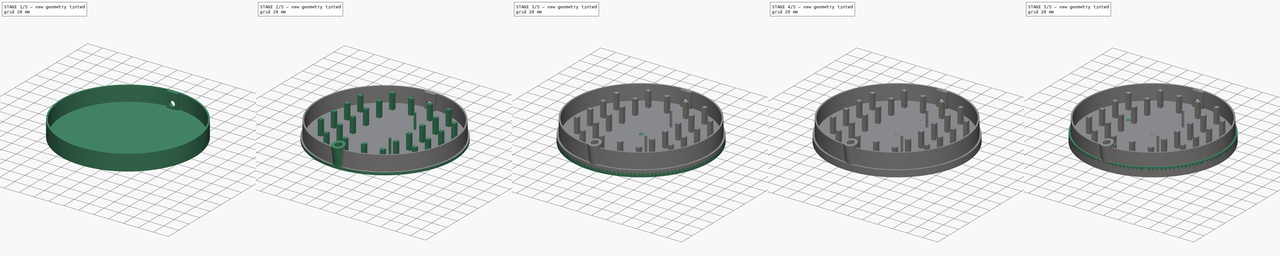
[diagram: build sequence overview — one tinted view per stage of 5, left to right]
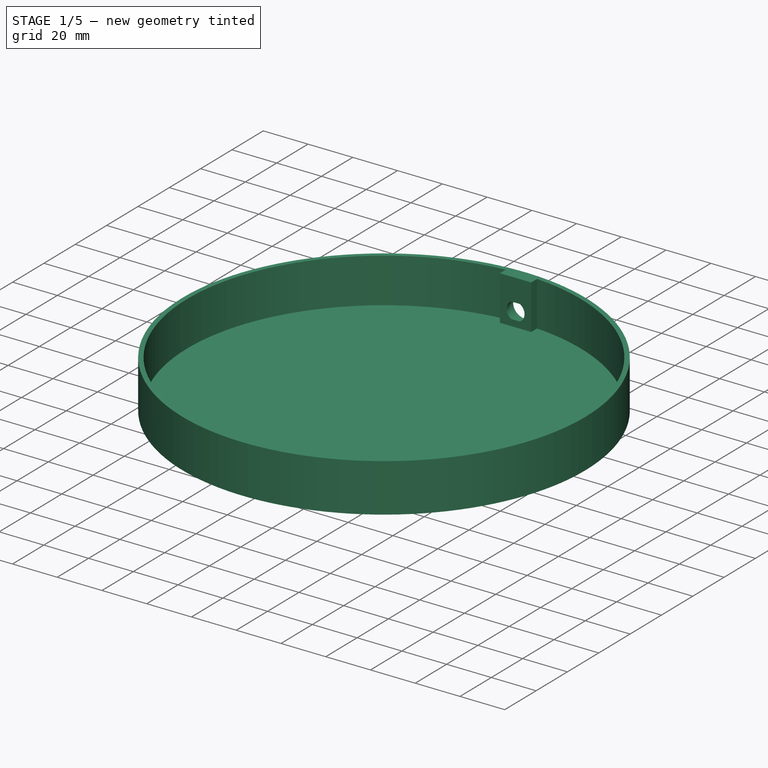
[diagram: stage 1 of 5 — iso view after this stage's code; geometry added in this stage tinted green]
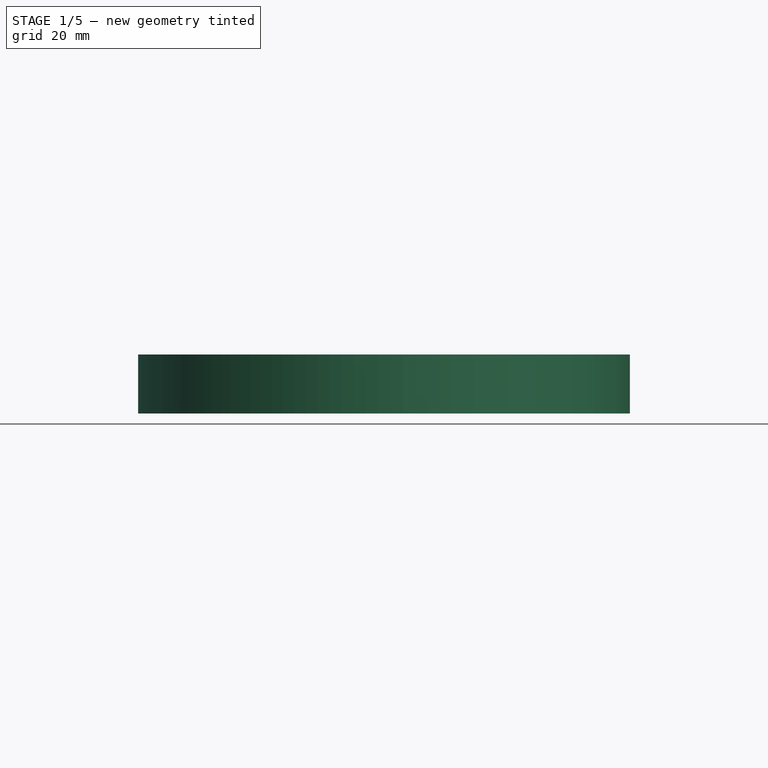
[diagram: stage 1 of 5 — front view after this stage's code; geometry added in this stage tinted green]
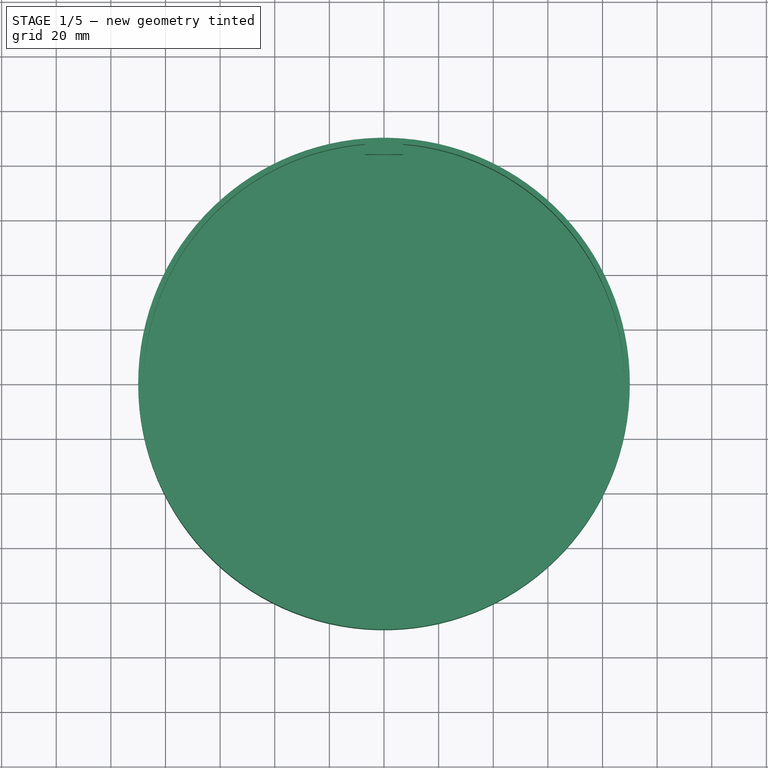
[diagram: stage 1 of 5 — top view after this stage's code; geometry added in this stage tinted green]
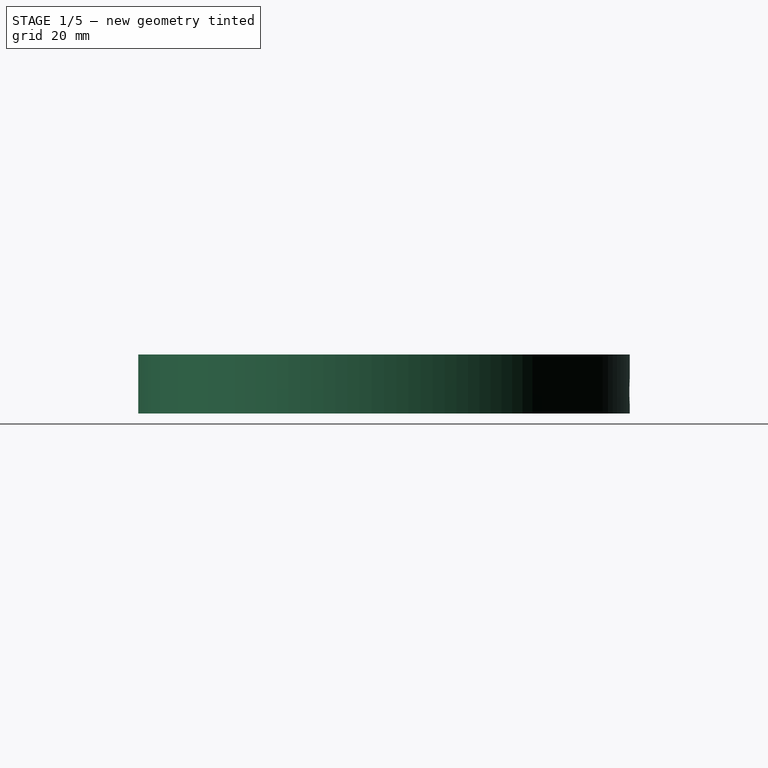
[diagram: stage 1 of 5 — right view after this stage's code; geometry added in this stage tinted green]
FCSTD DOCUMENT  (FreeCAD 0.20R29177 (Git))
Label: SottovasoLuminoso
License: All rights reserved
LicenseURL: http://en.wikipedia.org/wiki/All_rights_reserved
objects: Sketcher::SketchObject×51, PartDesign::Pad×33, PartDesign::Body×28, Part::Feature×18, App::Part×18, PartDesign::ShapeBinder×13, Part::MultiFuse×7, PartDesign::Pocket×7, PartDesign::Revolution×6, PartDesign::AdditiveLoft×3, PartDesign::Fillet×1
note: 217 computed .brp shape members not serialized (recipe doc carries the construction recipe); baked Part::Feature solids carry a one-line shape summary decoded from their .brp

FEATURE [Sketcher::SketchObject] Sketch
  FullyConstrained = true
  MapMode = 5
  Support = -> [XY_Plane]
  sketch-geometry (1):
    g0: Circle CenterX=0 CenterY=0 CenterZ=0 NormalX=0 NormalY=0 NormalZ=1 AngleXU=0 Radius=90
  constraints (2):
    c: Coincident(g0,g-1)
    c: Radius(g0) = 90
FEATURE [PartDesign::Pad] Pad
  Direction = (0,0,1)
  Length = 1.6
  Length2 = 10
  Profile = -> Sketch
  ReferenceAxis = -> Sketch [N_Axis]
  Type = 0
FEATURE [Sketcher::SketchObject] Sketch001
  ExternalGeometry = -> [Pad]
  FullyConstrained = true
  MapMode = 5
  Placement = pos=(0,0,1.6) rot=(0,0,1;0rad)
  Support = -> [Pad]
  sketch-geometry (2):
    g0: Circle CenterX=0 CenterY=0 CenterZ=0 NormalX=0 NormalY=0 NormalZ=1 AngleXU=0 Radius=90
    g1: Circle CenterX=0 CenterY=0 CenterZ=0 NormalX=0 NormalY=0 NormalZ=1 AngleXU=0 Radius=88
  constraints (4):
    c: Coincident(g0,g-3)
    c: Equal(g0,g-3)
    c: Coincident(g1,g0)
    c: Radius(g1) = 88
FEATURE [PartDesign::Pad] Pad001
  BaseFeature = -> Pad
  Direction = (0,0,1)
  Length = 20
  Length2 = 10
  Profile = -> Sketch001
  ReferenceAxis = -> Sketch001 [N_Axis]
  Type = 0
FEATURE [Sketcher::SketchObject] Sketch002
  FullyConstrained = true
  MapMode = 5
  Support = -> [XY_Plane001]
  sketch-geometry (1):
    g0: Circle CenterX=0 CenterY=0 CenterZ=0 NormalX=0 NormalY=0 NormalZ=1 AngleXU=0 Radius=5
  constraints (2):
    c: Coincident(g0,g-1)
    c: Diameter(g0) = 10
FEATURE [PartDesign::Pad] Pad002
  Direction = (0,0,1)
  Length = 4
  Length2 = 10
  Profile = -> Sketch002
  ReferenceAxis = -> Sketch002 [N_Axis]
  Type = 0
FEATURE [Sketcher::SketchObject] Sketch003
  FullyConstrained = true
  MapMode = 5
  Placement = pos=(0,0,4) rot=(0,0,1;0rad)
  Support = -> [Pad002]
  sketch-geometry (4):
    g0: ArcOfCircle CenterX=0 CenterY=0 CenterZ=0 NormalX=0 NormalY=0 NormalZ=1 AngleXU=0 Radius=3.8 StartAngle=2.0624 EndAngle=4.22079
    g1: LineSegment StartX=-1.79374 StartY=3.35 StartZ=0 EndX=1.79374 EndY=3.35 EndZ=0
    g2: LineSegment StartX=-1.79374 StartY=-3.35 StartZ=0 EndX=1.79374 EndY=-3.35 EndZ=0
    g3: ArcOfCircle CenterX=0 CenterY=0 CenterZ=0 NormalX=0 NormalY=0 NormalZ=1 AngleXU=0 Radius=3.8 StartAngle=5.20399 EndAngle=7.36238
  constraints (12):
    c: Coincident(g0,g-1)
    c: Diameter(g0) = 7.6
    c: Horizontal(g1)
    c: Horizontal(g2)
    c: Symmetric(g1,g2,g-1)
    c: DistanceY(g2,g1) = 6.7
    c: Coincident(g3,g1)
    c: Coincident(g0,g1)
    c: Equal(g0,g3)
    c: PointOnObject(g0,g2)
    c: Coincident(g3,g2)
    c: Coincident(g0,g3)
FEATURE [PartDesign::Pad] Pad003
  BaseFeature = -> Pad002
  Direction = (0,0,1)
  Length = 8
  Length2 = 10
  Profile = -> Sketch003
  ReferenceAxis = -> Sketch003 [N_Axis]
  Type = 0
FEATURE [PartDesign::Body] Body001
  Group = -> [Sketch002,Pad002,Sketch003,Pad003]
  Origin = -> Origin001
  Tip = -> Pad003
FEATURE [Sketcher::SketchObject] Sketch004
  FullyConstrained = true
  MapMode = 5
  Placement = pos=(0,0,0) rot=(0.57735,0.57735,0.57735;2.0944rad)
  Support = -> [YZ_Plane002]
  sketch-geometry (5):
    g0: LineSegment StartX=-1.15 StartY=17.5 StartZ=0 EndX=-1.15 EndY=12 EndZ=0
    g1: LineSegment StartX=-1.15 StartY=12 StartZ=0 EndX=1.15 EndY=12 EndZ=0
    g2: LineSegment StartX=1.15 StartY=12 StartZ=0 EndX=1.15 EndY=17.5 EndZ=0
    g3: ArcOfCircle CenterX=1e-16 CenterY=17.5 CenterZ=0 NormalX=0 NormalY=0 NormalZ=1 AngleXU=0 Radius=1.15 StartAngle=0 EndAngle=3.14159
    g4: Circle CenterX=1e-16 CenterY=17.5 CenterZ=0 NormalX=0 NormalY=0 NormalZ=1 AngleXU=0 Radius=0.5
  constraints (14):
    c: Vertical(g0)
    c: Coincident(g0,g1)
    c: Horizontal(g1)
    c: Symmetric(g0,g2,g-2)
    c: Vertical(g2)
    c: DistanceY(g2,g2) = 5.5
    c: Coincident(g2,g1)
    c: DistanceX(g1,g1) = 2.3
    c: DistanceY(g-1,g1) = 12
    c: Coincident(g3,g0)
    c: Coincident(g3,g2)
    c: Horizontal(g3,g2)
    c: Coincident(g4,g3)
    c: Diameter(g4) = 1
FEATURE [PartDesign::Pad] Pad004
  Direction = (1,-2e-16,3e-16)
  Length = 0.4
  Length2 = 10
  Placement = pos=(0,0,0) rot=(0.57735,0.57735,0.57735;2.0944rad)
  Profile = -> Sketch004
  ReferenceAxis = -> Sketch004 [N_Axis]
  Type = 0
FEATURE [PartDesign::Body] Body002
  Group = -> [Sketch004,Pad004]
  Origin = -> Origin002
  Placement = pos=(2,0,0) rot=(0,0,1;0rad)
  Tip = -> Pad004
FEATURE [Sketcher::SketchObject] Sketch005
  FullyConstrained = true
  MapMode = 5
  Placement = pos=(0,0,0) rot=(0.57735,0.57735,0.57735;2.0944rad)
  Support = -> [YZ_Plane003]
  sketch-geometry (5):
    g0: LineSegment StartX=-1.15 StartY=15.2 StartZ=0 EndX=-1.15 EndY=12 EndZ=0
    g1: LineSegment StartX=-1.15 StartY=12 StartZ=0 EndX=1.15 EndY=12 EndZ=0
    g2: LineSegment StartX=1.15 StartY=12 StartZ=0 EndX=1.15 EndY=15.2 EndZ=0
    g3: ArcOfCircle CenterX=1e-16 CenterY=15.2 CenterZ=0 NormalX=0 NormalY=0 NormalZ=1 AngleXU=0 Radius=1.15 StartAngle=0 EndAngle=3.14159
    g4: Circle CenterX=1e-16 CenterY=15.2 CenterZ=0 NormalX=0 NormalY=0 NormalZ=1 AngleXU=0 Radius=0.5
  constraints (14):
    c: Vertical(g0)
    c: Coincident(g0,g1)
    c: Horizontal(g1)
    c: Coincident(g1,g2)
    c: Vertical(g2)
    c: DistanceY(g-1,g1) = 12
    c: DistanceX(g1,g1) = 2.3
    c: DistanceY(g2,g2) = 3.2
    c: Symmetric(g0,g2,g-2)
    c: Coincident(g3,g0)
    c: Coincident(g3,g2)
    c: Horizontal(g3,g2)
    c: Coincident(g4,g3)
    c: Diameter(g4) = 1
FEATURE [PartDesign::Pad] Pad005
  Direction = (1,-2e-16,3e-16)
  Length = 0.4
  Length2 = 10
  Placement = pos=(0,0,0) rot=(0.57735,0.57735,0.57735;2.0944rad)
  Profile = -> Sketch005
  ReferenceAxis = -> Sketch005 [N_Axis]
  Type = 0
FEATURE [PartDesign::Body] Body003
  Group = -> [Sketch005,Pad005]
  Origin = -> Origin003
  Placement = pos=(-2,0,0) rot=(0,0,1;0rad)
  Tip = -> Pad005
FEATURE [Part::MultiFuse] Fusion  label="Power"
  Placement = pos=(0,90,8) rot=(1,0,0;1.5708rad)
  Shapes = -> [Body002,Body001,Body003]
FEATURE [PartDesign::ShapeBinder] ShapeBinder
  Placement = pos=(0,90,8) rot=(1,0,0;1.5708rad)
  Support = -> [Fusion]
  TraceSupport = false
FEATURE [Sketcher::SketchObject] Sketch006
  ExternalGeometry = -> [ShapeBinder]
  FullyConstrained = false
  MapMode = 5
  Placement = pos=(0,90,8) rot=(-1,0,0;1.5708rad)
  Support = -> [ShapeBinder]
  sketch-geometry (4):
    g0: Circle CenterX=0 CenterY=0 CenterZ=0 NormalX=0 NormalY=0 NormalZ=1 AngleXU=0 Radius=5.2
    g1: GeomPoint X=2.87971 Y=-4.08745 Z=0
    g2: GeomPoint X=2.9949 Y=-4.25095 Z=0
    g3: LineSegment StartX=0 StartY=0 StartZ=0 EndX=2.9949 EndY=-4.25095 EndZ=0
  constraints (7):
    c: Coincident(g0,g-3)
    c: PointOnObject(g1,g-3)
    c: PointOnObject(g2,g0)
    c: Coincident(g3,g0)
    c: Coincident(g3,g2)
    c: PointOnObject(g1,g3)
    c: Distance(g1,g2) = 0.2
FEATURE [PartDesign::Pocket] Pocket
  BaseFeature = -> Pad001
  Direction = (0,-1,2e-16)
  Length = 6
  Length2 = 5
  Profile = -> Sketch006
  ReferenceAxis = -> Sketch006 [N_Axis]
  Type = 0
FEATURE [Sketcher::SketchObject] Sketch007
  ExternalGeometry = -> [Pocket,ShapeBinder]
  FullyConstrained = true
  MapMode = 5
  Placement = pos=(0,0,1.6) rot=(0,0,1;0rad)
  Support = -> [Pocket]
  sketch-geometry (4):
    g0: ArcOfCircle CenterX=0 CenterY=0 CenterZ=0 NormalX=0 NormalY=0 NormalZ=1 AngleXU=0 Radius=88 StartAngle=1.49117 EndAngle=1.65043
    g1: LineSegment StartX=-7 StartY=87.7211 StartZ=0 EndX=-7 EndY=84 EndZ=0
    g2: LineSegment StartX=-7 StartY=84 StartZ=0 EndX=7 EndY=84 EndZ=0
    g3: LineSegment StartX=7 StartY=84 StartZ=0 EndX=7 EndY=87.7211 EndZ=0
  constraints (12):
    c: Coincident(g0,g-3)
    c: PointOnObject(g0,g-3)
    c: Coincident(g1,g0)
    c: Vertical(g1)
    c: Coincident(g2,g1)
    c: Horizontal(g2)
    c: Coincident(g3,g2)
    c: Coincident(g3,g0)
    c: Vertical(g3)
    c: DistanceY(g2,g-4) = 2
    c: DistanceX(g-4,g2) = 2
    c: DistanceX(g1,g-4) = 2
FEATURE [PartDesign::Pad] Pad006
  BaseFeature = -> Pocket
  Direction = (0,0,1)
  Length = 20
  Length2 = 10
  Profile = -> Sketch007
  ReferenceAxis = -> Sketch007 [N_Axis]
  Type = 0
FEATURE [PartDesign::Pocket] Pocket001
  BaseFeature = -> Pad006
  Direction = (0,-1,2e-16)
  Length = 8
  Length2 = 5
  Profile = -> Sketch006
  ReferenceAxis = -> Sketch006 [N_Axis]
  Type = 0
FEATURE [Sketcher::SketchObject] Sketch008
  ExternalGeometry = -> [Pocket001,ShapeBinder]
  FullyConstrained = true
  MapMode = 5
  Placement = pos=(0,84,0) rot=(1,0,0;1.5708rad)
  Support = -> [Pocket001]
  sketch-geometry (9):
    g0: Circle CenterX=0 CenterY=8 CenterZ=0 NormalX=0 NormalY=0 NormalZ=1 AngleXU=0 Radius=5.2
    g1: ArcOfCircle CenterX=0 CenterY=8 CenterZ=0 NormalX=0 NormalY=0 NormalZ=1 AngleXU=0 Radius=4 StartAngle=5.19129 EndAngle=7.37508
    g2: ArcOfCircle CenterX=0 CenterY=8 CenterZ=0 NormalX=0 NormalY=0 NormalZ=1 AngleXU=0 Radius=4 StartAngle=2.0497 EndAngle=4.23348
    g3: LineSegment StartX=-1.84323 StartY=11.55 StartZ=0 EndX=1.84323 EndY=11.55 EndZ=0
    g4: LineSegment StartX=-1.84323 StartY=4.45 StartZ=0 EndX=1.84323 EndY=4.45 EndZ=0
    g5: GeomPoint X=-3.8 Y=8 Z=0
    g6: GeomPoint X=3.8 Y=8 Z=0
    g7: LineSegment StartX=-4 StartY=8 StartZ=0 EndX=0 EndY=8 EndZ=0
    g8: LineSegment StartX=0 StartY=8 StartZ=0 EndX=4 EndY=8 EndZ=0
  constraints (24):
    c: Coincident(g0,g-3)
    c: Equal(g0,g-3)
    c: Coincident(g1,g0)
    c: Coincident(g2,g0)
    c: Coincident(g3,g2)
    c: Coincident(g3,g1)
    c: Horizontal(g3)
    c: Coincident(g4,g2)
    c: Coincident(g4,g1)
    c: Horizontal(g4)
    c: DistanceY(g-4,g1) = 0.2
    c: DistanceY(g1,g-5) = 0.2
    c: PointOnObject(g5,g-6)
    c: PointOnObject(g7,g2)
    c: Coincident(g7,g0)
    c: PointOnObject(g5,g7)
    c: DistanceX(g7,g5) = 0.2
    c: Coincident(g8,g0)
    c: PointOnObject(g8,g1)
    c: PointOnObject(g6,g8)
    c: DistanceX(g6,g8) = 0.2
    c: Horizontal(g8)
    c: Horizontal(g7)
    c: PointOnObject(g6,g-7)
FEATURE [PartDesign::Pad] Pad007
  BaseFeature = -> Pocket001
  Direction = (0,-1,2e-16)
  Length = 1.8
  Length2 = 10
  Profile = -> Sketch008
  ReferenceAxis = -> Sketch008 [N_Axis]
  Reversed = true
  Type = 0
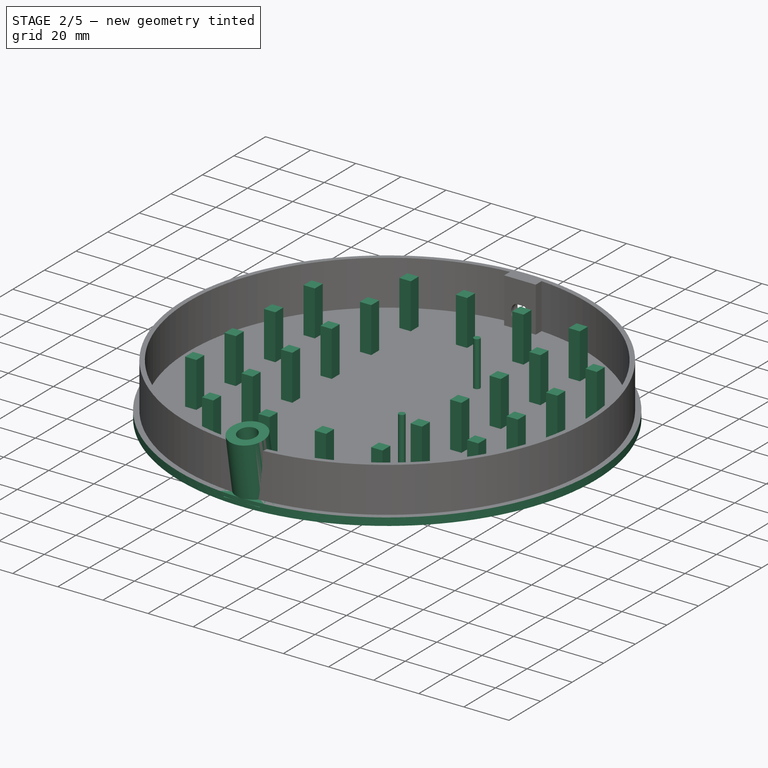
[diagram: stage 2 of 5 — iso view after this stage's code; geometry added in this stage tinted green]
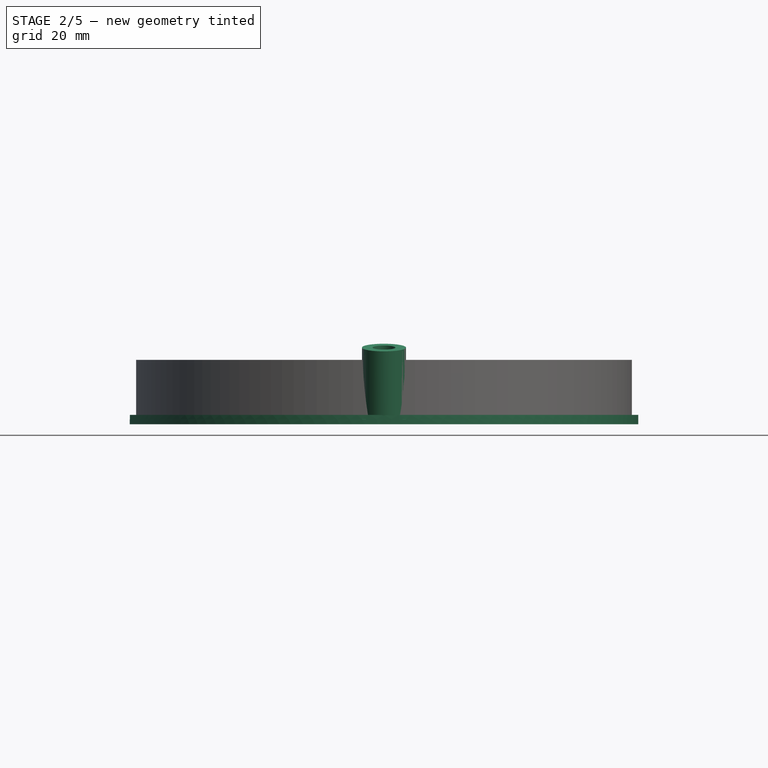
[diagram: stage 2 of 5 — front view after this stage's code; geometry added in this stage tinted green]
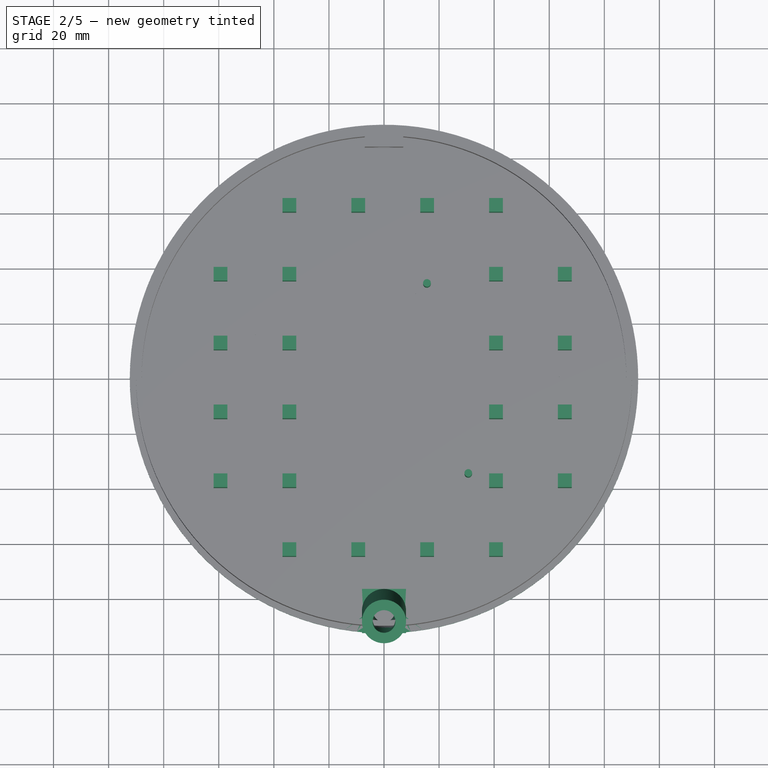
[diagram: stage 2 of 5 — top view after this stage's code; geometry added in this stage tinted green]
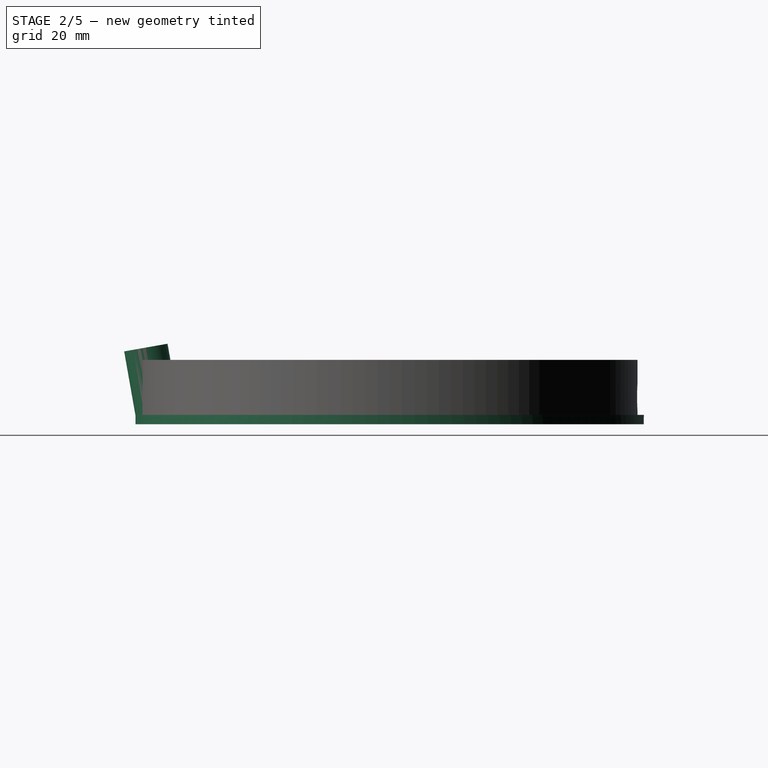
[diagram: stage 2 of 5 — right view after this stage's code; geometry added in this stage tinted green]
FEATURE [PartDesign::Body] Body005  label="BordoTop"
  Group = -> [Sketch014,Pad010]
  Origin = -> Origin005
  Placement = pos=(0,0,14) rot=(0,0,1;0rad)
  Tip = -> Pad010
FEATURE [Sketcher::SketchObject] Sketch015
  FullyConstrained = true
  MapMode = 5
  Support = -> [XY_Plane006]
  sketch-geometry (1):
    g0: Circle CenterX=0 CenterY=0 CenterZ=0 NormalX=0 NormalY=0 NormalZ=1 AngleXU=0 Radius=92.3
  constraints (2):
    c: Coincident(g0,g-1)
    c: Radius(g0) = 92.3
FEATURE [PartDesign::Pad] Pad011
  Direction = (0,0,1)
  Length = 1.6
  Length2 = 10
  Profile = -> Sketch015
  ReferenceAxis = -> Sketch015 [N_Axis]
  Type = 0
FEATURE [Sketcher::SketchObject] Sketch016
  ExternalGeometry = -> [Pad011]
  FullyConstrained = true
  MapMode = 5
  Placement = pos=(0,0,1.6) rot=(0,0,1;0rad)
  Support = -> [Pad011]
  sketch-geometry (2):
    g0: Circle CenterX=0 CenterY=-84.3 CenterZ=0 NormalX=0 NormalY=0 NormalZ=1 AngleXU=0 Radius=8
    g1: Circle CenterX=0 CenterY=-84.3 CenterZ=0 NormalX=0 NormalY=0 NormalZ=1 AngleXU=0 Radius=4.05
  constraints (5):
    c: PointOnObject(g0,g-2)
    c: Tangent(g0,g-3)
    c: Diameter(g0) = 16
    c: Coincident(g1,g0)
    c: Diameter(g1) = 8.1
FEATURE [Sketcher::SketchObject] Sketch017
  AttachmentOffset = pos=(0,0,0.1) rot=(0,0,1;0rad)
  ExternalGeometry = -> [Sketch016]
  FullyConstrained = true
  MapMode = 5
  Placement = pos=(0,0,1.7) rot=(0,0,1;0rad)
  Support = -> [Pad011]
  sketch-geometry (2):
    g0: Circle CenterX=0 CenterY=-84.3 CenterZ=0 NormalX=0 NormalY=0 NormalZ=1 AngleXU=0 Radius=8
    g1: Circle CenterX=0 CenterY=-84.3 CenterZ=0 NormalX=0 NormalY=0 NormalZ=1 AngleXU=0 Radius=4.2
  constraints (5):
    c: Coincident(g0,g-4)
    c: Coincident(g1,g0)
    c: Equal(g0,g-3)
    c: Diameter(g-4) = 8.1
    c: Diameter(g1) = 8.4
FEATURE [PartDesign::AdditiveLoft] AdditiveLoft001
  BaseFeature = -> Pad011
  Closed = false
  Profile = -> Sketch016
  Ruled = false
  Sections = -> [Sketch017]
FEATURE [Sketcher::SketchObject] Sketch018
  ExternalGeometry = -> [Sketch016]
  FullyConstrained = true
  MapMode = 5
  Placement = pos=(0,0,1.6) rot=(0,0,1;0rad)
  Support = -> [AdditiveLoft001]
  sketch-geometry (1):
    g0: Circle CenterX=0 CenterY=-84.3 CenterZ=0 NormalX=0 NormalY=0 NormalZ=1 AngleXU=0 Radius=4.05
  constraints (2):
    c: Coincident(g0,g-3)
    c: Equal(g0,g-3)
FEATURE [PartDesign::Pocket] Pocket003
  BaseFeature = -> AdditiveLoft001
  Direction = (0,0,-1)
  Length = 5
  Length2 = 5
  Profile = -> Sketch018
  ReferenceAxis = -> Sketch018 [N_Axis]
  Type = 0
FEATURE [PartDesign::Pocket] Pocket004
  BaseFeature = -> Pocket003
  Direction = (0,0,1)
  Length = 5
  Length2 = 5
  Profile = -> Sketch022
  ReferenceAxis = -> Sketch022 [N_Axis]
  Type = 0
FEATURE [Sketcher::SketchObject] Sketch038
  FullyConstrained = false
  MapMode = 5
  Placement = pos=(0,0,0) rot=(1,0,0;3.14159rad)
  Support = -> [Pocket004]
  sketch-geometry (34):
    g0: LineSegment StartX=0 StartY=62.5821 StartZ=0 EndX=-44.2522 EndY=44.2522 EndZ=0
    g1: LineSegment StartX=-44.2522 StartY=44.2522 StartZ=0 EndX=-62.5821 EndY=-7.1e-15 EndZ=0
    g2: LineSegment StartX=-62.5821 StartY=-7.1e-15 StartZ=0 EndX=-44.2522 EndY=-44.2522 EndZ=0
    g3: LineSegment StartX=-44.2522 StartY=-44.2522 StartZ=0 EndX=0 EndY=-62.5821 EndZ=0
    g4: LineSegment StartX=0 StartY=-62.5821 StartZ=0 EndX=44.2522 EndY=-44.2522 EndZ=0
    g5: LineSegment StartX=44.2522 StartY=-44.2522 StartZ=0 EndX=62.5821 EndY=-7.1e-15 EndZ=0
    g6: LineSegment StartX=62.5821 StartY=-7.1e-15 StartZ=0 EndX=44.2522 EndY=44.2522 EndZ=0
    g7: LineSegment StartX=44.2522 StartY=44.2522 StartZ=0 EndX=0 EndY=62.5821 EndZ=0
    g8: Circle CenterX=0 CenterY=0 CenterZ=0 NormalX=0 NormalY=0 NormalZ=1 AngleXU=0 Radius=62.5821
    g9: LineSegment StartX=-12.7972 StartY=30.8952 StartZ=0 EndX=-30.8952 EndY=12.7972 EndZ=0
    g10: LineSegment StartX=-30.8952 StartY=12.7972 StartZ=0 EndX=-30.8952 EndY=-12.7972 EndZ=0
    g11: LineSegment StartX=-30.8952 StartY=-12.7972 StartZ=0 EndX=-12.7972 EndY=-30.8952 EndZ=0
    g12: LineSegment StartX=-12.7972 StartY=-30.8952 StartZ=0 EndX=12.7972 EndY=-30.8952 EndZ=0
    g13: LineSegment StartX=12.7972 StartY=-30.8952 StartZ=0 EndX=30.8952 EndY=-12.7972 EndZ=0
    g14: LineSegment StartX=30.8952 StartY=-12.7972 StartZ=0 EndX=30.8952 EndY=12.7972 EndZ=0
    g15: LineSegment StartX=30.8952 StartY=12.7972 StartZ=0 EndX=12.7972 EndY=30.8952 EndZ=0
    g16: LineSegment StartX=12.7972 StartY=30.8952 StartZ=0 EndX=-12.7972 EndY=30.8952 EndZ=0
    g17: Circle CenterX=0 CenterY=0 CenterZ=0 NormalX=0 NormalY=0 NormalZ=1 AngleXU=0 Radius=33.4407
    g18: Circle CenterX=0 CenterY=62.5821 CenterZ=0 NormalX=0 NormalY=0 NormalZ=1 AngleXU=0 Radius=1.25
    g19: Circle CenterX=44.2522 CenterY=44.2522 CenterZ=0 NormalX=0 NormalY=0 NormalZ=1 AngleXU=0 Radius=1.25
    g20: Circle CenterX=62.5821 CenterY=-7.1e-15 CenterZ=0 NormalX=0 NormalY=0 NormalZ=1 AngleXU=0 Radius=1.25
    g21: Circle CenterX=44.2522 CenterY=-44.2522 CenterZ=0 NormalX=0 NormalY=0 NormalZ=1 AngleXU=0 Radius=1.25
    g22: Circle CenterX=30.8952 CenterY=12.7972 CenterZ=0 NormalX=0 NormalY=0 NormalZ=1 AngleXU=0 Radius=1.25
    g23: Circle CenterX=12.7972 CenterY=30.8952 CenterZ=0 NormalX=0 NormalY=0 NormalZ=1 AngleXU=0 Radius=1.25
    g24: Circle CenterX=-12.7972 CenterY=30.8952 CenterZ=0 NormalX=0 NormalY=0 NormalZ=1 AngleXU=0 Radius=1.25
    g25: Circle CenterX=-30.8952 CenterY=12.7972 CenterZ=0 NormalX=0 NormalY=0 NormalZ=1 AngleXU=0 Radius=1.25
    g26: Circle CenterX=-30.8952 CenterY=-12.7972 CenterZ=0 NormalX=0 NormalY=0 NormalZ=1 AngleXU=0 Radius=1.25
    g27: Circle CenterX=-12.7972 CenterY=-30.8952 CenterZ=0 NormalX=0 NormalY=0 NormalZ=1 AngleXU=0 Radius=1.25
    g28: Circle CenterX=12.7972 CenterY=-30.8952 CenterZ=0 NormalX=0 NormalY=0 NormalZ=1 AngleXU=0 Radius=1.25
    g29: Circle CenterX=30.8952 CenterY=-12.7972 CenterZ=0 NormalX=0 NormalY=0 NormalZ=1 AngleXU=0 Radius=1.25
    g30: Circle CenterX=-44.2522 CenterY=44.2522 CenterZ=0 NormalX=0 NormalY=0 NormalZ=1 AngleXU=0 Radius=1.25
    g31: Circle CenterX=-62.5821 CenterY=-7.1e-15 CenterZ=0 NormalX=0 NormalY=0 NormalZ=1 AngleXU=0 Radius=1.25
    g32: Circle CenterX=-44.2522 CenterY=-44.2522 CenterZ=0 NormalX=0 NormalY=0 NormalZ=1 AngleXU=0 Radius=1.25
    g33: Circle CenterX=0 CenterY=-62.5821 CenterZ=0 NormalX=0 NormalY=0 NormalZ=1 AngleXU=0 Radius=1.25
  constraints (70):
    c: Coincident(g0,g1)
    c: Coincident(g1,g2)
    c: Coincident(g2,g3)
    c: Coincident(g3,g4)
    c: Coincident(g4,g5)
    c: Coincident(g5,g6)
    c: Coincident(g6,g7)
    c: Coincident(g7,g0)
    c: Equal(g0, g1-g7) x7
    c: PointOnObject(g0,g8)
    c: PointOnObject(g1,g8)
    c: PointOnObject(g2,g8)
    c: PointOnObject(g3,g8)
    c: PointOnObject(g4,g8)
    c: PointOnObject(g5,g8)
    c: PointOnObject(g6,g8)
    c: PointOnObject(g7,g8)
    c: Coincident(g8,g-1)
    c: PointOnObject(g7,g-2)
    c: Coincident(g9,g10)
    c: Coincident(g10,g11)
    c: Coincident(g11,g12)
    c: Coincident(g12,g13)
    c: Coincident(g13,g14)
    c: Coincident(g14,g15)
    c: Coincident(g15,g16)
    c: Coincident(g16,g9)
    c: Equal(g9, g10-g16) x7
    c: PointOnObject(g9,g17)
    c: PointOnObject(g10,g17)
    c: PointOnObject(g11,g17)
    c: PointOnObject(g12,g17)
    c: PointOnObject(g13,g17)
    c: PointOnObject(g14,g17)
    c: PointOnObject(g15,g17)
    c: PointOnObject(g16,g17)
    c: Coincident(g17,g8)
    c: Vertical(g14)
    c: Coincident(g18,g0)
    c: Coincident(g19,g6)
    c: Coincident(g20,g5)
    c: Coincident(g21,g4)
    c: Coincident(g22,g14)
    c: Coincident(g23,g15)
    c: Coincident(g24,g9)
    c: Coincident(g25,g9)
    c: Coincident(g26,g10)
    c: Coincident(g27,g11)
    c: Coincident(g28,g12)
    c: Coincident(g29,g13)
    c: Coincident(g30,g0)
    c: Coincident(g31,g1)
    c: Coincident(g32,g2)
    c: Coincident(g33,g3)
    c: Equal(g33,g21)
    c: Equal(g21,g20)
    c: Equal(g20,g19)
    c: Equal(g19,g18)
    c: Equal(g18,g30)
    c: Equal(g30,g31)
    c: Equal(g31,g32)
    c: Equal(g32,g27)
    c: Equal(g27,g28)
    c: Equal(g28,g29)
    c: Equal(g29,g22)
    c: Equal(g22,g23)
    c: Equal(g23,g24)
    c: Equal(g24,g25)
    c: Equal(g25,g26)
    c: Diameter(g18) = 2.5
FEATURE [PartDesign::Pocket] Pocket005
  BaseFeature = -> Pocket004
  Direction = (0,0,1)
  Length = 5
  Length2 = 5
  Profile = -> Sketch038
  ReferenceAxis = -> Sketch038 [N_Axis]
  Type = 0
FEATURE [PartDesign::Body] Body029  label="Dissipatore1"
  Group = -> [Sketch046,Pad030]
  Origin = -> Origin029
  Placement = pos=(0,0,-3.3) rot=(0,0,1;0.523599rad)
  Tip = -> Pad030
FEATURE [Sketcher::SketchObject] Sketch050
  FullyConstrained = false
  MapMode = 5
  Support = -> [XY_Plane033]
  sketch-geometry (31):
    g0: Circle CenterX=0 CenterY=0 CenterZ=0 NormalX=0 NormalY=0 NormalZ=1 AngleXU=0 Radius=10.25
    g1: LineSegment StartX=-3 StartY=9.80115 StartZ=0 EndX=3 EndY=9.80115 EndZ=0
    g2: LineSegment StartX=-3 StartY=-9.80115 StartZ=0 EndX=3 EndY=-9.80115 EndZ=0
    g3: LineSegment StartX=6.98804 StartY=-7.49865 StartZ=0 EndX=9.98804 EndY=-2.3025 EndZ=0
    g4: LineSegment StartX=6.98804 StartY=7.49865 StartZ=0 EndX=9.98804 EndY=2.3025 EndZ=0
    g5: LineSegment StartX=-6.98804 StartY=7.49865 StartZ=0 EndX=-9.98804 EndY=2.3025 EndZ=0
    g6: LineSegment StartX=-9.98804 StartY=-2.3025 StartZ=0 EndX=-6.98804 EndY=-7.49865 EndZ=0
    g7: LineSegment StartX=-9.98804 StartY=2.3025 StartZ=0 EndX=9.98804 EndY=-2.3025 EndZ=0
    g8: LineSegment StartX=-6.98804 StartY=7.49865 StartZ=0 EndX=6.98804 EndY=-7.49865 EndZ=0
    g9: LineSegment StartX=-9.98804 StartY=-2.3025 StartZ=0 EndX=9.98804 EndY=2.3025 EndZ=0
    g10: LineSegment StartX=-6.98804 StartY=-7.49865 StartZ=0 EndX=6.98804 EndY=7.49865 EndZ=0
    g11: LineSegment StartX=-6.98804 StartY=7.49865 StartZ=0 EndX=-3 EndY=9.80115 EndZ=0
    g12: LineSegment StartX=3 StartY=9.80115 StartZ=0 EndX=6.98804 EndY=7.49865 EndZ=0
    g13: LineSegment StartX=9.98804 StartY=2.3025 StartZ=0 EndX=9.98804 EndY=-2.3025 EndZ=0
    g14: LineSegment StartX=6.98804 StartY=-7.49865 StartZ=0 EndX=3 EndY=-9.80115 EndZ=0
    g15: LineSegment StartX=-3 StartY=-9.80115 StartZ=0 EndX=-6.98804 EndY=-7.49865 EndZ=0
    g16: LineSegment StartX=-9.98804 StartY=-2.3025 StartZ=0 EndX=-9.98804 EndY=2.3025 EndZ=0
    g17: ArcOfCircle CenterX=-5.5026 CenterY=9.53079 CenterZ=0 NormalX=0 NormalY=0 NormalZ=1 AngleXU=0 Radius=2.51717 StartAngle=4.08118 EndAngle=6.3908
    g18: LineSegment StartX=-5.5026 StartY=9.53079 StartZ=0 EndX=0 EndY=0 EndZ=0
    g19: LineSegment StartX=-5.5026 StartY=9.53079 StartZ=0 EndX=-3 EndY=9.80115 EndZ=0
    g20: LineSegment StartX=-5.5026 StartY=9.53079 StartZ=0 EndX=-6.98804 EndY=7.49865 EndZ=0
    g21: GeomPoint X=-4.24402 Y=7.35086 Z=0
    g22: GeomPoint X=-4.70729 Y=8.81544 Z=0
    g23: GeomPoint X=-4.99402 Y=8.6499 Z=0
    g24: Circle CenterX=0 CenterY=0 CenterZ=0 NormalX=0 NormalY=0 NormalZ=1 AngleXU=0 Radius=8.48804
    g25: Circle CenterX=0 CenterY=0 CenterZ=0 NormalX=0 NormalY=0 NormalZ=1 AngleXU=0 Radius=11.0052
    g26: ArcOfCircle CenterX=-11.0052 CenterY=-5e-16 CenterZ=0 NormalX=0 NormalY=0 NormalZ=1 AngleXU=0 Radius=2.51717 StartAngle=5.12837 EndAngle=7.438
    g27: ArcOfCircle CenterX=-5.5026 CenterY=-9.53079 CenterZ=0 NormalX=0 NormalY=0 NormalZ=1 AngleXU=0 Radius=2.51717 StartAngle=6.17557 EndAngle=8.48519
    g28: ArcOfCircle CenterX=5.5026 CenterY=-9.53079 CenterZ=0 NormalX=0 NormalY=0 NormalZ=1 AngleXU=0 Radius=2.51717 StartAngle=0.939584 EndAngle=3.24921
    g29: ArcOfCircle CenterX=11.0052 CenterY=3e-16 CenterZ=0 NormalX=0 NormalY=0 NormalZ=1 AngleXU=0 Radius=2.51717 StartAngle=1.98678 EndAngle=4.2964
    g30: ArcOfCircle CenterX=5.5026 CenterY=9.53079 CenterZ=0 NormalX=0 NormalY=0 NormalZ=1 AngleXU=0 Radius=2.51717 StartAngle=3.03398 EndAngle=5.3436
  constraints (80):
    c: Coincident(g0,g-1)
    c: Diameter(g0) = 20.5
    c: PointOnObject(g1,g0)
    c: PointOnObject(g1,g0)
    c: Horizontal(g1)
    c: DistanceX(g1,g1) = 6
    c: PointOnObject(g2,g0)
    c: PointOnObject(g2,g0)
    c: Horizontal(g2)
    c: DistanceX(g2,g2) = 6
    c: PointOnObject(g3,g0)
    c: PointOnObject(g3,g0)
    c: PointOnObject(g4,g0)
    c: PointOnObject(g4,g0)
    c: PointOnObject(g5,g0)
    c: PointOnObject(g5,g0)
    c: PointOnObject(g6,g0)
    c: PointOnObject(g6,g0)
    c: Coincident(g7,g5)
    c: Coincident(g7,g3)
    c: Coincident(g8,g5)
    c: Coincident(g8,g3)
    c: PointOnObject(g0,g8)
    c: PointOnObject(g0,g7)
    c: Distance(g5) = 6
    c: Coincident(g9,g6)
    c: Coincident(g9,g4)
    c: Coincident(g10,g6)
    c: Coincident(g10,g4)
    c: PointOnObject(g0,g10)
    c: PointOnObject(g0,g9)
    c: Distance(g6,g6) = 6
    c: Coincident(g11,g5)
    c: Coincident(g11,g1)
    c: Coincident(g12,g1)
    c: Coincident(g12,g4)
    c: Coincident(g13,g4)
    c: Coincident(g13,g3)
    c: Coincident(g14,g3)
    c: Coincident(g14,g2)
    c: Coincident(g15,g2)
    c: Coincident(g15,g6)
    c: Coincident(g16,g6)
    c: Coincident(g16,g5)
    c: Equal(g14,g15)
    c: Equal(g16,g11)
    c: Coincident(g17,g1)
    c: PointOnObject(g17,g0)
    c: Coincident(g18,g17)
    c: Coincident(g19,g17)
    c: Coincident(g19,g1)
    c: Coincident(g20,g17)
    c: Coincident(g20,g5)
    c: Equal(g19,g20)
    c: PointOnObject(g21,g17)
    c: PointOnObject(g21,g18)
    c: Coincident(g18,g0)
    c: PointOnObject(g22,g11)
    c: PointOnObject(g23,g11)
    c: PointOnObject(g23,g18)
    c: Distance(g23,g21) = 1.5
    c: Coincident(g24,g0)
    c: PointOnObject(g21,g24)
    c: Coincident(g25,g0)
    c: PointOnObject(g17,g25)
    c: PointOnObject(g26,g25)
    c: Coincident(g26,g5)
    c: Coincident(g26,g6)
    c: PointOnObject(g27,g25)
    c: Coincident(g27,g6)
    c: Coincident(g27,g2)
    c: PointOnObject(g28,g25)
    c: Coincident(g28,g2)
    c: Coincident(g28,g3)
    c: PointOnObject(g29,g25)
    c: Coincident(g29,g3)
    c: Coincident(g29,g4)
    c: PointOnObject(g30,g25)
    c: Coincident(g30,g1)
    c: Coincident(g30,g4)
FEATURE [PartDesign::Pad] Pad033
  Direction = (0,0,1)
  Length = 1.5
  Length2 = 10
  Profile = -> Sketch050
  ReferenceAxis = -> Sketch050 [N_Axis]
  Type = 0
FEATURE [PartDesign::Body] Body033  label="Dissipatore2"
  Group = -> [Sketch050,Pad033]
  Origin = -> Origin033
  Placement = pos=(-43,14,-3.3) rot=(0,0,1;0.523599rad)
  Tip = -> Pad033
FEATURE [Sketcher::SketchObject] Sketch051
  ExternalGeometry = -> [Pocket005]
  FullyConstrained = false
  MapMode = 5
  Placement = pos=(0,0,0) rot=(1,0,0;3.14159rad)
  Support = -> [Pocket005]
  sketch-geometry (67):
    g0: ArcOfCircle CenterX=0 CenterY=0 CenterZ=0 NormalX=0 NormalY=0 NormalZ=1 AngleXU=0 Radius=4.5 StartAngle=5.75959 EndAngle=7.85398
    g1: ArcOfCircle CenterX=0 CenterY=0 CenterZ=0 NormalX=0 NormalY=0 NormalZ=1 AngleXU=0 Radius=4.5 StartAngle=2.61799 EndAngle=4.71239
    g2: ArcOfCircle CenterX=0 CenterY=0 CenterZ=0 NormalX=0 NormalY=0 NormalZ=1 AngleXU=0 Radius=7.5 StartAngle=5.75959 EndAngle=7.85398
    g3: ArcOfCircle CenterX=0 CenterY=0 CenterZ=0 NormalX=0 NormalY=0 NormalZ=1 AngleXU=0 Radius=7.5 StartAngle=2.61799 EndAngle=4.71239
    g4: LineSegment StartX=1.4e-15 StartY=4.5 StartZ=0 EndX=0 EndY=0 EndZ=0
    g5: LineSegment StartX=-3.89711 StartY=2.25 StartZ=0 EndX=0 EndY=0 EndZ=0
    g6: LineSegment StartX=0 StartY=0 StartZ=0 EndX=3.89711 EndY=-2.25 EndZ=0
    g7: LineSegment StartX=0 StartY=0 StartZ=0 EndX=-8e-16 EndY=-4.5 EndZ=0
    g8: LineSegment StartX=1.4e-15 StartY=4.5 StartZ=0 EndX=2.3e-15 EndY=7.5 EndZ=0
    g9: LineSegment StartX=3.89711 StartY=-2.25 StartZ=0 EndX=6.49519 EndY=-3.75 EndZ=0
    g10: LineSegment StartX=-8e-16 StartY=-4.5 StartZ=0 EndX=-1.4e-15 EndY=-7.5 EndZ=0
    g11: LineSegment StartX=-6.49519 StartY=3.75 StartZ=0 EndX=-3.89711 EndY=2.25 EndZ=0
    g12: ArcOfCircle CenterX=-42.7975 CenterY=-13.9058 CenterZ=0 NormalX=0 NormalY=0 NormalZ=1 AngleXU=0 Radius=4.5 StartAngle=1.5708 EndAngle=3.66519
    g13: ArcOfCircle CenterX=-42.7975 CenterY=-13.9058 CenterZ=0 NormalX=0 NormalY=0 NormalZ=1 AngleXU=0 Radius=7.5 StartAngle=1.5708 EndAngle=3.66519
    g14: ArcOfCircle CenterX=-42.7975 CenterY=-13.9058 CenterZ=0 NormalX=0 NormalY=0 NormalZ=1 AngleXU=0 Radius=4.5 StartAngle=4.71239 EndAngle=6.80678
    g15: ArcOfCircle CenterX=-42.7975 CenterY=-13.9058 CenterZ=0 NormalX=0 NormalY=0 NormalZ=1 AngleXU=0 Radius=7.5 StartAngle=4.71239 EndAngle=6.80678
    g16: LineSegment StartX=-42.7975 StartY=-6.40576 StartZ=0 EndX=-42.7975 EndY=-9.40576 EndZ=0
    g17: LineSegment StartX=-46.6947 StartY=-16.1558 StartZ=0 EndX=-49.2927 EndY=-17.6558 EndZ=0
    g18: LineSegment StartX=-42.7975 StartY=-18.4058 StartZ=0 EndX=-42.7976 EndY=-21.4058 EndZ=0
    g19: LineSegment StartX=-38.9004 StartY=-11.6558 StartZ=0 EndX=-36.3024 EndY=-10.1558 EndZ=0
    g20: LineSegment StartX=-42.7975 StartY=-9.40576 StartZ=0 EndX=-42.7975 EndY=-13.9058 EndZ=0
    g21: LineSegment StartX=-42.7975 StartY=-13.9058 StartZ=0 EndX=-38.9004 EndY=-11.6558 EndZ=0
    g22: LineSegment StartX=-42.7975 StartY=-13.9058 StartZ=0 EndX=-42.7975 EndY=-18.4058 EndZ=0
    g23: LineSegment StartX=-42.7975 StartY=-13.9058 StartZ=0 EndX=-46.6947 EndY=-16.1558 EndZ=0
    g24: LineSegment StartX=-47.2975 StartY=-13.9058 StartZ=0 EndX=-38.2975 EndY=-13.9058 EndZ=0
    g25: LineSegment StartX=-42.7975 StartY=-13.9058 StartZ=0 EndX=-40.9967 EndY=-13.9058 EndZ=0
    g26: ArcOfCircle CenterX=42.7975 CenterY=-13.9058 CenterZ=0 NormalX=0 NormalY=0 NormalZ=1 AngleXU=0 Radius=4.5 StartAngle=2.61799 EndAngle=4.71239
    g27: ArcOfCircle CenterX=42.7975 CenterY=-13.9058 CenterZ=0 NormalX=0 NormalY=0 NormalZ=1 AngleXU=0 Radius=4.5 StartAngle=5.75959 EndAngle=7.85398
    g28: ArcOfCircle CenterX=42.7975 CenterY=-13.9058 CenterZ=0 NormalX=0 NormalY=0 NormalZ=1 AngleXU=0 Radius=7.5 StartAngle=2.61799 EndAngle=4.71239
    g29: ArcOfCircle CenterX=42.7975 CenterY=-13.9058 CenterZ=0 NormalX=0 NormalY=0 NormalZ=1 AngleXU=0 Radius=7.5 StartAngle=5.75959 EndAngle=7.85398
    g30: LineSegment StartX=36.3024 StartY=-10.1558 StartZ=0 EndX=38.9004 EndY=-11.6558 EndZ=0
    g31: LineSegment StartX=42.7975 StartY=-6.40576 StartZ=0 EndX=42.7975 EndY=-9.40576 EndZ=0
    g32: LineSegment StartX=46.6947 StartY=-16.1558 StartZ=0 EndX=49.2927 EndY=-17.6558 EndZ=0
    g33: LineSegment StartX=42.7975 StartY=-18.4058 StartZ=0 EndX=42.7975 EndY=-21.4058 EndZ=0
    g34: LineSegment StartX=38.9004 StartY=-11.6558 StartZ=0 EndX=46.6947 EndY=-16.1558 EndZ=0
    g35: LineSegment StartX=42.7975 StartY=-9.40576 StartZ=0 EndX=42.7975 EndY=-18.4058 EndZ=0
    g36: ArcOfCircle CenterX=0 CenterY=-45 CenterZ=0 NormalX=0 NormalY=0 NormalZ=1 AngleXU=0 Radius=4.5 StartAngle=5.75959 EndAngle=7.85398
    g37: ArcOfCircle CenterX=0 CenterY=-45 CenterZ=0 NormalX=0 NormalY=0 NormalZ=1 AngleXU=0 Radius=4.5 StartAngle=2.618 EndAngle=4.71239
    g38: ArcOfCircle CenterX=0 CenterY=-45 CenterZ=0 NormalX=0 NormalY=0 NormalZ=1 AngleXU=0 Radius=7.5 StartAngle=5.75959 EndAngle=7.85398
    g39: ArcOfCircle CenterX=0 CenterY=-45 CenterZ=0 NormalX=0 NormalY=0 NormalZ=1 AngleXU=0 Radius=7.5 StartAngle=2.618 EndAngle=4.71239
    g40: LineSegment StartX=-9.94918e-06 StartY=-40.5 StartZ=0 EndX=-1.4e-15 EndY=-37.5 EndZ=0
    g41: LineSegment StartX=3.89712 StartY=-47.25 StartZ=0 EndX=6.4952 EndY=-48.75 EndZ=0
    g42: LineSegment StartX=9.94918e-06 StartY=-49.5 StartZ=0 EndX=1.29779e-05 EndY=-52.5 EndZ=0
    g43: LineSegment StartX=-3.89712 StartY=-42.75 StartZ=0 EndX=-6.4952 EndY=-41.25 EndZ=0
    g44: LineSegment StartX=-3.89712 StartY=-42.75 StartZ=0 EndX=3.89712 EndY=-47.25 EndZ=0
    g45: LineSegment StartX=-9.94918e-06 StartY=-40.5 StartZ=0 EndX=9.94918e-06 EndY=-49.5 EndZ=0
    g46: ArcOfCircle CenterX=-26.4503 CenterY=36.4058 CenterZ=0 NormalX=0 NormalY=0 NormalZ=1 AngleXU=0 Radius=4.5 StartAngle=1.22173 EndAngle=3.31613
    g47: ArcOfCircle CenterX=-26.4503 CenterY=36.4058 CenterZ=0 NormalX=0 NormalY=0 NormalZ=1 AngleXU=0 Radius=4.5 StartAngle=4.36332 EndAngle=6.45772
    g48: ArcOfCircle CenterX=-26.4503 CenterY=36.4058 CenterZ=0 NormalX=0 NormalY=0 NormalZ=1 AngleXU=0 Radius=7.5 StartAngle=4.36332 EndAngle=6.45772
    g49: ArcOfCircle CenterX=-26.4503 CenterY=36.4058 CenterZ=0 NormalX=0 NormalY=0 NormalZ=1 AngleXU=0 Radius=7.5 StartAngle=1.22173 EndAngle=3.31612
    g50: ArcOfCircle CenterX=26.4503 CenterY=36.4058 CenterZ=0 NormalX=0 NormalY=0 NormalZ=1 AngleXU=0 Radius=4.5 StartAngle=6.10865 EndAngle=8.20305
    g51: ArcOfCircle CenterX=26.4503 CenterY=36.4058 CenterZ=0 NormalX=0 NormalY=0 NormalZ=1 AngleXU=0 Radius=7.5 StartAngle=6.10865 EndAngle=8.20305
    g52: ArcOfCircle CenterX=26.4503 CenterY=36.4058 CenterZ=0 NormalX=0 NormalY=0 NormalZ=1 AngleXU=0 Radius=7.5 StartAngle=2.96706 EndAngle=5.06145
    g53: ArcOfCircle CenterX=26.4503 CenterY=36.4058 CenterZ=0 NormalX=0 NormalY=0 NormalZ=1 AngleXU=0 Radius=4.5 StartAngle=2.96706 EndAngle=5.06145
    g54: LineSegment StartX=-19.0643 StartY=37.7081 StartZ=0 EndX=-22.0187 EndY=37.1872 EndZ=0
    g55: LineSegment StartX=-27.9894 StartY=32.1771 StartZ=0 EndX=-29.0155 EndY=29.3581 EndZ=0
    g56: LineSegment StartX=-23.8852 StartY=43.4535 StartZ=0 EndX=-24.9112 EndY=40.6344 EndZ=0
    g57: LineSegment StartX=-30.882 StartY=35.6243 StartZ=0 EndX=-33.8364 EndY=35.1034 EndZ=0
    g58: LineSegment StartX=23.8852 StartY=43.4535 StartZ=0 EndX=24.9112 EndY=40.6344 EndZ=0
    g59: LineSegment StartX=30.882 StartY=35.6243 StartZ=0 EndX=33.8364 EndY=35.1034 EndZ=0
    g60: LineSegment StartX=27.9894 StartY=32.1771 StartZ=0 EndX=29.0155 EndY=29.3581 EndZ=0
    g61: LineSegment StartX=22.0187 StartY=37.1872 StartZ=0 EndX=19.0643 EndY=37.7081 EndZ=0
    g62: LineSegment StartX=-24.9112 StartY=40.6344 StartZ=0 EndX=-27.9894 EndY=32.1771 EndZ=0
    g63: LineSegment StartX=-22.0187 StartY=37.1872 StartZ=0 EndX=-30.882 EndY=35.6243 EndZ=0
    g64: LineSegment StartX=22.0187 StartY=37.1872 StartZ=0 EndX=30.882 EndY=35.6243 EndZ=0
    g65: LineSegment StartX=24.9112 StartY=40.6344 StartZ=0 EndX=27.9894 EndY=32.1771 EndZ=0
    g66: LineSegment StartX=-30.9503 StartY=36.4058 StartZ=0 EndX=-22.3354 EndY=36.4058 EndZ=0
  constraints (185):
    c: Coincident(g0,g-3)
    c: PointOnObject(g0,g-3)
    c: Coincident(g1,g0)
    c: PointOnObject(g1,g-3)
    c: Coincident(g2,g0)
    c: Coincident(g3,g0)
    c: Coincident(g4,g0)
    c: Coincident(g4,g0)
    c: Coincident(g5,g1)
    c: Coincident(g5,g0)
    c: Coincident(g6,g0)
    c: Coincident(g6,g0)
    c: Coincident(g7,g0)
    c: Coincident(g7,g1)
    c: Angle(g7,g6) = 1.0472
    c: Angle(g4,g5) = 1.0472
    c: Coincident(g8,g0)
    c: Coincident(g8,g2)
    c: Coincident(g9,g0)
    c: Coincident(g9,g2)
    c: Coincident(g10,g1)
    c: Coincident(g10,g3)
    c: Coincident(g11,g3)
    c: Coincident(g11,g1)
    c: Parallel(g8,g4)
    c: Parallel(g6,g9)
    c: Parallel(g10,g7)
    c: Parallel(g11,g5)
    c: Distance(g8) = 3
    c: Equal(g8,g11)
    c: Coincident(g12,g-4)
    c: PointOnObject(g12,g-4)
    c: Coincident(g13,g12)
    c: Coincident(g14,g12)
    c: PointOnObject(g14,g-4)
    c: Coincident(g15,g12)
    c: Coincident(g16,g13)
    c: Coincident(g16,g12)
    c: Coincident(g17,g12)
    c: Coincident(g17,g13)
    c: Coincident(g18,g14)
    c: Coincident(g18,g15)
    c: Coincident(g19,g14)
    c: Coincident(g19,g15)
    c: Equal(g16,g17)
    c: Equal(g17,g19)
    c: Equal(g19,g18)
    c: Distance(g16) = 3
    c: Coincident(g20,g12)
    c: Coincident(g20,g12)
    c: Coincident(g21,g12)
    c: Coincident(g21,g14)
    c: Coincident(g22,g12)
    c: Coincident(g22,g14)
    c: Coincident(g23,g12)
    c: Coincident(g23,g12)
    c: Parallel(g20,g16)
    c: Parallel(g21,g19)
    c: Angle(g21,g20) = 1.0472
    c: Angle(g23,g22) = 1.0472
    c: Angle(g20,g23) = 2.0944
    c: PointOnObject(g24,g12)
    c: PointOnObject(g24,g14)
    c: Horizontal(g24)
    c: Coincident(g25,g12)
    c: PointOnObject(g25,g24)
    c: Horizontal(g25)
    c: Angle(g21,g24) = 2.61799
    c: Coincident(g26,g-5)
    c: PointOnObject(g26,g-5)
    c: Coincident(g27,g26)
    c: PointOnObject(g27,g-5)
    c: Coincident(g28,g26)
    c: Coincident(g29,g26)
    c: Coincident(g30,g28)
    c: Coincident(g30,g26)
    c: Coincident(g31,g29)
    c: Coincident(g31,g27)
    c: Coincident(g32,g27)
    c: Coincident(g32,g29)
    c: Coincident(g33,g26)
    c: Coincident(g33,g28)
    c: Equal(g30,g31)
    c: Distance(g30) = 3
    c: Coincident(g34,g26)
    c: Coincident(g34,g27)
    c: Coincident(g35,g27)
    c: Coincident(g35,g26)
    c: PointOnObject(g26,g34)
    c: PointOnObject(g26,g35)
    c: Parallel(g30,g34)
    c: Parallel(g35,g33)
    c: Parallel(g34,g32)
    c: Parallel(g35,g31)
    c: Angle(g35,g34) = 1.0472
    c: Horizontal(g14,g26)
    c: Angle(g-1,g5) = 2.61799
    c: Angle(g6,g-1) = 0.523599
    c: Coincident(g36,g-6)
    c: PointOnObject(g36,g-6)
    c: Coincident(g37,g36)
    c: PointOnObject(g37,g-6)
    c: Coincident(g38,g36)
    c: Coincident(g39,g36)
    c: Coincident(g40,g36)
    c: Coincident(g40,g38)
    c: Coincident(g41,g36)
    c: Coincident(g41,g38)
    c: Coincident(g42,g37)
    c: Coincident(g42,g39)
    c: Coincident(g43,g37)
    c: Coincident(g43,g39)
    c: Equal(g43,g40)
    c: Equal(g40,g41)
    c: Equal(g41,g42)
    c: Distance(g40) = 3
    c: Coincident(g44,g37)
    c: Coincident(g44,g36)
    c: Coincident(g45,g36)
    c: Coincident(g45,g37)
    c: PointOnObject(g36,g45)
    c: PointOnObject(g36,g44)
    c: Parallel(g43,g44)
    c: Parallel(g44,g41)
    c: Angle(g45,g44) = 1.0472
    c: Vertical(g38,g3)
    c: Coincident(g46,g-7)
    c: PointOnObject(g46,g-7)
    c: Coincident(g47,g46)
    c: PointOnObject(g47,g-7)
    c: Coincident(g48,g46)
    c: Coincident(g49,g46)
    c: Coincident(g50,g-8)
    c: PointOnObject(g50,g-8)
    c: Coincident(g51,g50)
    c: Coincident(g52,g50)
    c: Coincident(g53,g50)
    c: PointOnObject(g53,g-8)
    c: Coincident(g54,g48)
    c: Coincident(g54,g47)
    c: Coincident(g55,g47)
    c: Coincident(g55,g48)
    c: Coincident(g56,g49)
    c: Coincident(g56,g46)
    c: Coincident(g57,g46)
    c: Coincident(g57,g49)
    c: Coincident(g58,g51)
    c: Coincident(g58,g50)
    c: Coincident(g59,g50)
    c: Coincident(g59,g51)
    c: Coincident(g60,g53)
    c: Coincident(g60,g52)
    c: Coincident(g61,g53)
    c: Coincident(g61,g52)
    c: Equal(g61,g58)
    c: Equal(g58,g59)
    c: Equal(g59,g60)
    c: Equal(g60,g56)
    c: Equal(g56,g54)
    c: Equal(g55,g57)
    c: Distance(g58) = 3
    c: Coincident(g62,g46)
    c: Coincident(g62,g47)
    c: Coincident(g63,g47)
    c: Coincident(g63,g46)
    c: Coincident(g64,g53)
    c: Coincident(g64,g50)
    c: Coincident(g65,g50)
    c: Coincident(g65,g53)
    c: PointOnObject(g46,g62)
    c: PointOnObject(g46,g63)
    c: PointOnObject(g50,g65)
    c: PointOnObject(g50,g64)
    c: Parallel(g62,g56)
    c: Parallel(g54,g63)
    c: Parallel(g62,g55)
    c: Parallel(g64,g61)
    c: Parallel(g65,g58)
    c: Angle(g64,g65) = 2.0944
    c: Angle(g63,g62) = 1.0472
    c: PointOnObject(g66,g46)
    c: Horizontal(g66)
    c: PointOnObject(g46,g66)
    c: Angle(g66,g63) = 0.174533
    c: Horizontal(g47,g53)
FEATURE [PartDesign::Pad] Pad034
  BaseFeature = -> Pocket005
  Direction = (0,0,-1)
  Length = 1.8
  Length2 = 10
  Profile = -> Sketch051
  ReferenceAxis = -> Sketch051 [N_Axis]
  Type = 0
FEATURE [Sketcher::SketchObject] Sketch052
  ExternalGeometry = -> [Pad034]
  FullyConstrained = true
  MapMode = 5
  Placement = pos=(0,0,0) rot=(0.57735,0.57735,0.57735;2.0944rad)
  Support = -> [YZ_Plane006]
  sketch-geometry (3):
    g0: LineSegment StartX=-92.3 StartY=-2.58e-14 StartZ=0 EndX=-76.3 EndY=-2.12e-14 EndZ=0
    g1: LineSegment StartX=-76.3 StartY=-2.12e-14 StartZ=0 EndX=-76.3 EndY=2.82123 EndZ=0
    g2: LineSegment StartX=-76.3 StartY=2.82123 StartZ=0 EndX=-92.3 EndY=-2.58e-14 EndZ=0
  constraints (8):
    c: Coincident(g0,g-3)
    c: PointOnObject(g0,g-3)
    c: DistanceX(g0,g0) = 16
    c: Coincident(g1,g0)
    c: Vertical(g1)
    c: Coincident(g2,g1)
    c: Coincident(g2,g0)
    c: Angle(g0,g2) = 0.174533
FEATURE [PartDesign::Pad] Pad035
  BaseFeature = -> Pad034
  Direction = (1,-2e-16,3e-16)
  Length = 16
  Length2 = 10
  Midplane = true
  Profile = -> Sketch052
  ReferenceAxis = -> Sketch052 [N_Axis]
  Type = 0
FEATURE [Sketcher::SketchObject] Sketch053
  ExternalGeometry = -> [Pad035]
  FullyConstrained = true
  MapMode = 5
  Placement = pos=(-5e-15,-2.78319,15.7842) rot=(1,0,0;0.174533rad)
  Support = -> [Pad035]
  sketch-geometry (2):
    g0: Circle CenterX=0 CenterY=-82.6509 CenterZ=0 NormalX=0 NormalY=0 NormalZ=1 AngleXU=0 Radius=8
    g1: Circle CenterX=0 CenterY=-82.6509 CenterZ=0 NormalX=0 NormalY=0 NormalZ=1 AngleXU=0 Radius=4
  constraints (5):
    c: PointOnObject(g0,g-2)
    c: Tangent(g0,g-3)
    c: Diameter(g0) = 16
    c: Coincident(g1,g0)
    c: Diameter(g1) = 8
FEATURE [Sketcher::SketchObject] Sketch054
  AttachmentOffset = pos=(0,0,25) rot=(0,0,1;0rad)
  ExternalGeometry = -> [Sketch053]
  FullyConstrained = true
  MapMode = 5
  Placement = pos=(-1.27e-14,-7.12439,40.4044) rot=(1,0,0;0.174533rad)
  Support = -> [Pad035]
  sketch-geometry (2):
    g0: Circle CenterX=0 CenterY=-82.6509 CenterZ=0 NormalX=0 NormalY=0 NormalZ=1 AngleXU=0 Radius=8
    g1: Circle CenterX=0 CenterY=-82.6509 CenterZ=0 NormalX=0 NormalY=0 NormalZ=1 AngleXU=0 Radius=4.15
  constraints (4):
    c: Coincident(g0,g-3)
    c: Equal(g0,g-3)
    c: Coincident(g1,g0)
    c: Diameter(g1) = 8.3
FEATURE [PartDesign::AdditiveLoft] AdditiveLoft002
  BaseFeature = -> Pad035
  Closed = false
  Profile = -> Sketch054
  Ruled = false
  Sections = -> [Sketch053]
FEATURE [Sketcher::SketchObject] Sketch055
  ExternalGeometry = -> [Sketch054]
  FullyConstrained = true
  MapMode = 5
  Placement = pos=(-5e-15,-2.78319,15.7842) rot=(1,0,0;0.174533rad)
  Support = -> [AdditiveLoft002]
  sketch-geometry (1):
    g0: Circle CenterX=0 CenterY=-82.6509 CenterZ=0 NormalX=0 NormalY=0 NormalZ=1 AngleXU=0 Radius=4.15
  constraints (2):
    c: Coincident(g0,g-3)
    c: Equal(g-3,g0)
FEATURE [PartDesign::Pocket] Pocket006
  BaseFeature = -> AdditiveLoft002
  Direction = (3e-16,0.173648,-0.984808)
  Length = 5
  Length2 = 5
  Profile = -> Sketch055
  ReferenceAxis = -> Sketch055 [N_Axis]
  Type = 0
FEATURE [Sketcher::SketchObject] Sketch056
  ExternalGeometry = -> [Pocket006]
  FullyConstrained = true
  MapMode = 5
  Placement = pos=(0,0,0) rot=(1,0,0;3.14159rad)
  Support = -> [Pocket006]
  sketch-geometry (3):
    g0: Circle CenterX=0 CenterY=0 CenterZ=0 NormalX=0 NormalY=0 NormalZ=1 AngleXU=0 Radius=92.3
    g1: Circle CenterX=0 CenterY=0 CenterZ=0 NormalX=0 NormalY=0 NormalZ=1 AngleXU=0 Radius=89.3
    g2: GeomPoint X=89.3 Y=0 Z=0
  constraints (6):
    c: Coincident(g0,g-3)
    c: Equal(g0,g-3)
    c: Coincident(g1,g0)
    c: PointOnObject(g2,g-1)
    c: PointOnObject(g2,g1)
    c: DistanceX(g2,g-3) = 3
FEATURE [PartDesign::Pad] Pad036
  BaseFeature = -> Pocket006
  Direction = (0,0,-1)
  Length = 1.8
  Length2 = 10
  Profile = -> Sketch056
  ReferenceAxis = -> Sketch056 [N_Axis]
  Type = 0
FEATURE [PartDesign::Body] Body006  label="Luce-Bottom"
  Group = -> [Sketch015,Pad011,Sketch016,Sketch017,AdditiveLoft001,Sketch018,Pocket003,Sketch022,Pocket004,Sketch038,Pocket005,Sketch051,Pad034,Sketch052,Pad035,Sketch053,Sketch054,AdditiveLoft002,Sketch055,Pocket006,Sketch056,Pad036]
  Origin = -> Origin006
  Tip = -> Pad036
FEATURE [Part::Feature] Part__Feature  label="SOLID"
  shape: bbox 2 x 1.2 x 0.45 mm, 26 faces (baked)
FEATURE [App::Part] R_0805_2012Metric
  Group = -> [Part__Feature]
  Origin = -> Origin034
  Placement = pos=(28.4,-10.5,1.65) rot=(0,0,1;0rad)
FEATURE [Part::Feature] Part__Feature001  label="SOLID001"
  shape: bbox 3.2 x 2.5 x 2.5 mm, 28 faces (baked)
FEATURE [App::Part] C_1210_3225Metric
  Group = -> [Part__Feature001]
  Origin = -> Origin035
  Placement = pos=(-28.2,-11.9,1.65) rot=(0,0,1;1.5708rad)
FEATURE [Part::Feature] Part__Feature002  label="SOLID002"
  shape: bbox 2.54 x 5.08 x 11.54 mm, 52 faces (baked)
FEATURE [App::Part] PinHeader_1x02_P2_54mm_Vertical  label="PinHeader_1x02_P2.54mm_Vertical"
  Group = -> [Part__Feature002]
  Origin = -> Origin036
  Placement = pos=(-35.6,-13.075,1.65) rot=(0,0,1;3.14159rad)
FEATURE [Part::Feature] Part__Feature003  label="SOLID003"
  shape: bbox 5 x 1.5 x 6 mm, 38 faces (baked)
FEATURE [App::Part] smd_tactile_5_5
  Group = -> [Part__Feature003]
  Origin = -> Origin037
  Placement = pos=(20.7,16.8,1.65) rot=(0,0.707107,0.707107;3.14159rad)
FEATURE [Part::Feature] Part__Feature004  label="SOLID004"
  shape: bbox 1.6 x 0.8 x 0.45 mm, 26 faces (baked)
FEATURE [App::Part] R_0603_1608Metric
  Group = -> [Part__Feature004]
  Origin = -> Origin038
  Placement = pos=(-28.4,13.8,1.65) rot=(0,0,1;3.14159rad)
FEATURE [Part::Feature] Part__Feature005  label="COMPOUND"
  shape: bbox 12.76 x 12.29 x 7.41 mm, 266 faces, 6 solids (baked)
FEATURE [App::Part] CDRH127_470M
  Group = -> [Part__Feature005]
  Origin = -> Origin039
  Placement = pos=(9.5,-12.7,1.65) rot=(0,0,-1;1.5708rad)
FEATURE [Part::Feature] Part__Feature006  label="SOLID005"
  shape: bbox 2 x 1.2 x 0.45 mm, 26 faces (baked)
FEATURE [App::Part] R_0805_2012Metric001
  Group = -> [Part__Feature006]
  Origin = -> Origin040
  Placement = pos=(28.3,-7.2,1.65) rot=(0,0,1;0rad)
FEATURE [Part::Feature] Part__Feature007  label="SOLID006"
  shape: bbox 12.4 x 5.75 x 10.5 mm, 123 faces (baked)
FEATURE [App::Part] B4B_XH_A  label="B4B-XH-A"
  Group = -> [Part__Feature007]
  Origin = -> Origin041
  Placement = pos=(8.7,7.56,1.65) rot=(0,0,1;1.5708rad)
FEATURE [Part::Feature] Part__Feature008  label="SOLID007"
  shape: bbox 18 x 25.5 x 3.1 mm, 751 faces (baked)
FEATURE [App::Part] ESP32_WROOM_32  label="ESP32-WROOM-32"
  Group = -> [Part__Feature008]
  Origin = -> Origin042
  Placement = pos=(-15.33,9.65,1.65) rot=(0,0,1;0rad)
FEATURE [Part::Feature] Part__Feature009  label="SOLID008"
  shape: bbox 2 x 1.2 x 0.45 mm, 26 faces (baked)
FEATURE [App::Part] R_0805_2012Metric002
  Group = -> [Part__Feature009]
  Origin = -> Origin043
  Placement = pos=(28.5,-3.5,1.65) rot=(0,0,1;0rad)
FEATURE [Part::Feature] Part__Feature010  label="SOLID009"
  shape: bbox 5 x 1.5 x 6 mm, 38 faces (baked)
FEATURE [App::Part] smd_tactile_5_5001
  Group = -> [Part__Feature010]
  Origin = -> Origin044
  Placement = pos=(20.7,4.2,1.65) rot=(1,0,0;1.5708rad)
FEATURE [Part::Feature] Part__Feature011  label="SOLID010"
  shape: bbox 1.6 x 0.8 x 0.8 mm, 28 faces (baked)
FEATURE [App::Part] C_0603_1608Metric
  Group = -> [Part__Feature011]
  Origin = -> Origin045
  Placement = pos=(-21.9,-12,1.65) rot=(0,0,1;1.5708rad)
FEATURE [Part::Feature] Part__Feature012  label="SOLID011"
  shape: bbox 1.6 x 0.8 x 0.8 mm, 28 faces (baked)
FEATURE [App::Part] C_0603_1608Metric001
  Group = -> [Part__Feature012]
  Origin = -> Origin046
  Placement = pos=(-2.6375,-12.3,1.65) rot=(0,0,1;1.5708rad)
FEATURE [Part::Feature] Part__Feature013  label="SOLID012"
  shape: bbox 7 x 6.5 x 1.7 mm, 78 faces (baked)
FEATURE [App::Part] SOT_223  label="SOT-223"
  Group = -> [Part__Feature013]
  Origin = -> Origin047
  Placement = pos=(-10.8,-12.5,1.65) rot=(0,0,1;0rad)
FEATURE [Part::Feature] Part__Feature014  label="SOLID013"
  shape: bbox 1.6 x 0.8 x 0.8 mm, 28 faces (baked)
FEATURE [App::Part] C_0603_1608Metric002
  Group = -> [Part__Feature014]
  Origin = -> Origin048
  Placement = pos=(-27.7,17,1.65) rot=(0,0,-1;1.5708rad)
FEATURE [Part::Feature] Part__Feature015  label="SOLID014"
  shape: bbox 7.4 x 7.62 x 9.25 mm, 83 faces (baked)
FEATURE [App::Part] CWF_2RB  label="CWF-2RB"
  Group = -> [Part__Feature015]
  Origin = -> Origin049
  Placement = pos=(31.13,-16.049,1.65) rot=(0,0,1;1.5708rad)
FEATURE [Part::Feature] Part__Feature016  label="SOLID015"
  shape: bbox 8 x 5.9 x 2.31 mm, 41 faces (baked)
FEATURE [App::Part] D_SMC
  Group = -> [Part__Feature016]
  Origin = -> Origin050
  Placement = pos=(22.3,-7.9,1.65) rot=(0,0,1;3.14159rad)
FEATURE [Part::Feature] Part__Feature017  label="SottovasoLuminoso PCB"
  shape: bbox 77 x 41 x 1.6 mm, 16 faces (baked)
FEATURE [App::Part] SottovasoLuminoso_1  label="SottovasoLuminoso 1"
  Group = -> [R_0805_2012Metric,C_1210_3225Metric,PinHeader_1x02_P2_54mm_Vertical,smd_tactile_5_5,R_0603_1608Metric,CDRH127_470M,R_0805_2012Metric001,B4B_XH_A,ESP32_WROOM_32,R_0805_2012Metric002,smd_tactile_5_5001,C_0603_1608Metric,C_0603_1608Metric001,SOT_223,C_0603_1608Metric002,CWF_2RB,D_SMC,Part__Feature017]
  Origin = -> Origin051
  Placement = pos=(14.1,-3.1e-15,3.5) rot=(0,0,1;4.71239rad)
FEATURE [Sketcher::SketchObject] Sketch057
  ExternalGeometry = -> [Pad007]
  FullyConstrained = false
  MapMode = 5
  Placement = pos=(0,0,1.6) rot=(0,0,1;0rad)
  Support = -> [Pad007]
  sketch-geometry (145):
    g0: Circle CenterX=15.604 CenterY=34.4924 CenterZ=0 NormalX=0 NormalY=0 NormalZ=1 AngleXU=0 Radius=1.59667
    g1: Circle CenterX=30.5997 CenterY=-34.5047 CenterZ=0 NormalX=0 NormalY=0 NormalZ=1 AngleXU=0 Radius=1.58929
    g2: LineSegment StartX=-6.40169 StartY=38.5043 StartZ=0 EndX=34.6166 EndY=38.5043 EndZ=0
    g3: LineSegment StartX=34.6166 StartY=38.5043 StartZ=0 EndX=34.6166 EndY=-38.5046 EndZ=0
    g4: LineSegment StartX=34.6166 StartY=-38.5046 StartZ=0 EndX=-6.40169 EndY=-38.5046 EndZ=0
    g5: LineSegment StartX=-6.40169 StartY=-38.5046 StartZ=0 EndX=-6.40169 EndY=38.5043 EndZ=0
    g6: Circle CenterX=15.604 CenterY=34.4924 CenterZ=0 NormalX=0 NormalY=0 NormalZ=1 AngleXU=0 Radius=1.39667
    g7: LineSegment StartX=15.604 StartY=34.4924 StartZ=0 EndX=17.2007 EndY=34.4924 EndZ=0
    g8: GeomPoint X=17.0007 Y=34.4924 Z=0
    g9: Circle CenterX=30.5997 CenterY=-34.5047 CenterZ=0 NormalX=0 NormalY=0 NormalZ=1 AngleXU=0 Radius=1.38929
    g10: LineSegment StartX=30.5997 StartY=-34.5047 StartZ=0 EndX=32.189 EndY=-34.5047 EndZ=0
    g11: GeomPoint X=31.989 Y=-34.5047 Z=0
    g12: LineSegment StartX=-36.8491 StartY=-59.6553 StartZ=0 EndX=-31.8491 EndY=-59.6553 EndZ=0
    g13: LineSegment StartX=-31.8491 StartY=-59.6553 StartZ=0 EndX=-31.8491 EndY=-64.6553 EndZ=0
    g14: LineSegment StartX=-31.8491 StartY=-64.6553 StartZ=0 EndX=-36.8491 EndY=-64.6553 EndZ=0
    g15: LineSegment StartX=-36.8491 StartY=-64.6553 StartZ=0 EndX=-36.8491 EndY=-59.6553 EndZ=0
    g16: LineSegment StartX=-61.8491 StartY=-59.6553 StartZ=0 EndX=-36.8491 EndY=-59.6553 EndZ=0
    g17: LineSegment StartX=-11.8491 StartY=-59.6553 StartZ=0 EndX=-6.84909 EndY=-59.6553 EndZ=0
    g18: LineSegment StartX=-6.84909 StartY=-59.6553 StartZ=0 EndX=-6.84909 EndY=-64.6553 EndZ=0
    g19: LineSegment StartX=-6.84909 StartY=-64.6553 StartZ=0 EndX=-11.8491 EndY=-64.6553 EndZ=0
    g20: LineSegment StartX=-11.8491 StartY=-64.6553 StartZ=0 EndX=-11.8491 EndY=-59.6553 EndZ=0
    g21: LineSegment StartX=-36.8491 StartY=-59.6553 StartZ=0 EndX=-11.8491 EndY=-59.6553 EndZ=0
    g22: LineSegment StartX=13.1509 StartY=-59.6553 StartZ=0 EndX=18.1509 EndY=-59.6553 EndZ=0
    g23: LineSegment StartX=18.1509 StartY=-59.6553 StartZ=0 EndX=18.1509 EndY=-64.6553 EndZ=0
    g24: LineSegment StartX=18.1509 StartY=-64.6553 StartZ=0 EndX=13.1509 EndY=-64.6553 EndZ=0
    g25: LineSegment StartX=13.1509 StartY=-64.6553 StartZ=0 EndX=13.1509 EndY=-59.6553 EndZ=0
    g26: LineSegment StartX=-11.8491 StartY=-59.6553 StartZ=0 EndX=13.1509 EndY=-59.6553 EndZ=0
    g27: LineSegment StartX=38.1509 StartY=-59.6553 StartZ=0 EndX=43.1509 EndY=-59.6553 EndZ=0
    g28: LineSegment StartX=43.1509 StartY=-59.6553 StartZ=0 EndX=43.1509 EndY=-64.6553 EndZ=0
    g29: LineSegment StartX=43.1509 StartY=-64.6553 StartZ=0 EndX=38.1509 EndY=-64.6553 EndZ=0
    g30: LineSegment StartX=38.1509 StartY=-64.6553 StartZ=0 EndX=38.1509 EndY=-59.6553 EndZ=0
    g31: LineSegment StartX=13.1509 StartY=-59.6553 StartZ=0 EndX=38.1509 EndY=-59.6553 EndZ=0
    g32: LineSegment StartX=-61.8491 StartY=-34.6553 StartZ=0 EndX=-56.8491 EndY=-34.6553 EndZ=0
    g33: LineSegment StartX=-56.8491 StartY=-34.6553 StartZ=0 EndX=-56.8491 EndY=-39.6553 EndZ=0
    g34: LineSegment StartX=-56.8491 StartY=-39.6553 StartZ=0 EndX=-61.8491 EndY=-39.6553 EndZ=0
    g35: LineSegment StartX=-61.8491 StartY=-39.6553 StartZ=0 EndX=-61.8491 EndY=-34.6553 EndZ=0
    g36: LineSegment StartX=-86.8491 StartY=-34.6553 StartZ=0 EndX=-61.8491 EndY=-34.6553 EndZ=0
    g37: LineSegment StartX=-36.8491 StartY=-34.6553 StartZ=0 EndX=-31.8491 EndY=-34.6553 EndZ=0
    g38: LineSegment StartX=-31.8491 StartY=-34.6553 StartZ=0 EndX=-31.8491 EndY=-39.6553 EndZ=0
    g39: LineSegment StartX=-31.8491 StartY=-39.6553 StartZ=0 EndX=-36.8491 EndY=-39.6553 EndZ=0
    g40: LineSegment StartX=-36.8491 StartY=-39.6553 StartZ=0 EndX=-36.8491 EndY=-34.6553 EndZ=0
    g41: LineSegment StartX=-61.8491 StartY=-34.6553 StartZ=0 EndX=-36.8491 EndY=-34.6553 EndZ=0
    g42: LineSegment StartX=-36.8491 StartY=-34.6553 StartZ=0 EndX=-11.8491 EndY=-34.6553 EndZ=0
    g43: LineSegment StartX=-11.8491 StartY=-34.6553 StartZ=0 EndX=13.1509 EndY=-34.6553 EndZ=0
    g44: LineSegment StartX=38.1509 StartY=-34.6553 StartZ=0 EndX=43.1509 EndY=-34.6553 EndZ=0
    g45: LineSegment StartX=43.1509 StartY=-34.6553 StartZ=0 EndX=43.1509 EndY=-39.6553 EndZ=0
    g46: LineSegment StartX=43.1509 StartY=-39.6553 StartZ=0 EndX=38.1509 EndY=-39.6553 EndZ=0
    g47: LineSegment StartX=38.1509 StartY=-39.6553 StartZ=0 EndX=38.1509 EndY=-34.6553 EndZ=0
    g48: LineSegment StartX=13.1509 StartY=-34.6553 StartZ=0 EndX=38.1509 EndY=-34.6553 EndZ=0
    g49: LineSegment StartX=63.1509 StartY=-34.6553 StartZ=0 EndX=68.1509 EndY=-34.6553 EndZ=0
    g50: LineSegment StartX=68.1509 StartY=-34.6553 StartZ=0 EndX=68.1509 EndY=-39.6553 EndZ=0
    g51: LineSegment StartX=68.1509 StartY=-39.6553 StartZ=0 EndX=63.1509 EndY=-39.6553 EndZ=0
    g52: LineSegment StartX=63.1509 StartY=-39.6553 StartZ=0 EndX=63.1509 EndY=-34.6553 EndZ=0
    g53: LineSegment StartX=38.1509 StartY=-34.6553 StartZ=0 EndX=63.1509 EndY=-34.6553 EndZ=0
    g54: LineSegment StartX=63.1509 StartY=-34.6553 StartZ=0 EndX=88.1509 EndY=-34.6553 EndZ=0
    g55: LineSegment StartX=-61.8491 StartY=-9.6553 StartZ=0 EndX=-56.8491 EndY=-9.6553 EndZ=0
    g56: LineSegment StartX=-56.8491 StartY=-9.6553 StartZ=0 EndX=-56.8491 EndY=-14.6553 EndZ=0
    g57: LineSegment StartX=-56.8491 StartY=-14.6553 StartZ=0 EndX=-61.8491 EndY=-14.6553 EndZ=0
    g58: LineSegment StartX=-61.8491 StartY=-14.6553 StartZ=0 EndX=-61.8491 EndY=-9.6553 EndZ=0
    g59: LineSegment StartX=-86.8491 StartY=-9.6553 StartZ=0 EndX=-61.8491 EndY=-9.6553 EndZ=0
    g60: LineSegment StartX=-36.8491 StartY=-9.6553 StartZ=0 EndX=-31.8491 EndY=-9.6553 EndZ=0
    g61: LineSegment StartX=-31.8491 StartY=-9.6553 StartZ=0 EndX=-31.8491 EndY=-14.6553 EndZ=0
    g62: LineSegment StartX=-31.8491 StartY=-14.6553 StartZ=0 EndX=-36.8491 EndY=-14.6553 EndZ=0
    g63: LineSegment StartX=-36.8491 StartY=-14.6553 StartZ=0 EndX=-36.8491 EndY=-9.6553 EndZ=0
    g64: LineSegment StartX=-61.8491 StartY=-9.6553 StartZ=0 EndX=-36.8491 EndY=-9.6553 EndZ=0
    g65: LineSegment StartX=-36.8491 StartY=-9.6553 StartZ=0 EndX=-11.8491 EndY=-9.6553 EndZ=0
    g66: LineSegment StartX=-11.8491 StartY=-9.6553 StartZ=0 EndX=13.1509 EndY=-9.6553 EndZ=0
    g67: LineSegment StartX=38.1509 StartY=-9.6553 StartZ=0 EndX=43.1509 EndY=-9.6553 EndZ=0
    g68: LineSegment StartX=43.1509 StartY=-9.6553 StartZ=0 EndX=43.1509 EndY=-14.6553 EndZ=0
    g69: LineSegment StartX=43.1509 StartY=-14.6553 StartZ=0 EndX=38.1509 EndY=-14.6553 EndZ=0
    g70: LineSegment StartX=38.1509 StartY=-14.6553 StartZ=0 EndX=38.1509 EndY=-9.6553 EndZ=0
    g71: LineSegment StartX=13.1509 StartY=-9.6553 StartZ=0 EndX=38.1509 EndY=-9.6553 EndZ=0
    g72: LineSegment StartX=63.1509 StartY=-9.6553 StartZ=0 EndX=68.1509 EndY=-9.6553 EndZ=0
    g73: LineSegment StartX=68.1509 StartY=-9.6553 StartZ=0 EndX=68.1509 EndY=-14.6553 EndZ=0
    g74: LineSegment StartX=68.1509 StartY=-14.6553 StartZ=0 EndX=63.1509 EndY=-14.6553 EndZ=0
    g75: LineSegment StartX=63.1509 StartY=-14.6553 StartZ=0 EndX=63.1509 EndY=-9.6553 EndZ=0
    g76: LineSegment StartX=38.1509 StartY=-9.6553 StartZ=0 EndX=63.1509 EndY=-9.6553 EndZ=0
    g77: LineSegment StartX=63.1509 StartY=-9.6553 StartZ=0 EndX=88.1509 EndY=-9.6553 EndZ=0
    g78: LineSegment StartX=-61.8491 StartY=15.3447 StartZ=0 EndX=-56.8491 EndY=15.3447 EndZ=0
    g79: LineSegment StartX=-56.8491 StartY=15.3447 StartZ=0 EndX=-56.8491 EndY=10.3447 EndZ=0
    g80: LineSegment StartX=-56.8491 StartY=10.3447 StartZ=0 EndX=-61.8491 EndY=10.3447 EndZ=0
    g81: LineSegment StartX=-61.8491 StartY=10.3447 StartZ=0 EndX=-61.8491 EndY=15.3447 EndZ=0
    g82: LineSegment StartX=-86.8491 StartY=15.3447 StartZ=0 EndX=-61.8491 EndY=15.3447 EndZ=0
    g83: LineSegment StartX=-36.8491 StartY=15.3447 StartZ=0 EndX=-31.8491 EndY=15.3447 EndZ=0
    g84: LineSegment StartX=-31.8491 StartY=15.3447 StartZ=0 EndX=-31.8491 EndY=10.3447 EndZ=0
    g85: LineSegment StartX=-31.8491 StartY=10.3447 StartZ=0 EndX=-36.8491 EndY=10.3447 EndZ=0
    g86: LineSegment StartX=-36.8491 StartY=10.3447 StartZ=0 EndX=-36.8491 EndY=15.3447 EndZ=0
    g87: LineSegment StartX=-61.8491 StartY=15.3447 StartZ=0 EndX=-36.8491 EndY=15.3447 EndZ=0
    g88: LineSegment StartX=-36.8491 StartY=15.3447 StartZ=0 EndX=-11.8491 EndY=15.3447 EndZ=0
    g89: LineSegment StartX=-11.8491 StartY=15.3447 StartZ=0 EndX=13.1509 EndY=15.3447 EndZ=0
    g90: LineSegment StartX=38.1509 StartY=15.3447 StartZ=0 EndX=43.1509 EndY=15.3447 EndZ=0
    g91: LineSegment StartX=43.1509 StartY=15.3447 StartZ=0 EndX=43.1509 EndY=10.3447 EndZ=0
    g92: LineSegment StartX=43.1509 StartY=10.3447 StartZ=0 EndX=38.1509 EndY=10.3447 EndZ=0
    g93: LineSegment StartX=38.1509 StartY=10.3447 StartZ=0 EndX=38.1509 EndY=15.3447 EndZ=0
    g94: LineSegment StartX=13.1509 StartY=15.3447 StartZ=0 EndX=38.1509 EndY=15.3447 EndZ=0
    g95: LineSegment StartX=63.1509 StartY=15.3447 StartZ=0 EndX=68.1509 EndY=15.3447 EndZ=0
    g96: LineSegment StartX=68.1509 StartY=15.3447 StartZ=0 EndX=68.1509 EndY=10.3447 EndZ=0
    g97: LineSegment StartX=68.1509 StartY=10.3447 StartZ=0 EndX=63.1509 EndY=10.3447 EndZ=0
    g98: LineSegment StartX=63.1509 StartY=10.3447 StartZ=0 EndX=63.1509 EndY=15.3447 EndZ=0
    g99: LineSegment StartX=38.1509 StartY=15.3447 StartZ=0 EndX=63.1509 EndY=15.3447 EndZ=0
    g100: LineSegment StartX=63.1509 StartY=15.3447 StartZ=0 EndX=88.1509 EndY=15.3447 EndZ=0
    g101: LineSegment StartX=-61.8491 StartY=40.3447 StartZ=0 EndX=-56.8491 EndY=40.3447 EndZ=0
    g102: LineSegment StartX=-56.8491 StartY=40.3447 StartZ=0 EndX=-56.8491 EndY=35.3447 EndZ=0
    g103: LineSegment StartX=-56.8491 StartY=35.3447 StartZ=0 EndX=-61.8491 EndY=35.3447 EndZ=0
    g104: LineSegment StartX=-61.8491 StartY=35.3447 StartZ=0 EndX=-61.8491 EndY=40.3447 EndZ=0
    g105: LineSegment StartX=-86.8491 StartY=40.3447 StartZ=0 EndX=-61.8491 EndY=40.3447 EndZ=0
    g106: LineSegment StartX=-36.8491 StartY=40.3447 StartZ=0 EndX=-31.8491 EndY=40.3447 EndZ=0
    g107: LineSegment StartX=-31.8491 StartY=40.3447 StartZ=0 EndX=-31.8491 EndY=35.3447 EndZ=0
    g108: LineSegment StartX=-31.8491 StartY=35.3447 StartZ=0 EndX=-36.8491 EndY=35.3447 EndZ=0
    g109: LineSegment StartX=-36.8491 StartY=35.3447 StartZ=0 EndX=-36.8491 EndY=40.3447 EndZ=0
    g110: LineSegment StartX=-61.8491 StartY=40.3447 StartZ=0 EndX=-36.8491 EndY=40.3447 EndZ=0
    g111: LineSegment StartX=-36.8491 StartY=40.3447 StartZ=0 EndX=-11.8491 EndY=40.3447 EndZ=0
    g112: LineSegment StartX=-11.8491 StartY=40.3447 StartZ=0 EndX=13.1509 EndY=40.3447 EndZ=0
    g113: LineSegment StartX=38.1509 StartY=40.3447 StartZ=0 EndX=43.1509 EndY=40.3447 EndZ=0
    g114: LineSegment StartX=43.1509 StartY=40.3447 StartZ=0 EndX=43.1509 EndY=35.3447 EndZ=0
    g115: LineSegment StartX=43.1509 StartY=35.3447 StartZ=0 EndX=38.1509 EndY=35.3447 EndZ=0
    g116: LineSegment StartX=38.1509 StartY=35.3447 StartZ=0 EndX=38.1509 EndY=40.3447 EndZ=0
    g117: LineSegment StartX=13.1509 StartY=40.3447 StartZ=0 EndX=38.1509 EndY=40.3447 EndZ=0
    g118: LineSegment StartX=63.1509 StartY=40.3447 StartZ=0 EndX=68.1509 EndY=40.3447 EndZ=0
    g119: LineSegment StartX=68.1509 StartY=40.3447 StartZ=0 EndX=68.1509 EndY=35.3447 EndZ=0
    g120: LineSegment StartX=68.1509 StartY=35.3447 StartZ=0 EndX=63.1509 EndY=35.3447 EndZ=0
    g121: LineSegment StartX=63.1509 StartY=35.3447 StartZ=0 EndX=63.1509 EndY=40.3447 EndZ=0
    g122: LineSegment StartX=38.1509 StartY=40.3447 StartZ=0 EndX=63.1509 EndY=40.3447 EndZ=0
    g123: LineSegment StartX=63.1509 StartY=40.3447 StartZ=0 EndX=88.1509 EndY=40.3447 EndZ=0
    g124: LineSegment StartX=-36.8491 StartY=65.3447 StartZ=0 EndX=-31.8491 EndY=65.3447 EndZ=0
    g125: LineSegment StartX=-31.8491 StartY=65.3447 StartZ=0 EndX=-31.8491 EndY=60.3447 EndZ=0
    g126: LineSegment StartX=-31.8491 StartY=60.3447 StartZ=0 EndX=-36.8491 EndY=60.3447 EndZ=0
    g127: LineSegment StartX=-36.8491 StartY=60.3447 StartZ=0 EndX=-36.8491 EndY=65.3447 EndZ=0
    g128: LineSegment StartX=-61.8491 StartY=65.3447 StartZ=0 EndX=-36.8491 EndY=65.3447 EndZ=0
    g129: LineSegment StartX=-11.8491 StartY=65.3447 StartZ=0 EndX=-6.84909 EndY=65.3447 EndZ=0
    g130: LineSegment StartX=-6.84909 StartY=65.3447 StartZ=0 EndX=-6.84909 EndY=60.3447 EndZ=0
    g131: LineSegment StartX=-6.84909 StartY=60.3447 StartZ=0 EndX=-11.8491 EndY=60.3447 EndZ=0
    g132: LineSegment StartX=-11.8491 StartY=60.3447 StartZ=0 EndX=-11.8491 EndY=65.3447 EndZ=0
    g133: LineSegment StartX=-36.8491 StartY=65.3447 StartZ=0 EndX=-11.8491 EndY=65.3447 EndZ=0
    g134: LineSegment StartX=13.1509 StartY=65.3447 StartZ=0 EndX=18.1509 EndY=65.3447 EndZ=0
    g135: LineSegment StartX=18.1509 StartY=65.3447 StartZ=0 EndX=18.1509 EndY=60.3447 EndZ=0
    g136: LineSegment StartX=18.1509 StartY=60.3447 StartZ=0 EndX=13.1509 EndY=60.3447 EndZ=0
    g137: LineSegment StartX=13.1509 StartY=60.3447 StartZ=0 EndX=13.1509 EndY=65.3447 EndZ=0
    g138: LineSegment StartX=-11.8491 StartY=65.3447 StartZ=0 EndX=13.1509 EndY=65.3447 EndZ=0
    g139: LineSegment StartX=38.1509 StartY=65.3447 StartZ=0 EndX=43.1509 EndY=65.3447 EndZ=0
    g140: LineSegment StartX=43.1509 StartY=65.3447 StartZ=0 EndX=43.1509 EndY=60.3447 EndZ=0
    g141: LineSegment StartX=43.1509 StartY=60.3447 StartZ=0 EndX=38.1509 EndY=60.3447 EndZ=0
    g142: LineSegment StartX=38.1509 StartY=60.3447 StartZ=0 EndX=38.1509 EndY=65.3447 EndZ=0
    g143: LineSegment StartX=13.1509 StartY=65.3447 StartZ=0 EndX=38.1509 EndY=65.3447 EndZ=0
    g144: LineSegment StartX=38.1509 StartY=65.3447 StartZ=0 EndX=63.1509 EndY=65.3447 EndZ=0
  constraints (367):
    c: Block(g0)
    c: Block(g1)
    c: Coincident(g2,g3)
    c: Coincident(g3,g4)
    c: Horizontal(g2)
    c: Horizontal(g4)
    c: Vertical(g3)
    c: Vertical(g5)
    c: Block(g3)
    c: Block(g5)
    c: Coincident(g6,g0)
    c: Coincident(g7,g6)
    c: PointOnObject(g7,g0)
    c: Horizontal(g7)
    c: PointOnObject(g8,g6)
    c: PointOnObject(g8,g7)
    c: DistanceX(g8,g7) = 0.2
    c: Coincident(g9,g1)
    c: Coincident(g10,g9)
    c: PointOnObject(g10,g1)
    c: Horizontal(g10)
    c: PointOnObject(g11,g9)
    c: PointOnObject(g11,g10)
    c: DistanceX(g11,g10) = 0.2
    c: Coincident(g12,g13)
    c: Coincident(g13,g14)
    c: Coincident(g14,g15)
    c: Coincident(g15,g12)
    c: Horizontal(g12)
    c: Horizontal(g14)
    c: Vertical(g13)
    c: Vertical(g15)
    c: DistanceY(g13,g13) = 5
    c: DistanceX(g12,g12) = 5
    c: Coincident(g12,g16)
    c: Coincident(g17,g18)
    c: Coincident(g18,g19)
    c: Coincident(g19,g20)
    c: Coincident(g20,g17)
    c: Horizontal(g17)
    c: Horizontal(g19)
    c: Vertical(g18)
    c: Vertical(g20)
    c: DistanceY(g18,g18) = 5
    c: DistanceX(g17,g17) = 5
    c: Coincident(g12,g21)
    c: Coincident(g17,g21)
    c: Coincident(g22,g23)
    c: Coincident(g23,g24)
    c: Coincident(g24,g25)
    c: Coincident(g25,g22)
    c: Horizontal(g22)
    c: Horizontal(g24)
    c: Vertical(g23)
    c: Vertical(g25)
    c: DistanceY(g23,g23) = 5
    c: DistanceX(g22,g22) = 5
    c: Coincident(g17,g26)
    c: Coincident(g22,g26)
    c: Coincident(g27,g28)
    c: Coincident(g28,g29)
    c: Coincident(g29,g30)
    c: Coincident(g30,g27)
    c: Horizontal(g27)
    c: Horizontal(g29)
    c: Vertical(g28)
    c: Vertical(g30)
    c: DistanceY(g28,g28) = 5
    c: DistanceX(g27,g27) = 5
    c: Coincident(g22,g31)
    c: Coincident(g27,g31)
    c: Coincident(g32,g33)
    c: Coincident(g33,g34)
    c: Coincident(g34,g35)
    c: Coincident(g35,g32)
    c: Horizontal(g32)
    c: Horizontal(g34)
    c: Vertical(g33)
    c: Vertical(g35)
    c: DistanceY(g33,g33) = 5
    c: DistanceX(g32,g32) = 5
    c: Coincident(g32,g36)
    c: Distance(g36) = 25
    c: Angle(g36) = 0
    c: Coincident(g37,g38)
    c: Coincident(g38,g39)
    c: Coincident(g39,g40)
    c: Coincident(g40,g37)
    c: Horizontal(g37)
    c: Horizontal(g39)
    c: Vertical(g38)
    c: Vertical(g40)
    c: DistanceY(g38,g38) = 5
    c: DistanceX(g37,g37) = 5
    c: Coincident(g32,g41)
    c: Coincident(g37,g41)
    c: Equal(g36,g41)
    c: Parallel(g41,g36)
    c: Coincident(g37,g42)
    c: Equal(g36,g42)
    c: Parallel(g42,g36)
    c: Equal(g36,g43)
    c: Parallel(g43,g36)
    c: Coincident(g44,g45)
    c: Coincident(g45,g46)
    c: Coincident(g46,g47)
    c: Coincident(g47,g44)
    c: Horizontal(g44)
    c: Horizontal(g46)
    c: Vertical(g45)
    c: Vertical(g47)
    c: DistanceY(g45,g45) = 5
    c: DistanceX(g44,g44) = 5
    c: Coincident(g44,g48)
    c: Equal(g36,g48)
    c: Parallel(g48,g36)
    c: Coincident(g49,g50)
    c: Coincident(g50,g51)
    c: Coincident(g51,g52)
    c: Coincident(g52,g49)
    c: Horizontal(g49)
    c: Horizontal(g51)
    c: Vertical(g50)
    c: Vertical(g52)
    c: DistanceY(g50,g50) = 5
    c: DistanceX(g49,g49) = 5
    c: Coincident(g44,g53)
    c: Coincident(g49,g53)
    c: Equal(g36,g53)
    c: Parallel(g53,g36)
    c: Coincident(g49,g54)
    c: Equal(g36,g54)
    c: Parallel(g54,g36)
    c: Coincident(g55,g56)
    c: Coincident(g56,g57)
    c: Coincident(g57,g58)
    c: Coincident(g58,g55)
    c: Horizontal(g55)
    c: Horizontal(g57)
    c: Vertical(g56)
    c: Vertical(g58)
    c: DistanceY(g56,g56) = 5
    c: DistanceX(g55,g55) = 5
    c: Coincident(g55,g59)
    c: Distance(g59) = 25
    c: Angle(g59) = 0
    c: Coincident(g60,g61)
    c: Coincident(g61,g62)
    c: Coincident(g62,g63)
    c: Coincident(g63,g60)
    c: Horizontal(g60)
    c: Horizontal(g62)
    c: Vertical(g61)
    c: Vertical(g63)
    c: DistanceY(g61,g61) = 5
    c: DistanceX(g60,g60) = 5
    c: Coincident(g55,g64)
    c: Coincident(g60,g64)
    c: Equal(g59,g64)
    c: Parallel(g64,g59)
    c: Coincident(g60,g65)
    c: Equal(g59,g65)
    c: Parallel(g65,g59)
    c: Equal(g59,g66)
    c: Parallel(g66,g59)
    c: Coincident(g67,g68)
    c: Coincident(g68,g69)
    c: Coincident(g69,g70)
    c: Coincident(g70,g67)
    c: Horizontal(g67)
    c: Horizontal(g69)
    c: Vertical(g68)
    c: Vertical(g70)
    c: DistanceY(g68,g68) = 5
    c: DistanceX(g67,g67) = 5
    c: Coincident(g67,g71)
    c: Equal(g59,g71)
    c: Parallel(g71,g59)
    c: Coincident(g72,g73)
    c: Coincident(g73,g74)
    c: Coincident(g74,g75)
    c: Coincident(g75,g72)
    c: Horizontal(g72)
    c: Horizontal(g74)
    c: Vertical(g73)
    c: Vertical(g75)
    c: DistanceY(g73,g73) = 5
    c: DistanceX(g72,g72) = 5
    c: Coincident(g67,g76)
    c: Coincident(g72,g76)
    c: Equal(g59,g76)
    c: Parallel(g76,g59)
    c: Coincident(g72,g77)
    c: Equal(g59,g77)
    c: Parallel(g77,g59)
    c: Coincident(g78,g79)
    c: Coincident(g79,g80)
    c: Coincident(g80,g81)
    c: Coincident(g81,g78)
    c: Horizontal(g78)
    c: Horizontal(g80)
    c: Vertical(g79)
    c: Vertical(g81)
    c: DistanceY(g79,g79) = 5
    c: DistanceX(g78,g78) = 5
    c: Coincident(g78,g82)
    c: Distance(g82) = 25
    c: Angle(g82) = 0
    c: Coincident(g83,g84)
    c: Coincident(g84,g85)
    c: Coincident(g85,g86)
    c: Coincident(g86,g83)
    c: Horizontal(g83)
    c: Horizontal(g85)
    c: Vertical(g84)
    c: Vertical(g86)
    c: DistanceY(g84,g84) = 5
    c: DistanceX(g83,g83) = 5
    c: Coincident(g78,g87)
    c: Coincident(g83,g87)
    c: Equal(g82,g87)
    c: Parallel(g87,g82)
    c: Coincident(g83,g88)
    c: Equal(g82,g88)
    c: Parallel(g88,g82)
    c: Equal(g82,g89)
    c: Parallel(g89,g82)
    c: Coincident(g90,g91)
    c: Coincident(g91,g92)
    c: Coincident(g92,g93)
    c: Coincident(g93,g90)
    c: Horizontal(g90)
    c: Horizontal(g92)
    c: Vertical(g91)
    c: Vertical(g93)
    c: DistanceY(g91,g91) = 5
    c: DistanceX(g90,g90) = 5
    c: Coincident(g90,g94)
    c: Equal(g82,g94)
    c: Parallel(g94,g82)
    c: Coincident(g95,g96)
    c: Coincident(g96,g97)
    c: Coincident(g97,g98)
    c: Coincident(g98,g95)
    c: Horizontal(g95)
    c: Horizontal(g97)
    c: Vertical(g96)
    c: Vertical(g98)
    c: DistanceY(g96,g96) = 5
    c: DistanceX(g95,g95) = 5
    c: Coincident(g90,g99)
    c: Coincident(g95,g99)
    c: Equal(g82,g99)
    c: Parallel(g99,g82)
    c: Coincident(g95,g100)
    c: Equal(g82,g100)
    c: Parallel(g100,g82)
    c: Coincident(g101,g102)
    c: Coincident(g102,g103)
    c: Coincident(g103,g104)
    c: Coincident(g104,g101)
    c: Horizontal(g101)
    c: Horizontal(g103)
    c: Vertical(g102)
    c: Vertical(g104)
    c: DistanceY(g102,g102) = 5
    c: DistanceX(g101,g101) = 5
    c: Coincident(g101,g105)
    c: Distance(g105) = 25
    c: Angle(g105) = 0
    c: Coincident(g106,g107)
    c: Coincident(g107,g108)
    c: Coincident(g108,g109)
    c: Coincident(g109,g106)
    c: Horizontal(g106)
    c: Horizontal(g108)
    c: Vertical(g107)
    c: Vertical(g109)
    c: DistanceY(g107,g107) = 5
    c: DistanceX(g106,g106) = 5
    c: Coincident(g101,g110)
    c: Coincident(g106,g110)
    c: Equal(g105,g110)
    c: Parallel(g110,g105)
    c: Coincident(g106,g111)
    c: Equal(g105,g111)
    c: Parallel(g111,g105)
    c: Equal(g105,g112)
    c: Parallel(g112,g105)
    c: Coincident(g113,g114)
    c: Coincident(g114,g115)
    c: Coincident(g115,g116)
    c: Coincident(g116,g113)
    c: Horizontal(g113)
    c: Horizontal(g115)
    c: Vertical(g114)
    c: Vertical(g116)
    c: DistanceY(g114,g114) = 5
    c: DistanceX(g113,g113) = 5
    c: Coincident(g113,g117)
    c: Equal(g105,g117)
    c: Parallel(g117,g105)
    c: Coincident(g118,g119)
    c: Coincident(g119,g120)
    c: Coincident(g120,g121)
    c: Coincident(g121,g118)
    c: Horizontal(g118)
    c: Horizontal(g120)
    c: Vertical(g119)
    c: Vertical(g121)
    c: DistanceY(g119,g119) = 5
    c: DistanceX(g118,g118) = 5
    c: Coincident(g113,g122)
    c: Coincident(g118,g122)
    c: Equal(g105,g122)
    c: Parallel(g122,g105)
    c: Coincident(g118,g123)
    c: Equal(g105,g123)
    c: Parallel(g123,g105)
    c: Coincident(g124,g125)
    c: Coincident(g125,g126)
    c: Coincident(g126,g127)
    c: Coincident(g127,g124)
    c: Horizontal(g124)
    c: Horizontal(g126)
    c: Vertical(g125)
    c: Vertical(g127)
    c: DistanceY(g125,g125) = 5
    c: DistanceX(g124,g124) = 5
    c: Coincident(g124,g128)
    c: Coincident(g129,g130)
    c: Coincident(g130,g131)
    c: Coincident(g131,g132)
    c: Coincident(g132,g129)
    c: Horizontal(g129)
    c: Horizontal(g131)
    c: Vertical(g130)
    c: Vertical(g132)
    c: DistanceY(g130,g130) = 5
    c: DistanceX(g129,g129) = 5
    c: Coincident(g124,g133)
    c: Coincident(g129,g133)
    c: Coincident(g134,g135)
    c: Coincident(g135,g136)
    c: Coincident(g136,g137)
    c: Coincident(g137,g134)
    c: Horizontal(g134)
    c: Horizontal(g136)
    c: Vertical(g135)
    c: Vertical(g137)
    c: DistanceY(g135,g135) = 5
    c: DistanceX(g134,g134) = 5
    c: Coincident(g129,g138)
    c: Coincident(g134,g138)
    c: Coincident(g139,g140)
    c: Coincident(g140,g141)
    c: Coincident(g141,g142)
    c: Coincident(g142,g139)
    c: Horizontal(g139)
    c: Horizontal(g141)
    c: Vertical(g140)
    c: Vertical(g142)
    c: DistanceY(g140,g140) = 5
    c: DistanceX(g139,g139) = 5
    c: Coincident(g134,g143)
    c: Coincident(g139,g143)
    c: Coincident(g139,g144)
FEATURE [PartDesign::Pad] Pad037
  BaseFeature = -> Pad007
  Direction = (0,0,1)
  Length = 10
  Length2 = 10
  Profile = -> Sketch057
  ReferenceAxis = -> Sketch057 [N_Axis]
  Type = 3
  UpToFace = -> Pad007 [Face4]
FEATURE [PartDesign::Body] Body  label="Down"
  Group = -> [Sketch,Pad,Sketch001,Pad001,ShapeBinder,Sketch006,Pocket,Sketch007,Pad006,Pocket001,Sketch008,Pad007,Sketch057,Pad037]
  Origin = -> Origin
  Tip = -> Pad037
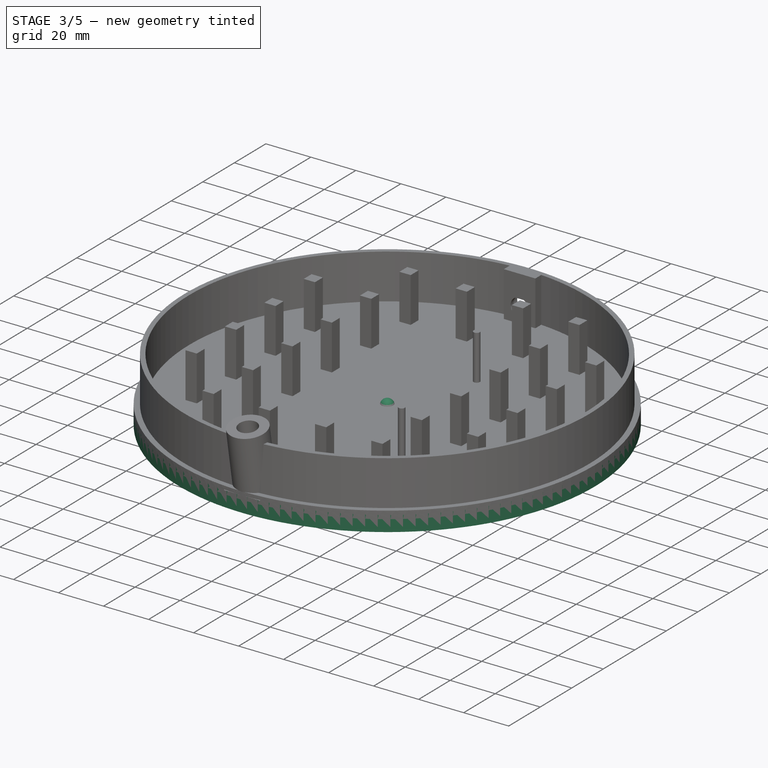
[diagram: stage 3 of 5 — iso view after this stage's code; geometry added in this stage tinted green]
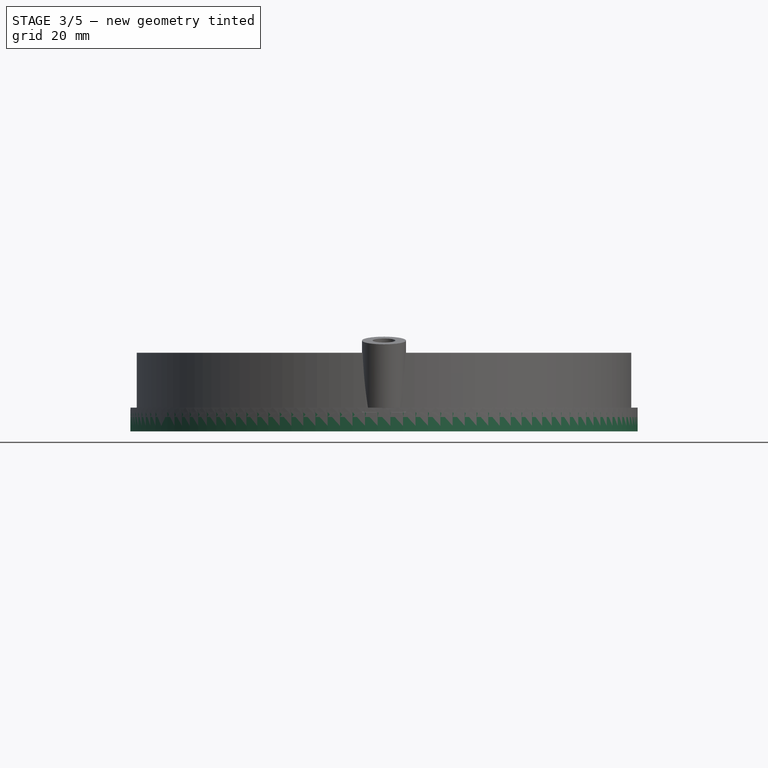
[diagram: stage 3 of 5 — front view after this stage's code; geometry added in this stage tinted green]
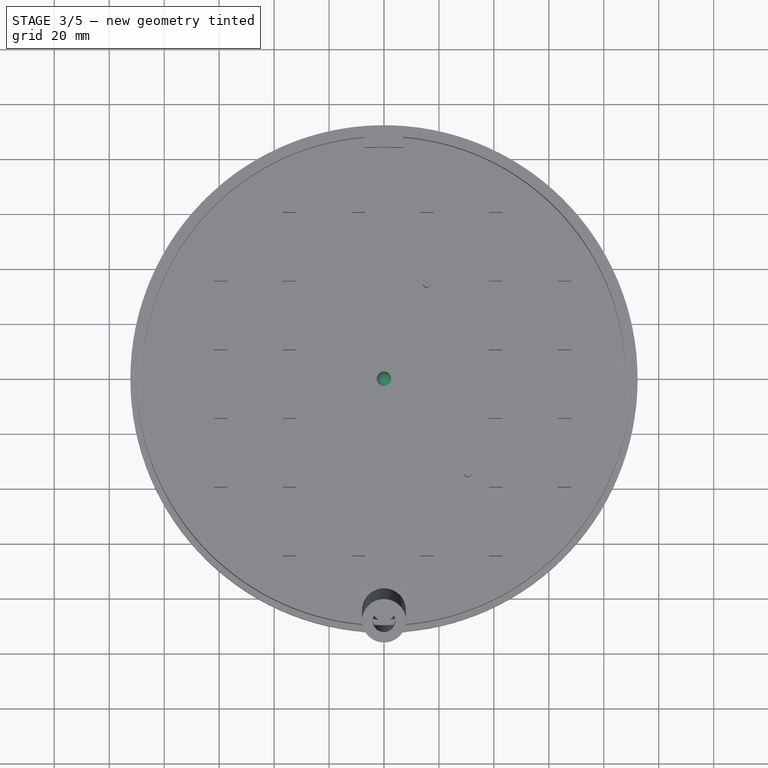
[diagram: stage 3 of 5 — top view after this stage's code; geometry added in this stage tinted green]
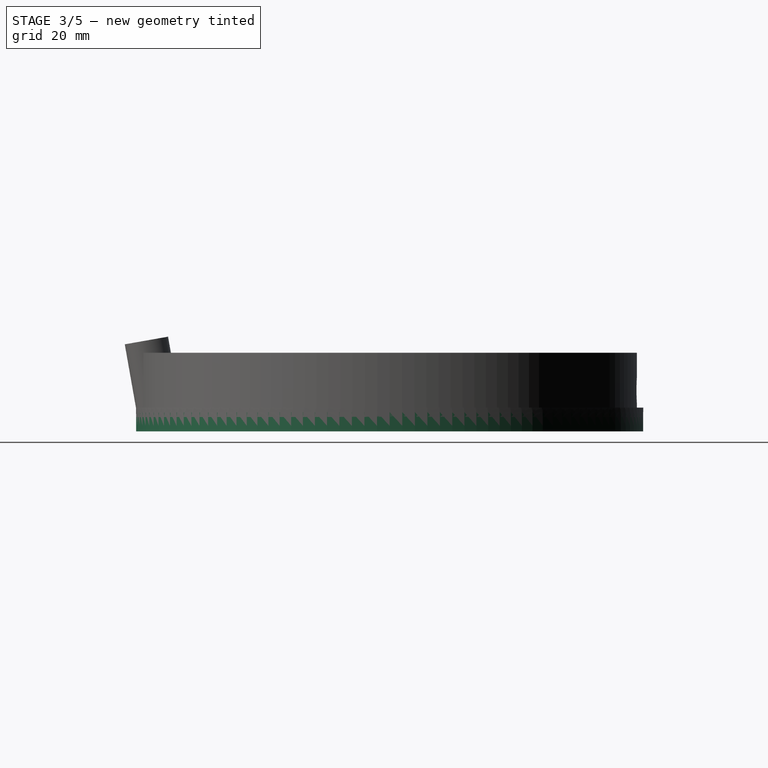
[diagram: stage 3 of 5 — right view after this stage's code; geometry added in this stage tinted green]
FEATURE [Sketcher::SketchObject] Sketch035
  FullyConstrained = true
  MapMode = 5
  Support = -> [XY_Plane022]
  sketch-geometry (7):
    g0: LineSegment StartX=-3.65 StartY=1.75 StartZ=0 EndX=-3.65 EndY=-1.75 EndZ=0
    g1: LineSegment StartX=3.65 StartY=1.75 StartZ=0 EndX=3.65 EndY=-1.75 EndZ=0
    g2: ArcOfCircle CenterX=0 CenterY=-0.0855556 CenterZ=0 NormalX=0 NormalY=0 NormalZ=1 AngleXU=0 Radius=4.08556 StartAngle=0.465958 EndAngle=2.67563
    g3: ArcOfCircle CenterX=0 CenterY=0.0855556 CenterZ=0 NormalX=0 NormalY=0 NormalZ=1 AngleXU=0 Radius=4.08556 StartAngle=3.60755 EndAngle=5.81723
    g4: LineSegment StartX=-3.65 StartY=1.75 StartZ=0 EndX=3.65 EndY=1.75 EndZ=0
    g5: GeomPoint X=0 Y=4 Z=0
    g6: GeomPoint X=0 Y=-4 Z=0
  constraints (18):
    c: Vertical(g0)
    c: PointOnObject(g2,g-2)
    c: Coincident(g2,g0)
    c: Coincident(g2,g1)
    c: Coincident(g3,g0)
    c: Coincident(g3,g1)
    c: Equal(g0,g1)
    c: DistanceX(g0,g1) = 7.3
    c: Coincident(g4,g0)
    c: Coincident(g4,g1)
    c: PointOnObject(g5,g-2)
    c: PointOnObject(g6,g-2)
    c: PointOnObject(g5,g2)
    c: PointOnObject(g6,g3)
    c: DistanceY(g6,g5) = 8
    c: Symmetric(g2,g3,g-1)
    c: Symmetric(g1,g1,g-1)
    c: DistanceY(g1,g1) = 3.5
FEATURE [PartDesign::Pad] Pad022
  Direction = (1,1,1)
  Length = 2.4
  Length2 = 100
  Profile = -> Sketch035
  Type = 0
FEATURE [PartDesign::Body] Body023  label="light005"
  Group = -> [ShapeBinder011,Sketch036,Revolution005]
  Origin = -> Origin023
  Tip = -> Revolution005
FEATURE [PartDesign::ShapeBinder] ShapeBinder012
  Support = -> [Pad022]
  TraceSupport = false
FEATURE [Sketcher::SketchObject] Sketch037
  ExternalGeometry = -> [ShapeBinder012]
  FullyConstrained = true
  MapMode = 5
  Placement = pos=(0,0,0) rot=(1,0,0;3.14159rad)
  Support = -> [ShapeBinder012]
  sketch-geometry (28):
    g0: LineSegment StartX=3.65 StartY=1.5 StartZ=0 EndX=6.65 EndY=1.5 EndZ=0
    g1: LineSegment StartX=6.65 StartY=1.5 StartZ=0 EndX=6.65 EndY=2 EndZ=0
    g2: LineSegment StartX=6.65 StartY=2 StartZ=0 EndX=8.65 EndY=2 EndZ=0
    g3: LineSegment StartX=8.65 StartY=2 StartZ=0 EndX=8.65 EndY=0.2 EndZ=0
    g4: LineSegment StartX=8.65 StartY=0.2 StartZ=0 EndX=6.65 EndY=0.2 EndZ=0
    g5: LineSegment StartX=6.65 StartY=0.2 StartZ=0 EndX=6.65 EndY=0.7 EndZ=0
    g6: LineSegment StartX=6.65 StartY=0.7 StartZ=0 EndX=4.45 EndY=0.7 EndZ=0
    g7: LineSegment StartX=4.45 StartY=0.7 StartZ=0 EndX=4.45 EndY=-0.2 EndZ=0
    g8: ArcOfCircle CenterX=4.45 CenterY=-0.85 CenterZ=0 NormalX=0 NormalY=0 NormalZ=1 AngleXU=0 Radius=0.65 StartAngle=1.5708 EndAngle=4.71239
    g9: LineSegment StartX=4.45 StartY=-1.5 StartZ=0 EndX=-6.65 EndY=-1.5 EndZ=0
    g10: LineSegment StartX=-6.65 StartY=-1.5 StartZ=0 EndX=-6.65 EndY=-1.85 EndZ=0
    g11: LineSegment StartX=-6.65 StartY=-1.85 StartZ=0 EndX=-8.65 EndY=-1.85 EndZ=0
    g12: LineSegment StartX=-8.65 StartY=-1.85 StartZ=0 EndX=-8.65 EndY=-0.25 EndZ=0
    g13: LineSegment StartX=-8.65 StartY=-0.25 StartZ=0 EndX=-6.65 EndY=-0.25 EndZ=0
    g14: LineSegment StartX=-6.65 StartY=-0.25 StartZ=0 EndX=-6.65 EndY=-0.6 EndZ=0
    g15: LineSegment StartX=-6.65 StartY=-0.6 StartZ=0 EndX=-4.95 EndY=-0.6 EndZ=0
    g16: LineSegment StartX=-4.95 StartY=-0.6 StartZ=0 EndX=-4.95 EndY=1.5 EndZ=0
    g17: LineSegment StartX=-4.95 StartY=1.5 StartZ=0 EndX=3.65 EndY=1.5 EndZ=0
    g18: LineSegment StartX=6.65 StartY=1.5 StartZ=0 EndX=6.65 EndY=0.7 EndZ=0
    g19: GeomPoint X=3.65 Y=-1.5 Z=0
    g20: LineSegment StartX=3.65 StartY=1.5 StartZ=0 EndX=3.65 EndY=1.75 EndZ=0
    g21: LineSegment StartX=3.65 StartY=-1.5 StartZ=0 EndX=3.65 EndY=-1.75 EndZ=0
    g22: LineSegment StartX=4.45 StartY=-0.2 StartZ=0 EndX=4.45 EndY=-0.85 EndZ=0
    g23: LineSegment StartX=4.45 StartY=-0.85 StartZ=0 EndX=4.45 EndY=-1.5 EndZ=0
    g24: LineSegment StartX=4.45 StartY=-0.2 StartZ=0 EndX=4.45 EndY=-1.5 EndZ=0
    g25: GeomPoint X=3.8 Y=-0.85 Z=0
    g26: LineSegment StartX=4.45 StartY=-0.85 StartZ=0 EndX=3.65 EndY=-0.85 EndZ=0
    g27: LineSegment StartX=-6.65 StartY=-0.6 StartZ=0 EndX=-6.65 EndY=-1.5 EndZ=0
  constraints (76):
    c: PointOnObject(g0,g-3)
    c: Horizontal(g0)
    c: Coincident(g0,g1)
    c: Vertical(g1)
    c: Coincident(g1,g2)
    c: Horizontal(g2)
    c: Coincident(g2,g3)
    c: Vertical(g3)
    c: Coincident(g3,g4)
    c: Coincident(g4,g5)
    c: Vertical(g5)
    c: Coincident(g5,g6)
    c: Horizontal(g6)
    c: Coincident(g6,g7)
    c: Vertical(g7)
    c: Coincident(g8,g7)
    c: Coincident(g8,g9)
    c: Coincident(g9,g10)
    c: Coincident(g10,g11)
    c: Horizontal(g11)
    c: Coincident(g11,g12)
    c: Vertical(g12)
    c: Coincident(g12,g13)
    c: Horizontal(g13)
    c: Coincident(g13,g14)
    c: Vertical(g14)
    c: Coincident(g14,g15)
    c: Horizontal(g15)
    c: Coincident(g15,g16)
    c: Vertical(g16)
    c: Coincident(g16,g17)
    c: Coincident(g17,g0)
    c: Horizontal(g17)
    c: DistanceX(g0,g2) = 5
    c: DistanceX(g2,g2) = 2
    c: Coincident(g18,g0)
    c: Coincident(g18,g5)
    c: Vertical(g18)
    c: Horizontal(g4)
    c: DistanceY(g3,g3) = 1.8
    c: DistanceY(g5,g0) = 0.8
    c: Equal(g1,g5)
    c: DistanceY(g8,g0) = 3
    c: Horizontal(g9)
    c: PointOnObject(g19,g9)
    c: PointOnObject(g19,g-3)
    c: Coincident(g20,g0)
    c: Coincident(g20,g-3)
    c: Coincident(g21,g19)
    c: Coincident(g21,g-3)
    c: Equal(g20,g21)
    c: DistanceY(g7,g0) = 1.7
    c: Coincident(g22,g7)
    c: Coincident(g22,g8)
    c: Coincident(g23,g8)
    c: Coincident(g23,g8)
    c: Coincident(g24,g7)
    c: Coincident(g24,g8)
    c: Vertical(g24)
    c: DistanceX(g0,g6) = 0.8
    c: PointOnObject(g25,g8)
    c: Coincident(g26,g8)
    c: PointOnObject(g26,g-3)
    c: Horizontal(g26)
    c: PointOnObject(g25,g26)
    c: PointOnObject(g8,g24)
    c: DistanceX(g11,g-4) = 5
    c: DistanceX(g11,g11) = 2
    c: Vertical(g10)
    c: Coincident(g27,g14)
    c: Coincident(g27,g9)
    c: Vertical(g27)
    c: Equal(g14,g10)
    c: DistanceY(g12,g12) = 1.6
    c: DistanceY(g27,g27) = 0.9
    c: DistanceX(g15,g-4) = 1.3
FEATURE [PartDesign::Pad] Pad023
  Direction = (1,1,1)
  Length = 0.4
  Length2 = 100
  Profile = -> Sketch037
  Reversed = true
  Type = 0
FEATURE [Sketcher::SketchObject] Sketch040
  FullyConstrained = true
  MapMode = 5
  Support = -> [XY_Plane025]
  sketch-geometry (2):
    g0: Circle CenterX=0 CenterY=0 CenterZ=0 NormalX=0 NormalY=0 NormalZ=1 AngleXU=0 Radius=92.3
    g1: Circle CenterX=0 CenterY=0 CenterZ=0 NormalX=0 NormalY=0 NormalZ=1 AngleXU=0 Radius=80
  constraints (4):
    c: Coincident(g0,g-1)
    c: Radius(g0) = 92.3
    c: Coincident(g1,g0)
    c: Radius(g1) = 80
FEATURE [PartDesign::Pad] Pad025
  Direction = (0,0,1)
  Length = 1
  Length2 = 10
  Profile = -> Sketch040
  ReferenceAxis = -> Sketch040 [N_Axis]
  Type = 0
FEATURE [Sketcher::SketchObject] Sketch041
  ExternalGeometry = -> [Pad025]
  FullyConstrained = true
  MapMode = 5
  Placement = pos=(0,0,0) rot=(1,0,0;3.14159rad)
  Support = -> [Pad025]
  sketch-geometry (2):
    g0: Circle CenterX=0 CenterY=0 CenterZ=0 NormalX=0 NormalY=0 NormalZ=1 AngleXU=0 Radius=92.3
    g1: Circle CenterX=0 CenterY=0 CenterZ=0 NormalX=0 NormalY=0 NormalZ=1 AngleXU=0 Radius=90
  constraints (4):
    c: Coincident(g0,g-3)
    c: Coincident(g1,g0)
    c: Equal(g-3,g0)
    c: Radius(g1) = 90
FEATURE [PartDesign::Pad] Pad026
  BaseFeature = -> Pad025
  Direction = (0,0,-1)
  Length = 5
  Length2 = 10
  Profile = -> Sketch041
  ReferenceAxis = -> Sketch041 [N_Axis]
  Type = 0
FEATURE [PartDesign::Fillet] Fillet
  Base = -> Pad026 [Edge11]
  BaseFeature = -> Pad026
  Radius = 4
  SupportTransform = false
  UseAllEdges = false
FEATURE [Sketcher::SketchObject] Sketch042
  ExternalGeometry = -> [Fillet]
  FullyConstrained = true
  MapMode = 5
  Placement = pos=(0,0,-5) rot=(1,0,0;3.14159rad)
  Support = -> [Fillet]
  sketch-geometry (1):
    g0: Circle CenterX=0 CenterY=0 CenterZ=0 NormalX=0 NormalY=0 NormalZ=1 AngleXU=0 Radius=92.3
  constraints (2):
    c: Coincident(g0,g-3)
    c: Equal(g0,g-3)
FEATURE [PartDesign::Pad] Pad027
  BaseFeature = -> Fillet
  Direction = (0,0,-1)
  Length = 2
  Length2 = 10
  Profile = -> Sketch042
  ReferenceAxis = -> Sketch042 [N_Axis]
  Type = 0
FEATURE [PartDesign::Body] Body025  label="Luce-Top"
  Group = -> [Sketch040,Pad025,Sketch041,Pad026,Fillet,Sketch042,Pad027]
  Origin = -> Origin025
  Placement = pos=(0,0,-1.6) rot=(0,0,1;0rad)
  Tip = -> Pad027
FEATURE [Sketcher::SketchObject] Sketch043
  FullyConstrained = true
  MapMode = 5
  Support = -> [XY_Plane026]
  sketch-geometry (7):
    g0: LineSegment StartX=-3.65 StartY=1.75 StartZ=0 EndX=-3.65 EndY=-1.75 EndZ=0
    g1: LineSegment StartX=3.65 StartY=1.75 StartZ=0 EndX=3.65 EndY=-1.75 EndZ=0
    g2: ArcOfCircle CenterX=0 CenterY=-0.0855556 CenterZ=0 NormalX=0 NormalY=0 NormalZ=1 AngleXU=0 Radius=4.08556 StartAngle=0.465958 EndAngle=2.67563
    g3: ArcOfCircle CenterX=0 CenterY=0.0855556 CenterZ=0 NormalX=0 NormalY=0 NormalZ=1 AngleXU=0 Radius=4.08556 StartAngle=3.60755 EndAngle=5.81723
    g4: LineSegment StartX=-3.65 StartY=1.75 StartZ=0 EndX=3.65 EndY=1.75 EndZ=0
    g5: GeomPoint X=0 Y=4 Z=0
    g6: GeomPoint X=0 Y=-4 Z=0
  constraints (18):
    c: Vertical(g0)
    c: PointOnObject(g2,g-2)
    c: Coincident(g2,g0)
    c: Coincident(g2,g1)
    c: Coincident(g3,g0)
    c: Coincident(g3,g1)
    c: Equal(g0,g1)
    c: DistanceX(g0,g1) = 7.3
    c: Coincident(g4,g0)
    c: Coincident(g4,g1)
    c: PointOnObject(g5,g-2)
    c: PointOnObject(g6,g-2)
    c: PointOnObject(g5,g2)
    c: PointOnObject(g6,g3)
    c: DistanceY(g6,g5) = 8
    c: Symmetric(g2,g3,g-1)
    c: Symmetric(g1,g1,g-1)
    c: DistanceY(g1,g1) = 3.5
FEATURE [PartDesign::Pad] Pad028
  Direction = (1,1,1)
  Length = 2.4
  Length2 = 100
  Profile = -> Sketch043
  Type = 0
FEATURE [PartDesign::Body] Body026
  Group = -> [Sketch043,Pad028]
  Origin = -> Origin026
  Tip = -> Pad028
FEATURE [PartDesign::ShapeBinder] ShapeBinder013
  Placement = pos=(0,0,2.4) rot=(0,0,1;0rad)
  Support = -> [Pad028]
  TraceSupport = false
FEATURE [Sketcher::SketchObject] Sketch044
  FullyConstrained = true
  MapMode = 5
  Placement = pos=(0,0,2.4) rot=(0,0,1;0rad)
  Support = -> [ShapeBinder013]
  sketch-geometry (3):
    g0: ArcOfCircle CenterX=0 CenterY=0 CenterZ=0 NormalX=0 NormalY=0 NormalZ=1 AngleXU=0 Radius=2.75 StartAngle=3.14159 EndAngle=6.28319
    g1: LineSegment StartX=-2.75 StartY=3e-16 StartZ=0 EndX=2.75 EndY=-7e-16 EndZ=0
    g2: LineSegment StartX=-2.75 StartY=3e-16 StartZ=0 EndX=2.75 EndY=-7e-16 EndZ=0
  constraints (8):
    c: Coincident(g0,g-1)
    c: PointOnObject(g0,g-1)
    c: PointOnObject(g0,g-1)
    c: Coincident(g1,g0)
    c: Coincident(g1,g0)
    c: Coincident(g2,g0)
    c: Coincident(g2,g0)
    c: DistanceX(g0,g0) = 5.5
FEATURE [PartDesign::Revolution] Revolution006
  Angle = 180
  Axis = (5.5,-1e-15,0)
  Base = (-2.75,3e-16,2.4)
  Placement = pos=(0,0,2.4) rot=(0,0,1;0rad)
  Profile = -> Sketch044
  ReferenceAxis = -> Sketch044 [Axis0]
  Reversed = true
FEATURE [PartDesign::Body] Body027  label="light006"
  Group = -> [ShapeBinder013,Sketch044,Revolution006]
  Origin = -> Origin027
  Tip = -> Revolution006
FEATURE [PartDesign::ShapeBinder] ShapeBinder014
  Support = -> [Pad028]
  TraceSupport = false
FEATURE [Sketcher::SketchObject] Sketch045
  ExternalGeometry = -> [ShapeBinder014]
  FullyConstrained = true
  MapMode = 5
  Placement = pos=(0,0,0) rot=(1,0,0;3.14159rad)
  Support = -> [ShapeBinder014]
  sketch-geometry (28):
    g0: LineSegment StartX=3.65 StartY=1.5 StartZ=0 EndX=6.65 EndY=1.5 EndZ=0
    g1: LineSegment StartX=6.65 StartY=1.5 StartZ=0 EndX=6.65 EndY=2 EndZ=0
    g2: LineSegment StartX=6.65 StartY=2 StartZ=0 EndX=8.65 EndY=2 EndZ=0
    g3: LineSegment StartX=8.65 StartY=2 StartZ=0 EndX=8.65 EndY=0.2 EndZ=0
    g4: LineSegment StartX=8.65 StartY=0.2 StartZ=0 EndX=6.65 EndY=0.2 EndZ=0
    g5: LineSegment StartX=6.65 StartY=0.2 StartZ=0 EndX=6.65 EndY=0.7 EndZ=0
    g6: LineSegment StartX=6.65 StartY=0.7 StartZ=0 EndX=4.45 EndY=0.7 EndZ=0
    g7: LineSegment StartX=4.45 StartY=0.7 StartZ=0 EndX=4.45 EndY=-0.2 EndZ=0
    g8: ArcOfCircle CenterX=4.45 CenterY=-0.85 CenterZ=0 NormalX=0 NormalY=0 NormalZ=1 AngleXU=0 Radius=0.65 StartAngle=1.5708 EndAngle=4.71239
    g9: LineSegment StartX=4.45 StartY=-1.5 StartZ=0 EndX=-6.65 EndY=-1.5 EndZ=0
    g10: LineSegment StartX=-6.65 StartY=-1.5 StartZ=0 EndX=-6.65 EndY=-1.85 EndZ=0
    g11: LineSegment StartX=-6.65 StartY=-1.85 StartZ=0 EndX=-8.65 EndY=-1.85 EndZ=0
    g12: LineSegment StartX=-8.65 StartY=-1.85 StartZ=0 EndX=-8.65 EndY=-0.25 EndZ=0
    g13: LineSegment StartX=-8.65 StartY=-0.25 StartZ=0 EndX=-6.65 EndY=-0.25 EndZ=0
    g14: LineSegment StartX=-6.65 StartY=-0.25 StartZ=0 EndX=-6.65 EndY=-0.6 EndZ=0
    g15: LineSegment StartX=-6.65 StartY=-0.6 StartZ=0 EndX=-4.95 EndY=-0.6 EndZ=0
    g16: LineSegment StartX=-4.95 StartY=-0.6 StartZ=0 EndX=-4.95 EndY=1.5 EndZ=0
    g17: LineSegment StartX=-4.95 StartY=1.5 StartZ=0 EndX=3.65 EndY=1.5 EndZ=0
    g18: LineSegment StartX=6.65 StartY=1.5 StartZ=0 EndX=6.65 EndY=0.7 EndZ=0
    g19: GeomPoint X=3.65 Y=-1.5 Z=0
    g20: LineSegment StartX=3.65 StartY=1.5 StartZ=0 EndX=3.65 EndY=1.75 EndZ=0
    g21: LineSegment StartX=3.65 StartY=-1.5 StartZ=0 EndX=3.65 EndY=-1.75 EndZ=0
    g22: LineSegment StartX=4.45 StartY=-0.2 StartZ=0 EndX=4.45 EndY=-0.85 EndZ=0
    g23: LineSegment StartX=4.45 StartY=-0.85 StartZ=0 EndX=4.45 EndY=-1.5 EndZ=0
    g24: LineSegment StartX=4.45 StartY=-0.2 StartZ=0 EndX=4.45 EndY=-1.5 EndZ=0
    g25: GeomPoint X=3.8 Y=-0.85 Z=0
    g26: LineSegment StartX=4.45 StartY=-0.85 StartZ=0 EndX=3.65 EndY=-0.85 EndZ=0
    g27: LineSegment StartX=-6.65 StartY=-0.6 StartZ=0 EndX=-6.65 EndY=-1.5 EndZ=0
  constraints (76):
    c: PointOnObject(g0,g-3)
    c: Horizontal(g0)
    c: Coincident(g0,g1)
    c: Vertical(g1)
    c: Coincident(g1,g2)
    c: Horizontal(g2)
    c: Coincident(g2,g3)
    c: Vertical(g3)
    c: Coincident(g3,g4)
    c: Coincident(g4,g5)
    c: Vertical(g5)
    c: Coincident(g5,g6)
    c: Horizontal(g6)
    c: Coincident(g6,g7)
    c: Vertical(g7)
    c: Coincident(g8,g7)
    c: Coincident(g8,g9)
    c: Coincident(g9,g10)
    c: Coincident(g10,g11)
    c: Horizontal(g11)
    c: Coincident(g11,g12)
    c: Vertical(g12)
    c: Coincident(g12,g13)
    c: Horizontal(g13)
    c: Coincident(g13,g14)
    c: Vertical(g14)
    c: Coincident(g14,g15)
    c: Horizontal(g15)
    c: Coincident(g15,g16)
    c: Vertical(g16)
    c: Coincident(g16,g17)
    c: Coincident(g17,g0)
    c: Horizontal(g17)
    c: DistanceX(g0,g2) = 5
    c: DistanceX(g2,g2) = 2
    c: Coincident(g18,g0)
    c: Coincident(g18,g5)
    c: Vertical(g18)
    c: Horizontal(g4)
    c: DistanceY(g3,g3) = 1.8
    c: DistanceY(g5,g0) = 0.8
    c: Equal(g1,g5)
    c: DistanceY(g8,g0) = 3
    c: Horizontal(g9)
    c: PointOnObject(g19,g9)
    c: PointOnObject(g19,g-3)
    c: Coincident(g20,g0)
    c: Coincident(g20,g-3)
    c: Coincident(g21,g19)
    c: Coincident(g21,g-3)
    c: Equal(g20,g21)
    c: DistanceY(g7,g0) = 1.7
    c: Coincident(g22,g7)
    c: Coincident(g22,g8)
    c: Coincident(g23,g8)
    c: Coincident(g23,g8)
    c: Coincident(g24,g7)
    c: Coincident(g24,g8)
    c: Vertical(g24)
    c: DistanceX(g0,g6) = 0.8
    c: PointOnObject(g25,g8)
    c: Coincident(g26,g8)
    c: PointOnObject(g26,g-3)
    c: Horizontal(g26)
    c: PointOnObject(g25,g26)
    c: PointOnObject(g8,g24)
    c: DistanceX(g11,g-4) = 5
    c: DistanceX(g11,g11) = 2
    c: Vertical(g10)
    c: Coincident(g27,g14)
    c: Coincident(g27,g9)
    c: Vertical(g27)
    c: Equal(g14,g10)
    c: DistanceY(g12,g12) = 1.6
    c: DistanceY(g27,g27) = 0.9
    c: DistanceX(g15,g-4) = 1.3
FEATURE [PartDesign::Pad] Pad029
  Direction = (1,1,1)
  Length = 0.4
  Length2 = 100
  Profile = -> Sketch045
  Reversed = true
  Type = 0
FEATURE [PartDesign::Body] Body028
  Group = -> [ShapeBinder014,Sketch045,Pad029]
  Origin = -> Origin028
  Placement = pos=(0,0,1.4) rot=(1,0,0;3.14159rad)
  Tip = -> Pad029
FEATURE [Part::MultiFuse] Fusion007  label="Led1"
  Placement = pos=(0,0,-1.5) rot=(0,0,1;1.0472rad)
  Shapes = -> [Body026,Body027,Body028]
FEATURE [Sketcher::SketchObject] Sketch046
  FullyConstrained = false
  MapMode = 5
  Support = -> [XY_Plane029]
  sketch-geometry (31):
    g0: Circle CenterX=0 CenterY=0 CenterZ=0 NormalX=0 NormalY=0 NormalZ=1 AngleXU=0 Radius=10.25
    g1: LineSegment StartX=-3 StartY=9.80115 StartZ=0 EndX=3 EndY=9.80115 EndZ=0
    g2: LineSegment StartX=-3 StartY=-9.80115 StartZ=0 EndX=3 EndY=-9.80115 EndZ=0
    g3: LineSegment StartX=6.98804 StartY=-7.49865 StartZ=0 EndX=9.98804 EndY=-2.3025 EndZ=0
    g4: LineSegment StartX=6.98804 StartY=7.49865 StartZ=0 EndX=9.98804 EndY=2.3025 EndZ=0
    g5: LineSegment StartX=-6.98804 StartY=7.49865 StartZ=0 EndX=-9.98804 EndY=2.3025 EndZ=0
    g6: LineSegment StartX=-9.98804 StartY=-2.3025 StartZ=0 EndX=-6.98804 EndY=-7.49865 EndZ=0
    g7: LineSegment StartX=-9.98804 StartY=2.3025 StartZ=0 EndX=9.98804 EndY=-2.3025 EndZ=0
    g8: LineSegment StartX=-6.98804 StartY=7.49865 StartZ=0 EndX=6.98804 EndY=-7.49865 EndZ=0
    g9: LineSegment StartX=-9.98804 StartY=-2.3025 StartZ=0 EndX=9.98804 EndY=2.3025 EndZ=0
    g10: LineSegment StartX=-6.98804 StartY=-7.49865 StartZ=0 EndX=6.98804 EndY=7.49865 EndZ=0
    g11: LineSegment StartX=-6.98804 StartY=7.49865 StartZ=0 EndX=-3 EndY=9.80115 EndZ=0
    g12: LineSegment StartX=3 StartY=9.80115 StartZ=0 EndX=6.98804 EndY=7.49865 EndZ=0
    g13: LineSegment StartX=9.98804 StartY=2.3025 StartZ=0 EndX=9.98804 EndY=-2.3025 EndZ=0
    g14: LineSegment StartX=6.98804 StartY=-7.49865 StartZ=0 EndX=3 EndY=-9.80115 EndZ=0
    g15: LineSegment StartX=-3 StartY=-9.80115 StartZ=0 EndX=-6.98804 EndY=-7.49865 EndZ=0
    g16: LineSegment StartX=-9.98804 StartY=-2.3025 StartZ=0 EndX=-9.98804 EndY=2.3025 EndZ=0
    g17: ArcOfCircle CenterX=-5.5026 CenterY=9.53079 CenterZ=0 NormalX=0 NormalY=0 NormalZ=1 AngleXU=0 Radius=2.51717 StartAngle=4.08118 EndAngle=6.3908
    g18: LineSegment StartX=-5.5026 StartY=9.53079 StartZ=0 EndX=0 EndY=0 EndZ=0
    g19: LineSegment StartX=-5.5026 StartY=9.53079 StartZ=0 EndX=-3 EndY=9.80115 EndZ=0
    g20: LineSegment StartX=-5.5026 StartY=9.53079 StartZ=0 EndX=-6.98804 EndY=7.49865 EndZ=0
    g21: GeomPoint X=-4.24402 Y=7.35086 Z=0
    g22: GeomPoint X=-4.70729 Y=8.81544 Z=0
    g23: GeomPoint X=-4.99402 Y=8.6499 Z=0
    g24: Circle CenterX=0 CenterY=0 CenterZ=0 NormalX=0 NormalY=0 NormalZ=1 AngleXU=0 Radius=8.48804
    g25: Circle CenterX=0 CenterY=0 CenterZ=0 NormalX=0 NormalY=0 NormalZ=1 AngleXU=0 Radius=11.0052
    g26: ArcOfCircle CenterX=-11.0052 CenterY=-5e-16 CenterZ=0 NormalX=0 NormalY=0 NormalZ=1 AngleXU=0 Radius=2.51717 StartAngle=5.12837 EndAngle=7.438
    g27: ArcOfCircle CenterX=-5.5026 CenterY=-9.53079 CenterZ=0 NormalX=0 NormalY=0 NormalZ=1 AngleXU=0 Radius=2.51717 StartAngle=6.17557 EndAngle=8.48519
    g28: ArcOfCircle CenterX=5.5026 CenterY=-9.53079 CenterZ=0 NormalX=0 NormalY=0 NormalZ=1 AngleXU=0 Radius=2.51717 StartAngle=0.939584 EndAngle=3.24921
    g29: ArcOfCircle CenterX=11.0052 CenterY=3e-16 CenterZ=0 NormalX=0 NormalY=0 NormalZ=1 AngleXU=0 Radius=2.51717 StartAngle=1.98678 EndAngle=4.2964
    g30: ArcOfCircle CenterX=5.5026 CenterY=9.53079 CenterZ=0 NormalX=0 NormalY=0 NormalZ=1 AngleXU=0 Radius=2.51717 StartAngle=3.03398 EndAngle=5.3436
  constraints (80):
    c: Coincident(g0,g-1)
    c: Diameter(g0) = 20.5
    c: PointOnObject(g1,g0)
    c: PointOnObject(g1,g0)
    c: Horizontal(g1)
    c: DistanceX(g1,g1) = 6
    c: PointOnObject(g2,g0)
    c: PointOnObject(g2,g0)
    c: Horizontal(g2)
    c: DistanceX(g2,g2) = 6
    c: PointOnObject(g3,g0)
    c: PointOnObject(g3,g0)
    c: PointOnObject(g4,g0)
    c: PointOnObject(g4,g0)
    c: PointOnObject(g5,g0)
    c: PointOnObject(g5,g0)
    c: PointOnObject(g6,g0)
    c: PointOnObject(g6,g0)
    c: Coincident(g7,g5)
    c: Coincident(g7,g3)
    c: Coincident(g8,g5)
    c: Coincident(g8,g3)
    c: PointOnObject(g0,g8)
    c: PointOnObject(g0,g7)
    c: Distance(g5) = 6
    c: Coincident(g9,g6)
    c: Coincident(g9,g4)
    c: Coincident(g10,g6)
    c: Coincident(g10,g4)
    c: PointOnObject(g0,g10)
    c: PointOnObject(g0,g9)
    c: Distance(g6,g6) = 6
    c: Coincident(g11,g5)
    c: Coincident(g11,g1)
    c: Coincident(g12,g1)
    c: Coincident(g12,g4)
    c: Coincident(g13,g4)
    c: Coincident(g13,g3)
    c: Coincident(g14,g3)
    c: Coincident(g14,g2)
    c: Coincident(g15,g2)
    c: Coincident(g15,g6)
    c: Coincident(g16,g6)
    c: Coincident(g16,g5)
    c: Equal(g14,g15)
    c: Equal(g16,g11)
    c: Coincident(g17,g1)
    c: PointOnObject(g17,g0)
    c: Coincident(g18,g17)
    c: Coincident(g19,g17)
    c: Coincident(g19,g1)
    c: Coincident(g20,g17)
    c: Coincident(g20,g5)
    c: Equal(g19,g20)
    c: PointOnObject(g21,g17)
    c: PointOnObject(g21,g18)
    c: Coincident(g18,g0)
    c: PointOnObject(g22,g11)
    c: PointOnObject(g23,g11)
    c: PointOnObject(g23,g18)
    c: Distance(g23,g21) = 1.5
    c: Coincident(g24,g0)
    c: PointOnObject(g21,g24)
    c: Coincident(g25,g0)
    c: PointOnObject(g17,g25)
    c: PointOnObject(g26,g25)
    c: Coincident(g26,g5)
    c: Coincident(g26,g6)
    c: PointOnObject(g27,g25)
    c: Coincident(g27,g6)
    c: Coincident(g27,g2)
    c: PointOnObject(g28,g25)
    c: Coincident(g28,g2)
    c: Coincident(g28,g3)
    c: PointOnObject(g29,g25)
    c: Coincident(g29,g3)
    c: Coincident(g29,g4)
    c: PointOnObject(g30,g25)
    c: Coincident(g30,g1)
    c: Coincident(g30,g4)
FEATURE [PartDesign::Pad] Pad030
  Direction = (0,0,1)
  Length = 1.5
  Length2 = 10
  Profile = -> Sketch046
  ReferenceAxis = -> Sketch046 [N_Axis]
  Type = 0
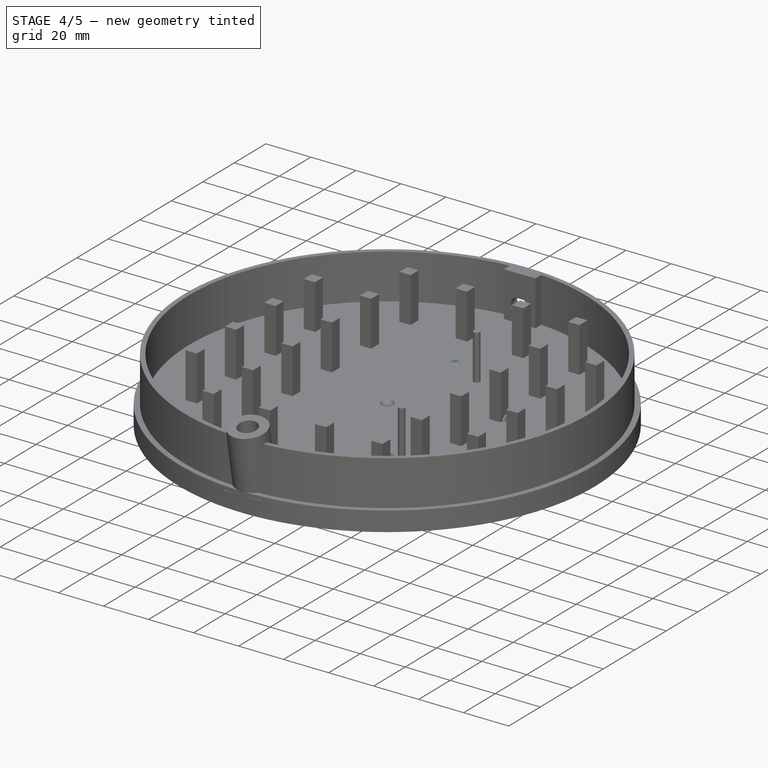
[diagram: stage 4 of 5 — iso view after this stage's code; geometry added in this stage tinted green]
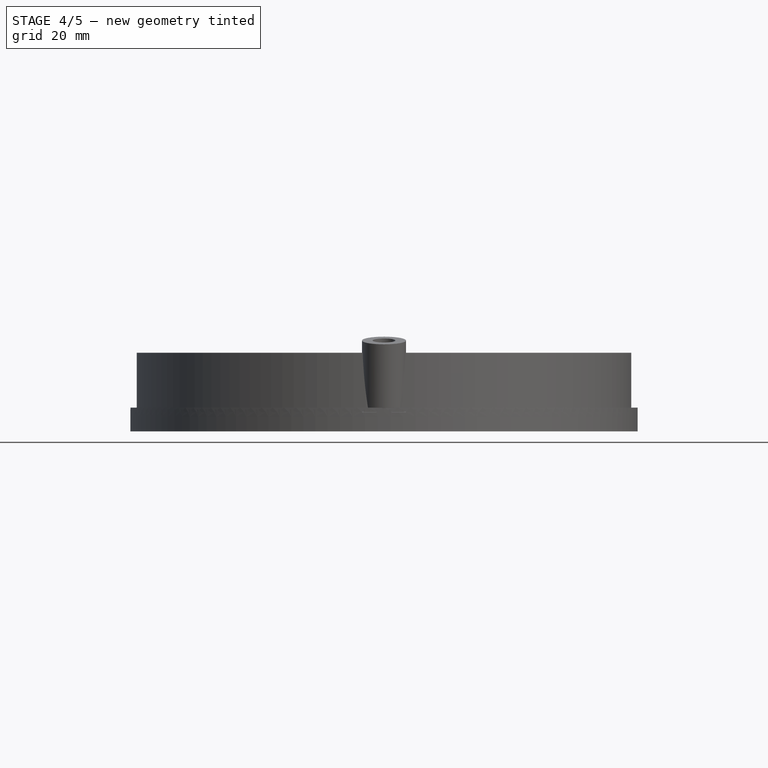
[diagram: stage 4 of 5 — front view after this stage's code; geometry added in this stage tinted green]
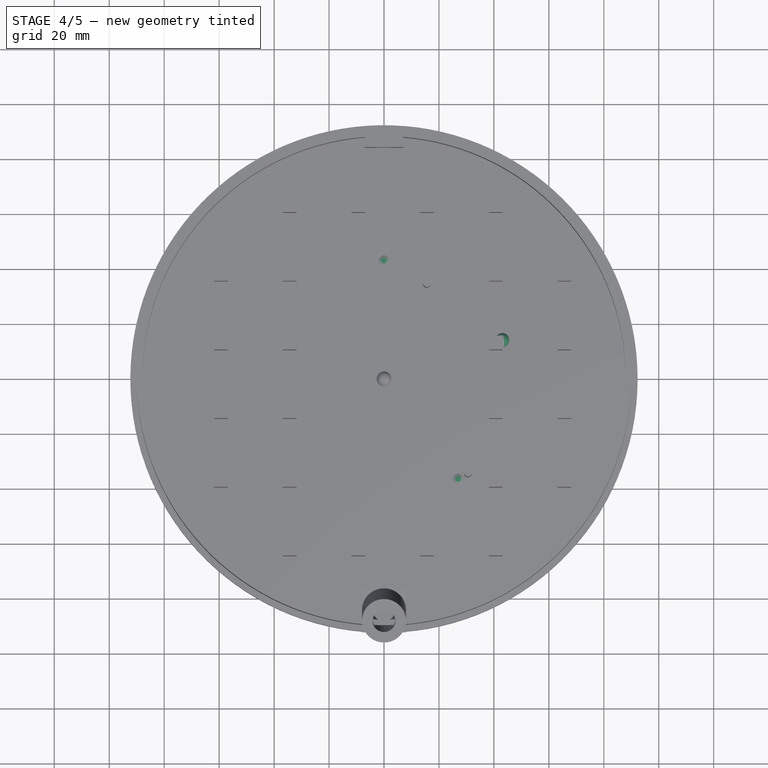
[diagram: stage 4 of 5 — top view after this stage's code; geometry added in this stage tinted green]
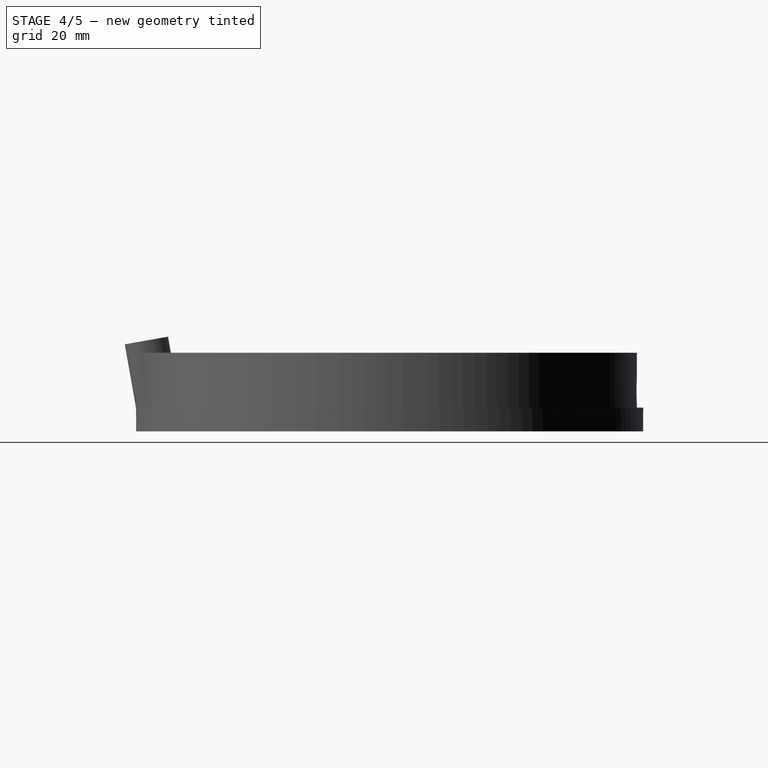
[diagram: stage 4 of 5 — right view after this stage's code; geometry added in this stage tinted green]
FEATURE [Sketcher::SketchObject] Sketch026
  FullyConstrained = true
  MapMode = 5
  Support = -> [XY_Plane013]
  sketch-geometry (7):
    g0: LineSegment StartX=-3.65 StartY=1.75 StartZ=0 EndX=-3.65 EndY=-1.75 EndZ=0
    g1: LineSegment StartX=3.65 StartY=1.75 StartZ=0 EndX=3.65 EndY=-1.75 EndZ=0
    g2: ArcOfCircle CenterX=0 CenterY=-0.0855556 CenterZ=0 NormalX=0 NormalY=0 NormalZ=1 AngleXU=0 Radius=4.08556 StartAngle=0.465958 EndAngle=2.67563
    g3: ArcOfCircle CenterX=0 CenterY=0.0855556 CenterZ=0 NormalX=0 NormalY=0 NormalZ=1 AngleXU=0 Radius=4.08556 StartAngle=3.60755 EndAngle=5.81723
    g4: LineSegment StartX=-3.65 StartY=1.75 StartZ=0 EndX=3.65 EndY=1.75 EndZ=0
    g5: GeomPoint X=0 Y=4 Z=0
    g6: GeomPoint X=0 Y=-4 Z=0
  constraints (18):
    c: Vertical(g0)
    c: PointOnObject(g2,g-2)
    c: Coincident(g2,g0)
    c: Coincident(g2,g1)
    c: Coincident(g3,g0)
    c: Coincident(g3,g1)
    c: Equal(g0,g1)
    c: DistanceX(g0,g1) = 7.3
    c: Coincident(g4,g0)
    c: Coincident(g4,g1)
    c: PointOnObject(g5,g-2)
    c: PointOnObject(g6,g-2)
    c: PointOnObject(g5,g2)
    c: PointOnObject(g6,g3)
    c: DistanceY(g6,g5) = 8
    c: Symmetric(g2,g3,g-1)
    c: Symmetric(g1,g1,g-1)
    c: DistanceY(g1,g1) = 3.5
FEATURE [PartDesign::Pad] Pad016
  Direction = (1,1,1)
  Length = 2.4
  Length2 = 100
  Profile = -> Sketch026
  Type = 0
FEATURE [PartDesign::Body] Body014  label="light002"
  Group = -> [ShapeBinder005,Sketch027,Revolution002]
  Origin = -> Origin014
  Tip = -> Revolution002
FEATURE [PartDesign::ShapeBinder] ShapeBinder006
  Support = -> [Pad016]
  TraceSupport = false
FEATURE [Sketcher::SketchObject] Sketch028
  ExternalGeometry = -> [ShapeBinder006]
  FullyConstrained = true
  MapMode = 5
  Placement = pos=(0,0,0) rot=(1,0,0;3.14159rad)
  Support = -> [ShapeBinder006]
  sketch-geometry (28):
    g0: LineSegment StartX=3.65 StartY=1.5 StartZ=0 EndX=6.65 EndY=1.5 EndZ=0
    g1: LineSegment StartX=6.65 StartY=1.5 StartZ=0 EndX=6.65 EndY=2 EndZ=0
    g2: LineSegment StartX=6.65 StartY=2 StartZ=0 EndX=8.65 EndY=2 EndZ=0
    g3: LineSegment StartX=8.65 StartY=2 StartZ=0 EndX=8.65 EndY=0.2 EndZ=0
    g4: LineSegment StartX=8.65 StartY=0.2 StartZ=0 EndX=6.65 EndY=0.2 EndZ=0
    g5: LineSegment StartX=6.65 StartY=0.2 StartZ=0 EndX=6.65 EndY=0.7 EndZ=0
    g6: LineSegment StartX=6.65 StartY=0.7 StartZ=0 EndX=4.45 EndY=0.7 EndZ=0
    g7: LineSegment StartX=4.45 StartY=0.7 StartZ=0 EndX=4.45 EndY=-0.2 EndZ=0
    g8: ArcOfCircle CenterX=4.45 CenterY=-0.85 CenterZ=0 NormalX=0 NormalY=0 NormalZ=1 AngleXU=0 Radius=0.65 StartAngle=1.5708 EndAngle=4.71239
    g9: LineSegment StartX=4.45 StartY=-1.5 StartZ=0 EndX=-6.65 EndY=-1.5 EndZ=0
    g10: LineSegment StartX=-6.65 StartY=-1.5 StartZ=0 EndX=-6.65 EndY=-1.85 EndZ=0
    g11: LineSegment StartX=-6.65 StartY=-1.85 StartZ=0 EndX=-8.65 EndY=-1.85 EndZ=0
    g12: LineSegment StartX=-8.65 StartY=-1.85 StartZ=0 EndX=-8.65 EndY=-0.25 EndZ=0
    g13: LineSegment StartX=-8.65 StartY=-0.25 StartZ=0 EndX=-6.65 EndY=-0.25 EndZ=0
    g14: LineSegment StartX=-6.65 StartY=-0.25 StartZ=0 EndX=-6.65 EndY=-0.6 EndZ=0
    g15: LineSegment StartX=-6.65 StartY=-0.6 StartZ=0 EndX=-4.95 EndY=-0.6 EndZ=0
    g16: LineSegment StartX=-4.95 StartY=-0.6 StartZ=0 EndX=-4.95 EndY=1.5 EndZ=0
    g17: LineSegment StartX=-4.95 StartY=1.5 StartZ=0 EndX=3.65 EndY=1.5 EndZ=0
    g18: LineSegment StartX=6.65 StartY=1.5 StartZ=0 EndX=6.65 EndY=0.7 EndZ=0
    g19: GeomPoint X=3.65 Y=-1.5 Z=0
    g20: LineSegment StartX=3.65 StartY=1.5 StartZ=0 EndX=3.65 EndY=1.75 EndZ=0
    g21: LineSegment StartX=3.65 StartY=-1.5 StartZ=0 EndX=3.65 EndY=-1.75 EndZ=0
    g22: LineSegment StartX=4.45 StartY=-0.2 StartZ=0 EndX=4.45 EndY=-0.85 EndZ=0
    g23: LineSegment StartX=4.45 StartY=-0.85 StartZ=0 EndX=4.45 EndY=-1.5 EndZ=0
    g24: LineSegment StartX=4.45 StartY=-0.2 StartZ=0 EndX=4.45 EndY=-1.5 EndZ=0
    g25: GeomPoint X=3.8 Y=-0.85 Z=0
    g26: LineSegment StartX=4.45 StartY=-0.85 StartZ=0 EndX=3.65 EndY=-0.85 EndZ=0
    g27: LineSegment StartX=-6.65 StartY=-0.6 StartZ=0 EndX=-6.65 EndY=-1.5 EndZ=0
  constraints (76):
    c: PointOnObject(g0,g-3)
    c: Horizontal(g0)
    c: Coincident(g0,g1)
    c: Vertical(g1)
    c: Coincident(g1,g2)
    c: Horizontal(g2)
    c: Coincident(g2,g3)
    c: Vertical(g3)
    c: Coincident(g3,g4)
    c: Coincident(g4,g5)
    c: Vertical(g5)
    c: Coincident(g5,g6)
    c: Horizontal(g6)
    c: Coincident(g6,g7)
    c: Vertical(g7)
    c: Coincident(g8,g7)
    c: Coincident(g8,g9)
    c: Coincident(g9,g10)
    c: Coincident(g10,g11)
    c: Horizontal(g11)
    c: Coincident(g11,g12)
    c: Vertical(g12)
    c: Coincident(g12,g13)
    c: Horizontal(g13)
    c: Coincident(g13,g14)
    c: Vertical(g14)
    c: Coincident(g14,g15)
    c: Horizontal(g15)
    c: Coincident(g15,g16)
    c: Vertical(g16)
    c: Coincident(g16,g17)
    c: Coincident(g17,g0)
    c: Horizontal(g17)
    c: DistanceX(g0,g2) = 5
    c: DistanceX(g2,g2) = 2
    c: Coincident(g18,g0)
    c: Coincident(g18,g5)
    c: Vertical(g18)
    c: Horizontal(g4)
    c: DistanceY(g3,g3) = 1.8
    c: DistanceY(g5,g0) = 0.8
    c: Equal(g1,g5)
    c: DistanceY(g8,g0) = 3
    c: Horizontal(g9)
    c: PointOnObject(g19,g9)
    c: PointOnObject(g19,g-3)
    c: Coincident(g20,g0)
    c: Coincident(g20,g-3)
    c: Coincident(g21,g19)
    c: Coincident(g21,g-3)
    c: Equal(g20,g21)
    c: DistanceY(g7,g0) = 1.7
    c: Coincident(g22,g7)
    c: Coincident(g22,g8)
    c: Coincident(g23,g8)
    c: Coincident(g23,g8)
    c: Coincident(g24,g7)
    c: Coincident(g24,g8)
    c: Vertical(g24)
    c: DistanceX(g0,g6) = 0.8
    c: PointOnObject(g25,g8)
    c: Coincident(g26,g8)
    c: PointOnObject(g26,g-3)
    c: Horizontal(g26)
    c: PointOnObject(g25,g26)
    c: PointOnObject(g8,g24)
    c: DistanceX(g11,g-4) = 5
    c: DistanceX(g11,g11) = 2
    c: Vertical(g10)
    c: Coincident(g27,g14)
    c: Coincident(g27,g9)
    c: Vertical(g27)
    c: Equal(g14,g10)
    c: DistanceY(g12,g12) = 1.6
    c: DistanceY(g27,g27) = 0.9
    c: DistanceX(g15,g-4) = 1.3
FEATURE [PartDesign::Pad] Pad017
  Direction = (1,1,1)
  Length = 0.4
  Length2 = 100
  Profile = -> Sketch028
  Reversed = true
  Type = 0
FEATURE [Sketcher::SketchObject] Sketch029
  FullyConstrained = true
  MapMode = 5
  Support = -> [XY_Plane016]
  sketch-geometry (7):
    g0: LineSegment StartX=-3.65 StartY=1.75 StartZ=0 EndX=-3.65 EndY=-1.75 EndZ=0
    g1: LineSegment StartX=3.65 StartY=1.75 StartZ=0 EndX=3.65 EndY=-1.75 EndZ=0
    g2: ArcOfCircle CenterX=0 CenterY=-0.0855556 CenterZ=0 NormalX=0 NormalY=0 NormalZ=1 AngleXU=0 Radius=4.08556 StartAngle=0.465958 EndAngle=2.67563
    g3: ArcOfCircle CenterX=0 CenterY=0.0855556 CenterZ=0 NormalX=0 NormalY=0 NormalZ=1 AngleXU=0 Radius=4.08556 StartAngle=3.60755 EndAngle=5.81723
    g4: LineSegment StartX=-3.65 StartY=1.75 StartZ=0 EndX=3.65 EndY=1.75 EndZ=0
    g5: GeomPoint X=0 Y=4 Z=0
    g6: GeomPoint X=0 Y=-4 Z=0
  constraints (18):
    c: Vertical(g0)
    c: PointOnObject(g2,g-2)
    c: Coincident(g2,g0)
    c: Coincident(g2,g1)
    c: Coincident(g3,g0)
    c: Coincident(g3,g1)
    c: Equal(g0,g1)
    c: DistanceX(g0,g1) = 7.3
    c: Coincident(g4,g0)
    c: Coincident(g4,g1)
    c: PointOnObject(g5,g-2)
    c: PointOnObject(g6,g-2)
    c: PointOnObject(g5,g2)
    c: PointOnObject(g6,g3)
    c: DistanceY(g6,g5) = 8
    c: Symmetric(g2,g3,g-1)
    c: Symmetric(g1,g1,g-1)
    c: DistanceY(g1,g1) = 3.5
FEATURE [PartDesign::Pad] Pad018
  Direction = (1,1,1)
  Length = 2.4
  Length2 = 100
  Profile = -> Sketch029
  Type = 0
FEATURE [PartDesign::Body] Body016
  Group = -> [Sketch029,Pad018]
  Origin = -> Origin016
  Tip = -> Pad018
FEATURE [PartDesign::ShapeBinder] ShapeBinder007
  Placement = pos=(0,0,2.4) rot=(0,0,1;0rad)
  Support = -> [Pad018]
  TraceSupport = false
FEATURE [Sketcher::SketchObject] Sketch030
  FullyConstrained = true
  MapMode = 5
  Placement = pos=(0,0,2.4) rot=(0,0,1;0rad)
  Support = -> [ShapeBinder007]
  sketch-geometry (3):
    g0: ArcOfCircle CenterX=0 CenterY=0 CenterZ=0 NormalX=0 NormalY=0 NormalZ=1 AngleXU=0 Radius=2.75 StartAngle=3.14159 EndAngle=6.28319
    g1: LineSegment StartX=-2.75 StartY=3e-16 StartZ=0 EndX=2.75 EndY=-7e-16 EndZ=0
    g2: LineSegment StartX=-2.75 StartY=3e-16 StartZ=0 EndX=2.75 EndY=-7e-16 EndZ=0
  constraints (8):
    c: Coincident(g0,g-1)
    c: PointOnObject(g0,g-1)
    c: PointOnObject(g0,g-1)
    c: Coincident(g1,g0)
    c: Coincident(g1,g0)
    c: Coincident(g2,g0)
    c: Coincident(g2,g0)
    c: DistanceX(g0,g0) = 5.5
FEATURE [PartDesign::Revolution] Revolution003
  Angle = 180
  Axis = (5.5,-1e-15,0)
  Base = (-2.75,3e-16,2.4)
  Placement = pos=(0,0,2.4) rot=(0,0,1;0rad)
  Profile = -> Sketch030
  ReferenceAxis = -> Sketch030 [Axis0]
  Reversed = true
FEATURE [PartDesign::Body] Body017  label="light003"
  Group = -> [ShapeBinder007,Sketch030,Revolution003]
  Origin = -> Origin017
  Tip = -> Revolution003
FEATURE [PartDesign::ShapeBinder] ShapeBinder008
  Support = -> [Pad018]
  TraceSupport = false
FEATURE [Sketcher::SketchObject] Sketch031
  ExternalGeometry = -> [ShapeBinder008]
  FullyConstrained = true
  MapMode = 5
  Placement = pos=(0,0,0) rot=(1,0,0;3.14159rad)
  Support = -> [ShapeBinder008]
  sketch-geometry (28):
    g0: LineSegment StartX=3.65 StartY=1.5 StartZ=0 EndX=6.65 EndY=1.5 EndZ=0
    g1: LineSegment StartX=6.65 StartY=1.5 StartZ=0 EndX=6.65 EndY=2 EndZ=0
    g2: LineSegment StartX=6.65 StartY=2 StartZ=0 EndX=8.65 EndY=2 EndZ=0
    g3: LineSegment StartX=8.65 StartY=2 StartZ=0 EndX=8.65 EndY=0.2 EndZ=0
    g4: LineSegment StartX=8.65 StartY=0.2 StartZ=0 EndX=6.65 EndY=0.2 EndZ=0
    g5: LineSegment StartX=6.65 StartY=0.2 StartZ=0 EndX=6.65 EndY=0.7 EndZ=0
    g6: LineSegment StartX=6.65 StartY=0.7 StartZ=0 EndX=4.45 EndY=0.7 EndZ=0
    g7: LineSegment StartX=4.45 StartY=0.7 StartZ=0 EndX=4.45 EndY=-0.2 EndZ=0
    g8: ArcOfCircle CenterX=4.45 CenterY=-0.85 CenterZ=0 NormalX=0 NormalY=0 NormalZ=1 AngleXU=0 Radius=0.65 StartAngle=1.5708 EndAngle=4.71239
    g9: LineSegment StartX=4.45 StartY=-1.5 StartZ=0 EndX=-6.65 EndY=-1.5 EndZ=0
    g10: LineSegment StartX=-6.65 StartY=-1.5 StartZ=0 EndX=-6.65 EndY=-1.85 EndZ=0
    g11: LineSegment StartX=-6.65 StartY=-1.85 StartZ=0 EndX=-8.65 EndY=-1.85 EndZ=0
    g12: LineSegment StartX=-8.65 StartY=-1.85 StartZ=0 EndX=-8.65 EndY=-0.25 EndZ=0
    g13: LineSegment StartX=-8.65 StartY=-0.25 StartZ=0 EndX=-6.65 EndY=-0.25 EndZ=0
    g14: LineSegment StartX=-6.65 StartY=-0.25 StartZ=0 EndX=-6.65 EndY=-0.6 EndZ=0
    g15: LineSegment StartX=-6.65 StartY=-0.6 StartZ=0 EndX=-4.95 EndY=-0.6 EndZ=0
    g16: LineSegment StartX=-4.95 StartY=-0.6 StartZ=0 EndX=-4.95 EndY=1.5 EndZ=0
    g17: LineSegment StartX=-4.95 StartY=1.5 StartZ=0 EndX=3.65 EndY=1.5 EndZ=0
    g18: LineSegment StartX=6.65 StartY=1.5 StartZ=0 EndX=6.65 EndY=0.7 EndZ=0
    g19: GeomPoint X=3.65 Y=-1.5 Z=0
    g20: LineSegment StartX=3.65 StartY=1.5 StartZ=0 EndX=3.65 EndY=1.75 EndZ=0
    g21: LineSegment StartX=3.65 StartY=-1.5 StartZ=0 EndX=3.65 EndY=-1.75 EndZ=0
    g22: LineSegment StartX=4.45 StartY=-0.2 StartZ=0 EndX=4.45 EndY=-0.85 EndZ=0
    g23: LineSegment StartX=4.45 StartY=-0.85 StartZ=0 EndX=4.45 EndY=-1.5 EndZ=0
    g24: LineSegment StartX=4.45 StartY=-0.2 StartZ=0 EndX=4.45 EndY=-1.5 EndZ=0
    g25: GeomPoint X=3.8 Y=-0.85 Z=0
    g26: LineSegment StartX=4.45 StartY=-0.85 StartZ=0 EndX=3.65 EndY=-0.85 EndZ=0
    g27: LineSegment StartX=-6.65 StartY=-0.6 StartZ=0 EndX=-6.65 EndY=-1.5 EndZ=0
  constraints (76):
    c: PointOnObject(g0,g-3)
    c: Horizontal(g0)
    c: Coincident(g0,g1)
    c: Vertical(g1)
    c: Coincident(g1,g2)
    c: Horizontal(g2)
    c: Coincident(g2,g3)
    c: Vertical(g3)
    c: Coincident(g3,g4)
    c: Coincident(g4,g5)
    c: Vertical(g5)
    c: Coincident(g5,g6)
    c: Horizontal(g6)
    c: Coincident(g6,g7)
    c: Vertical(g7)
    c: Coincident(g8,g7)
    c: Coincident(g8,g9)
    c: Coincident(g9,g10)
    c: Coincident(g10,g11)
    c: Horizontal(g11)
    c: Coincident(g11,g12)
    c: Vertical(g12)
    c: Coincident(g12,g13)
    c: Horizontal(g13)
    c: Coincident(g13,g14)
    c: Vertical(g14)
    c: Coincident(g14,g15)
    c: Horizontal(g15)
    c: Coincident(g15,g16)
    c: Vertical(g16)
    c: Coincident(g16,g17)
    c: Coincident(g17,g0)
    c: Horizontal(g17)
    c: DistanceX(g0,g2) = 5
    c: DistanceX(g2,g2) = 2
    c: Coincident(g18,g0)
    c: Coincident(g18,g5)
    c: Vertical(g18)
    c: Horizontal(g4)
    c: DistanceY(g3,g3) = 1.8
    c: DistanceY(g5,g0) = 0.8
    c: Equal(g1,g5)
    c: DistanceY(g8,g0) = 3
    c: Horizontal(g9)
    c: PointOnObject(g19,g9)
    c: PointOnObject(g19,g-3)
    c: Coincident(g20,g0)
    c: Coincident(g20,g-3)
    c: Coincident(g21,g19)
    c: Coincident(g21,g-3)
    c: Equal(g20,g21)
    c: DistanceY(g7,g0) = 1.7
    c: Coincident(g22,g7)
    c: Coincident(g22,g8)
    c: Coincident(g23,g8)
    c: Coincident(g23,g8)
    c: Coincident(g24,g7)
    c: Coincident(g24,g8)
    c: Vertical(g24)
    c: DistanceX(g0,g6) = 0.8
    c: PointOnObject(g25,g8)
    c: Coincident(g26,g8)
    c: PointOnObject(g26,g-3)
    c: Horizontal(g26)
    c: PointOnObject(g25,g26)
    c: PointOnObject(g8,g24)
    c: DistanceX(g11,g-4) = 5
    c: DistanceX(g11,g11) = 2
    c: Vertical(g10)
    c: Coincident(g27,g14)
    c: Coincident(g27,g9)
    c: Vertical(g27)
    c: Equal(g14,g10)
    c: DistanceY(g12,g12) = 1.6
    c: DistanceY(g27,g27) = 0.9
    c: DistanceX(g15,g-4) = 1.3
FEATURE [PartDesign::Pad] Pad019
  Direction = (1,1,1)
  Length = 0.4
  Length2 = 100
  Profile = -> Sketch031
  Reversed = true
  Type = 0
FEATURE [PartDesign::Body] Body018
  Group = -> [ShapeBinder008,Sketch031,Pad019]
  Origin = -> Origin018
  Placement = pos=(0,0,1.4) rot=(1,0,0;3.14159rad)
  Tip = -> Pad019
FEATURE [Part::MultiFuse] Fusion004  label="Led4"
  Placement = pos=(27,-36.5,-2.8) rot=(0,0,1;0.174533rad)
  Shapes = -> [Body016,Body017,Body018]
FEATURE [Sketcher::SketchObject] Sketch032
  FullyConstrained = true
  MapMode = 5
  Support = -> [XY_Plane019]
  sketch-geometry (7):
    g0: LineSegment StartX=-3.65 StartY=1.75 StartZ=0 EndX=-3.65 EndY=-1.75 EndZ=0
    g1: LineSegment StartX=3.65 StartY=1.75 StartZ=0 EndX=3.65 EndY=-1.75 EndZ=0
    g2: ArcOfCircle CenterX=0 CenterY=-0.0855556 CenterZ=0 NormalX=0 NormalY=0 NormalZ=1 AngleXU=0 Radius=4.08556 StartAngle=0.465958 EndAngle=2.67563
    g3: ArcOfCircle CenterX=0 CenterY=0.0855556 CenterZ=0 NormalX=0 NormalY=0 NormalZ=1 AngleXU=0 Radius=4.08556 StartAngle=3.60755 EndAngle=5.81723
    g4: LineSegment StartX=-3.65 StartY=1.75 StartZ=0 EndX=3.65 EndY=1.75 EndZ=0
    g5: GeomPoint X=0 Y=4 Z=0
    g6: GeomPoint X=0 Y=-4 Z=0
  constraints (18):
    c: Vertical(g0)
    c: PointOnObject(g2,g-2)
    c: Coincident(g2,g0)
    c: Coincident(g2,g1)
    c: Coincident(g3,g0)
    c: Coincident(g3,g1)
    c: Equal(g0,g1)
    c: DistanceX(g0,g1) = 7.3
    c: Coincident(g4,g0)
    c: Coincident(g4,g1)
    c: PointOnObject(g5,g-2)
    c: PointOnObject(g6,g-2)
    c: PointOnObject(g5,g2)
    c: PointOnObject(g6,g3)
    c: DistanceY(g6,g5) = 8
    c: Symmetric(g2,g3,g-1)
    c: Symmetric(g1,g1,g-1)
    c: DistanceY(g1,g1) = 3.5
FEATURE [PartDesign::Pad] Pad020
  Direction = (1,1,1)
  Length = 2.4
  Length2 = 100
  Profile = -> Sketch032
  Type = 0
FEATURE [PartDesign::Body] Body019
  Group = -> [Sketch032,Pad020]
  Origin = -> Origin019
  Tip = -> Pad020
FEATURE [PartDesign::ShapeBinder] ShapeBinder009
  Placement = pos=(0,0,2.4) rot=(0,0,1;0rad)
  Support = -> [Pad020]
  TraceSupport = false
FEATURE [Sketcher::SketchObject] Sketch033
  FullyConstrained = true
  MapMode = 5
  Placement = pos=(0,0,2.4) rot=(0,0,1;0rad)
  Support = -> [ShapeBinder009]
  sketch-geometry (3):
    g0: ArcOfCircle CenterX=0 CenterY=0 CenterZ=0 NormalX=0 NormalY=0 NormalZ=1 AngleXU=0 Radius=2.75 StartAngle=3.14159 EndAngle=6.28319
    g1: LineSegment StartX=-2.75 StartY=3e-16 StartZ=0 EndX=2.75 EndY=-7e-16 EndZ=0
    g2: LineSegment StartX=-2.75 StartY=3e-16 StartZ=0 EndX=2.75 EndY=-7e-16 EndZ=0
  constraints (8):
    c: Coincident(g0,g-1)
    c: PointOnObject(g0,g-1)
    c: PointOnObject(g0,g-1)
    c: Coincident(g1,g0)
    c: Coincident(g1,g0)
    c: Coincident(g2,g0)
    c: Coincident(g2,g0)
    c: DistanceX(g0,g0) = 5.5
FEATURE [PartDesign::Revolution] Revolution004
  Angle = 180
  Axis = (5.5,-1e-15,0)
  Base = (-2.75,3e-16,2.4)
  Placement = pos=(0,0,2.4) rot=(0,0,1;0rad)
  Profile = -> Sketch033
  ReferenceAxis = -> Sketch033 [Axis0]
  Reversed = true
FEATURE [PartDesign::Body] Body020  label="light004"
  Group = -> [ShapeBinder009,Sketch033,Revolution004]
  Origin = -> Origin020
  Tip = -> Revolution004
FEATURE [PartDesign::ShapeBinder] ShapeBinder010
  Support = -> [Pad020]
  TraceSupport = false
FEATURE [Sketcher::SketchObject] Sketch034
  ExternalGeometry = -> [ShapeBinder010]
  FullyConstrained = true
  MapMode = 5
  Placement = pos=(0,0,0) rot=(1,0,0;3.14159rad)
  Support = -> [ShapeBinder010]
  sketch-geometry (28):
    g0: LineSegment StartX=3.65 StartY=1.5 StartZ=0 EndX=6.65 EndY=1.5 EndZ=0
    g1: LineSegment StartX=6.65 StartY=1.5 StartZ=0 EndX=6.65 EndY=2 EndZ=0
    g2: LineSegment StartX=6.65 StartY=2 StartZ=0 EndX=8.65 EndY=2 EndZ=0
    g3: LineSegment StartX=8.65 StartY=2 StartZ=0 EndX=8.65 EndY=0.2 EndZ=0
    g4: LineSegment StartX=8.65 StartY=0.2 StartZ=0 EndX=6.65 EndY=0.2 EndZ=0
    g5: LineSegment StartX=6.65 StartY=0.2 StartZ=0 EndX=6.65 EndY=0.7 EndZ=0
    g6: LineSegment StartX=6.65 StartY=0.7 StartZ=0 EndX=4.45 EndY=0.7 EndZ=0
    g7: LineSegment StartX=4.45 StartY=0.7 StartZ=0 EndX=4.45 EndY=-0.2 EndZ=0
    g8: ArcOfCircle CenterX=4.45 CenterY=-0.85 CenterZ=0 NormalX=0 NormalY=0 NormalZ=1 AngleXU=0 Radius=0.65 StartAngle=1.5708 EndAngle=4.71239
    g9: LineSegment StartX=4.45 StartY=-1.5 StartZ=0 EndX=-6.65 EndY=-1.5 EndZ=0
    g10: LineSegment StartX=-6.65 StartY=-1.5 StartZ=0 EndX=-6.65 EndY=-1.85 EndZ=0
    g11: LineSegment StartX=-6.65 StartY=-1.85 StartZ=0 EndX=-8.65 EndY=-1.85 EndZ=0
    g12: LineSegment StartX=-8.65 StartY=-1.85 StartZ=0 EndX=-8.65 EndY=-0.25 EndZ=0
    g13: LineSegment StartX=-8.65 StartY=-0.25 StartZ=0 EndX=-6.65 EndY=-0.25 EndZ=0
    g14: LineSegment StartX=-6.65 StartY=-0.25 StartZ=0 EndX=-6.65 EndY=-0.6 EndZ=0
    g15: LineSegment StartX=-6.65 StartY=-0.6 StartZ=0 EndX=-4.95 EndY=-0.6 EndZ=0
    g16: LineSegment StartX=-4.95 StartY=-0.6 StartZ=0 EndX=-4.95 EndY=1.5 EndZ=0
    g17: LineSegment StartX=-4.95 StartY=1.5 StartZ=0 EndX=3.65 EndY=1.5 EndZ=0
    g18: LineSegment StartX=6.65 StartY=1.5 StartZ=0 EndX=6.65 EndY=0.7 EndZ=0
    g19: GeomPoint X=3.65 Y=-1.5 Z=0
    g20: LineSegment StartX=3.65 StartY=1.5 StartZ=0 EndX=3.65 EndY=1.75 EndZ=0
    g21: LineSegment StartX=3.65 StartY=-1.5 StartZ=0 EndX=3.65 EndY=-1.75 EndZ=0
    g22: LineSegment StartX=4.45 StartY=-0.2 StartZ=0 EndX=4.45 EndY=-0.85 EndZ=0
    g23: LineSegment StartX=4.45 StartY=-0.85 StartZ=0 EndX=4.45 EndY=-1.5 EndZ=0
    g24: LineSegment StartX=4.45 StartY=-0.2 StartZ=0 EndX=4.45 EndY=-1.5 EndZ=0
    g25: GeomPoint X=3.8 Y=-0.85 Z=0
    g26: LineSegment StartX=4.45 StartY=-0.85 StartZ=0 EndX=3.65 EndY=-0.85 EndZ=0
    g27: LineSegment StartX=-6.65 StartY=-0.6 StartZ=0 EndX=-6.65 EndY=-1.5 EndZ=0
  constraints (76):
    c: PointOnObject(g0,g-3)
    c: Horizontal(g0)
    c: Coincident(g0,g1)
    c: Vertical(g1)
    c: Coincident(g1,g2)
    c: Horizontal(g2)
    c: Coincident(g2,g3)
    c: Vertical(g3)
    c: Coincident(g3,g4)
    c: Coincident(g4,g5)
    c: Vertical(g5)
    c: Coincident(g5,g6)
    c: Horizontal(g6)
    c: Coincident(g6,g7)
    c: Vertical(g7)
    c: Coincident(g8,g7)
    c: Coincident(g8,g9)
    c: Coincident(g9,g10)
    c: Coincident(g10,g11)
    c: Horizontal(g11)
    c: Coincident(g11,g12)
    c: Vertical(g12)
    c: Coincident(g12,g13)
    c: Horizontal(g13)
    c: Coincident(g13,g14)
    c: Vertical(g14)
    c: Coincident(g14,g15)
    c: Horizontal(g15)
    c: Coincident(g15,g16)
    c: Vertical(g16)
    c: Coincident(g16,g17)
    c: Coincident(g17,g0)
    c: Horizontal(g17)
    c: DistanceX(g0,g2) = 5
    c: DistanceX(g2,g2) = 2
    c: Coincident(g18,g0)
    c: Coincident(g18,g5)
    c: Vertical(g18)
    c: Horizontal(g4)
    c: DistanceY(g3,g3) = 1.8
    c: DistanceY(g5,g0) = 0.8
    c: Equal(g1,g5)
    c: DistanceY(g8,g0) = 3
    c: Horizontal(g9)
    c: PointOnObject(g19,g9)
    c: PointOnObject(g19,g-3)
    c: Coincident(g20,g0)
    c: Coincident(g20,g-3)
    c: Coincident(g21,g19)
    c: Coincident(g21,g-3)
    c: Equal(g20,g21)
    c: DistanceY(g7,g0) = 1.7
    c: Coincident(g22,g7)
    c: Coincident(g22,g8)
    c: Coincident(g23,g8)
    c: Coincident(g23,g8)
    c: Coincident(g24,g7)
    c: Coincident(g24,g8)
    c: Vertical(g24)
    c: DistanceX(g0,g6) = 0.8
    c: PointOnObject(g25,g8)
    c: Coincident(g26,g8)
    c: PointOnObject(g26,g-3)
    c: Horizontal(g26)
    c: PointOnObject(g25,g26)
    c: PointOnObject(g8,g24)
    c: DistanceX(g11,g-4) = 5
    c: DistanceX(g11,g11) = 2
    c: Vertical(g10)
    c: Coincident(g27,g14)
    c: Coincident(g27,g9)
    c: Vertical(g27)
    c: Equal(g14,g10)
    c: DistanceY(g12,g12) = 1.6
    c: DistanceY(g27,g27) = 0.9
    c: DistanceX(g15,g-4) = 1.3
FEATURE [PartDesign::Pad] Pad021
  Direction = (1,1,1)
  Length = 0.4
  Length2 = 100
  Profile = -> Sketch034
  Reversed = true
  Type = 0
FEATURE [PartDesign::Body] Body021
  Group = -> [ShapeBinder010,Sketch034,Pad021]
  Origin = -> Origin021
  Placement = pos=(0,0,1.4) rot=(1,0,0;3.14159rad)
  Tip = -> Pad021
FEATURE [Part::MultiFuse] Fusion005  label="Led5"
  Placement = pos=(43,14,-1.5) rot=(0,0,1;1.0472rad)
  Shapes = -> [Body019,Body020,Body021]
FEATURE [PartDesign::Body] Body022
  Group = -> [Sketch035,Pad022]
  Origin = -> Origin022
  Tip = -> Pad022
FEATURE [PartDesign::ShapeBinder] ShapeBinder011
  Placement = pos=(0,0,2.4) rot=(0,0,1;0rad)
  Support = -> [Pad022]
  TraceSupport = false
FEATURE [Sketcher::SketchObject] Sketch036
  FullyConstrained = true
  MapMode = 5
  Placement = pos=(0,0,2.4) rot=(0,0,1;0rad)
  Support = -> [ShapeBinder011]
  sketch-geometry (3):
    g0: ArcOfCircle CenterX=0 CenterY=0 CenterZ=0 NormalX=0 NormalY=0 NormalZ=1 AngleXU=0 Radius=2.75 StartAngle=3.14159 EndAngle=6.28319
    g1: LineSegment StartX=-2.75 StartY=3e-16 StartZ=0 EndX=2.75 EndY=-7e-16 EndZ=0
    g2: LineSegment StartX=-2.75 StartY=3e-16 StartZ=0 EndX=2.75 EndY=-7e-16 EndZ=0
  constraints (8):
    c: Coincident(g0,g-1)
    c: PointOnObject(g0,g-1)
    c: PointOnObject(g0,g-1)
    c: Coincident(g1,g0)
    c: Coincident(g1,g0)
    c: Coincident(g2,g0)
    c: Coincident(g2,g0)
    c: DistanceX(g0,g0) = 5.5
FEATURE [PartDesign::Revolution] Revolution005
  Angle = 180
  Axis = (5.5,-1e-15,0)
  Base = (-2.75,3e-16,2.4)
  Placement = pos=(0,0,2.4) rot=(0,0,1;0rad)
  Profile = -> Sketch036
  ReferenceAxis = -> Sketch036 [Axis0]
  Reversed = true
FEATURE [PartDesign::Body] Body024
  Group = -> [ShapeBinder012,Sketch037,Pad023]
  Origin = -> Origin024
  Placement = pos=(0,0,1.4) rot=(1,0,0;3.14159rad)
  Tip = -> Pad023
FEATURE [Part::MultiFuse] Fusion006  label="Led6"
  Placement = pos=(0,43,-2.8) rot=(0,0,1;0rad)
  Shapes = -> [Body022,Body023,Body024]
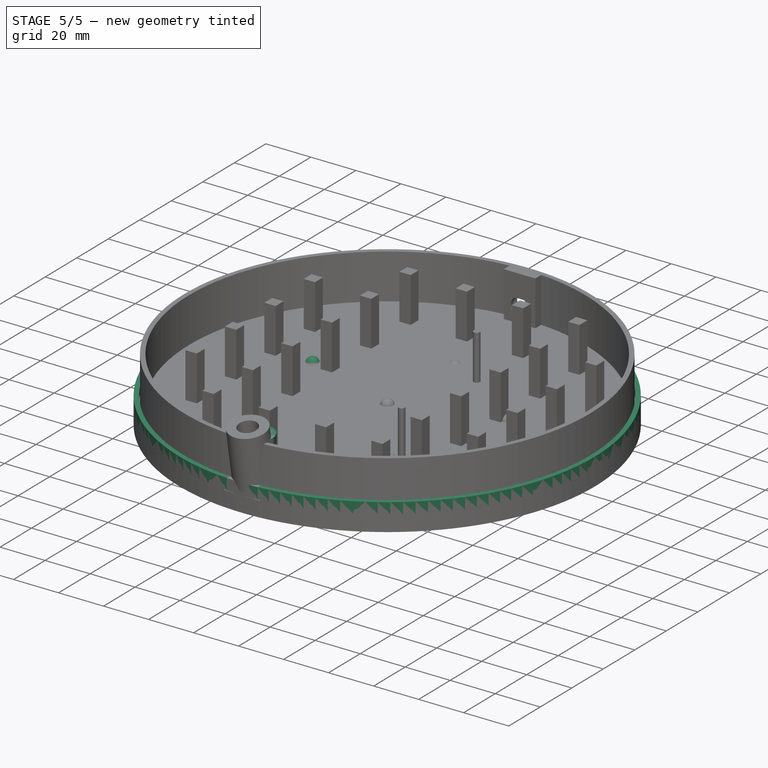
[diagram: stage 5 of 5 — iso view after this stage's code; geometry added in this stage tinted green]
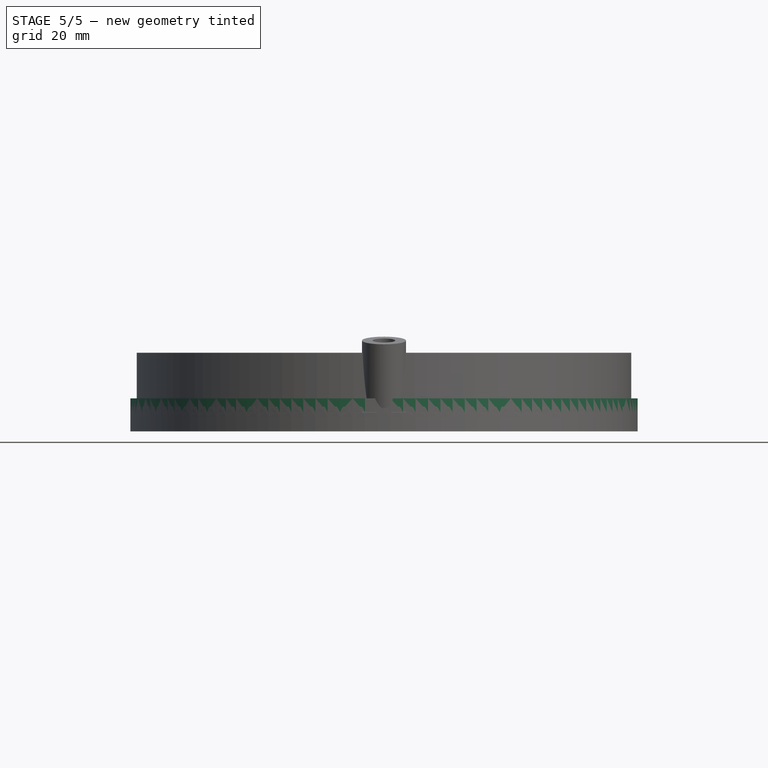
[diagram: stage 5 of 5 — front view after this stage's code; geometry added in this stage tinted green]
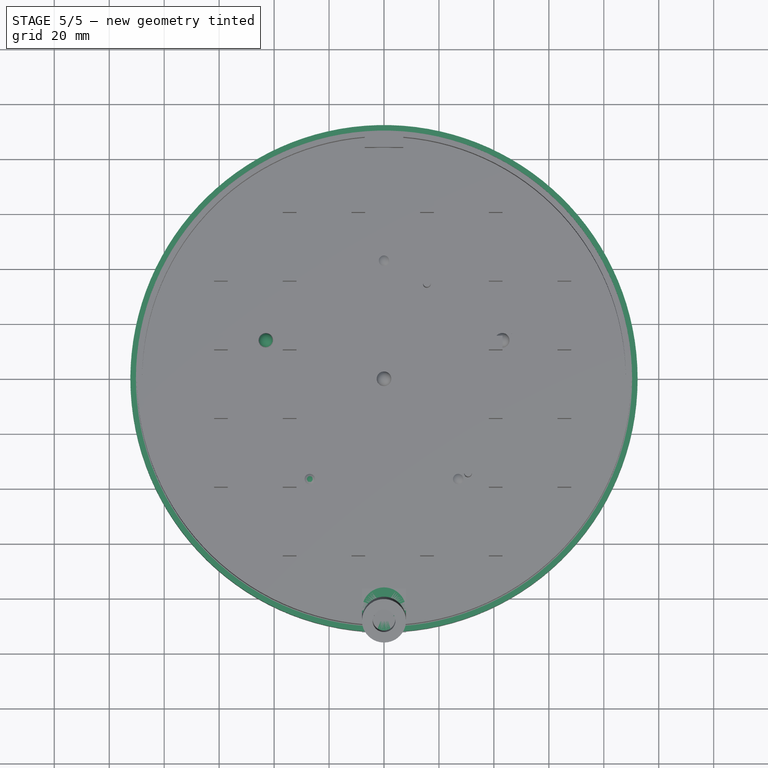
[diagram: stage 5 of 5 — top view after this stage's code; geometry added in this stage tinted green]
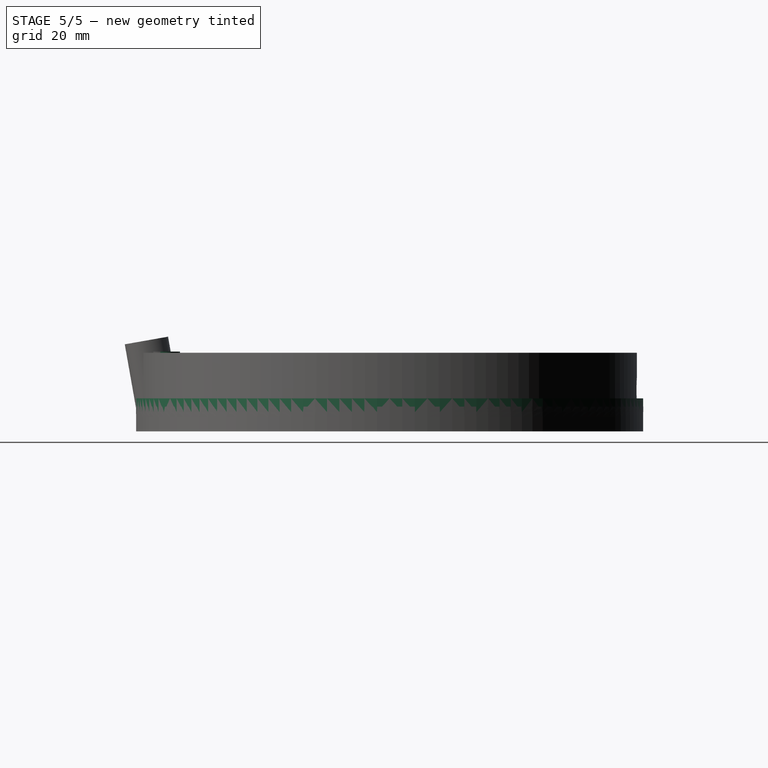
[diagram: stage 5 of 5 — right view after this stage's code; geometry added in this stage tinted green]
FEATURE [Sketcher::SketchObject] Sketch009
  FullyConstrained = false
  MapMode = 5
  Support = -> [XY_Plane004]
  sketch-geometry (1):
    g0: Circle CenterX=0 CenterY=0 CenterZ=0 NormalX=0 NormalY=0 NormalZ=1 AngleXU=0 Radius=92.3
  constraints (1):
    c: Radius(g0) = 92.3
FEATURE [PartDesign::Pad] Pad008
  Direction = (0,0,1)
  Length = 2
  Length2 = 10
  Profile = -> Sketch009
  ReferenceAxis = -> Sketch009 [N_Axis]
  Type = 0
FEATURE [Sketcher::SketchObject] Sketch010
  ExternalGeometry = -> [Pad008]
  FullyConstrained = true
  MapMode = 5
  Placement = pos=(0,0,0) rot=(1,0,0;3.14159rad)
  Support = -> [Pad008]
  sketch-geometry (2):
    g0: Circle CenterX=0 CenterY=0 CenterZ=0 NormalX=0 NormalY=0 NormalZ=1 AngleXU=0 Radius=92.3
    g1: Circle CenterX=0 CenterY=0 CenterZ=0 NormalX=0 NormalY=0 NormalZ=1 AngleXU=0 Radius=90.3
  constraints (4):
    c: Coincident(g0,g-3)
    c: Equal(g0,g-3)
    c: Coincident(g1,g0)
    c: Radius(g1) = 90.3
FEATURE [PartDesign::Pad] Pad009
  BaseFeature = -> Pad008
  Direction = (0,0,-1)
  Length = 0.001
  Length2 = 10
  Profile = -> Sketch010
  ReferenceAxis = -> Sketch010 [N_Axis]
  Type = 0
FEATURE [Sketcher::SketchObject] Sketch011
  ExternalGeometry = -> [Pad009]
  FullyConstrained = true
  MapMode = 5
  Placement = pos=(0,0,2) rot=(0,0,1;0rad)
  Support = -> [Pad009]
  sketch-geometry (2):
    g0: Circle CenterX=0 CenterY=-84.3 CenterZ=0 NormalX=0 NormalY=0 NormalZ=1 AngleXU=0 Radius=4.05
    g1: Circle CenterX=0 CenterY=-84.3 CenterZ=0 NormalX=0 NormalY=0 NormalZ=1 AngleXU=0 Radius=8
  constraints (5):
    c: PointOnObject(g0,g-2)
    c: Diameter(g0) = 8.1
    c: Coincident(g1,g0)
    c: Diameter(g1) = 16
    c: Tangent(g1,g-3)
FEATURE [Sketcher::SketchObject] Sketch012
  AttachmentOffset = pos=(0,0,20) rot=(0,0,1;0rad)
  ExternalGeometry = -> [Sketch011]
  FullyConstrained = true
  MapMode = 5
  Placement = pos=(0,0,22) rot=(0,0,1;0rad)
  Support = -> [Pad009]
  sketch-geometry (2):
    g0: Circle CenterX=0 CenterY=-84.3 CenterZ=0 NormalX=0 NormalY=0 NormalZ=1 AngleXU=0 Radius=4.2
    g1: Circle CenterX=0 CenterY=-84.3 CenterZ=0 NormalX=0 NormalY=0 NormalZ=1 AngleXU=0 Radius=8
  constraints (4):
    c: Coincident(g0,g-3)
    c: Coincident(g1,g0)
    c: Equal(g-3,g1)
    c: Diameter(g0) = 8.4
FEATURE [PartDesign::AdditiveLoft] AdditiveLoft
  BaseFeature = -> Pad009
  Closed = false
  Profile = -> Sketch011
  Ruled = false
  Sections = -> [Sketch012]
FEATURE [Sketcher::SketchObject] Sketch013
  ExternalGeometry = -> [Sketch011]
  FullyConstrained = true
  MapMode = 5
  Placement = pos=(0,0,0) rot=(1,0,0;3.14159rad)
  Support = -> [AdditiveLoft]
  sketch-geometry (1):
    g0: Circle CenterX=0 CenterY=84.3 CenterZ=0 NormalX=0 NormalY=0 NormalZ=1 AngleXU=0 Radius=4.05
  constraints (2):
    c: Coincident(g0,g-3)
    c: Equal(g0,g-3)
FEATURE [PartDesign::Pocket] Pocket002
  BaseFeature = -> AdditiveLoft
  Direction = (0,0,1)
  Length = 5
  Length2 = 5
  Profile = -> Sketch013
  ReferenceAxis = -> Sketch013 [N_Axis]
  Type = 0
FEATURE [PartDesign::Body] Body004  label="Top"
  Group = -> [Sketch009,Pad008,Sketch010,Pad009,Sketch011,Sketch012,AdditiveLoft,Sketch013,Pocket002]
  Origin = -> Origin004
  Placement = pos=(0,0,20) rot=(0,0,1;0rad)
  Tip = -> Pocket002
FEATURE [Sketcher::SketchObject] Sketch014
  FullyConstrained = true
  MapMode = 5
  Support = -> [XY_Plane005]
  sketch-geometry (2):
    g0: Circle CenterX=0 CenterY=0 CenterZ=0 NormalX=0 NormalY=0 NormalZ=1 AngleXU=0 Radius=92.3
    g1: Circle CenterX=0 CenterY=0 CenterZ=0 NormalX=0 NormalY=0 NormalZ=1 AngleXU=0 Radius=90.3
  constraints (4):
    c: Coincident(g0,g-1)
    c: Radius(g0) = 92.3
    c: Coincident(g1,g0)
    c: Radius(g1) = 90.3
FEATURE [PartDesign::Pad] Pad010
  Direction = (0,0,1)
  Length = 5
  Length2 = 10
  Profile = -> Sketch014
  ReferenceAxis = -> Sketch014 [N_Axis]
  Type = 0
FEATURE [Sketcher::SketchObject] Sketch022
  FullyConstrained = true
  MapMode = 5
  Placement = pos=(0,0,0) rot=(1,0,0;3.14159rad)
  Support = -> [Pocket003]
  sketch-geometry (12):
    g0: LineSegment StartX=0 StartY=-45 StartZ=0 EndX=42.7975 EndY=-13.9058 EndZ=0
    g1: LineSegment StartX=42.7975 StartY=-13.9058 StartZ=0 EndX=26.4503 EndY=36.4058 EndZ=0
    g2: LineSegment StartX=26.4503 StartY=36.4058 StartZ=0 EndX=-26.4503 EndY=36.4058 EndZ=0
    g3: LineSegment StartX=-26.4503 StartY=36.4058 StartZ=0 EndX=-42.7975 EndY=-13.9058 EndZ=0
    g4: LineSegment StartX=-42.7975 StartY=-13.9058 StartZ=0 EndX=0 EndY=-45 EndZ=0
    g5: Circle CenterX=0 CenterY=0 CenterZ=0 NormalX=0 NormalY=0 NormalZ=1 AngleXU=0 Radius=45
    g6: Circle CenterX=0 CenterY=0 CenterZ=0 NormalX=0 NormalY=0 NormalZ=1 AngleXU=0 Radius=4.5
    g7: Circle CenterX=26.4503 CenterY=36.4058 CenterZ=0 NormalX=0 NormalY=0 NormalZ=1 AngleXU=0 Radius=4.5
    g8: Circle CenterX=42.7975 CenterY=-13.9058 CenterZ=0 NormalX=0 NormalY=0 NormalZ=1 AngleXU=0 Radius=4.5
    g9: Circle CenterX=0 CenterY=-45 CenterZ=0 NormalX=0 NormalY=0 NormalZ=1 AngleXU=0 Radius=4.5
    g10: Circle CenterX=-42.7975 CenterY=-13.9058 CenterZ=0 NormalX=0 NormalY=0 NormalZ=1 AngleXU=0 Radius=4.5
    g11: Circle CenterX=-26.4503 CenterY=36.4058 CenterZ=0 NormalX=0 NormalY=0 NormalZ=1 AngleXU=0 Radius=4.5
  constraints (26):
    c: Coincident(g0,g1)
    c: Coincident(g1,g2)
    c: Coincident(g2,g3)
    c: Coincident(g3,g4)
    c: Coincident(g4,g0)
    c: Equal(g0, g1-g4) x4
    c: PointOnObject(g0,g5)
    c: PointOnObject(g1,g5)
    c: PointOnObject(g2,g5)
    c: PointOnObject(g3,g5)
    c: PointOnObject(g4,g5)
    c: Coincident(g5,g-1)
    c: PointOnObject(g4,g-2)
    c: DistanceY(g0,g5) = 45
    c: Coincident(g6,g5)
    c: Coincident(g7,g1)
    c: Coincident(g8,g0)
    c: Coincident(g9,g0)
    c: Coincident(g10,g3)
    c: Coincident(g11,g2)
    c: Equal(g6,g11)
    c: Equal(g11,g10)
    c: Equal(g10,g9)
    c: Equal(g9,g8)
    c: Equal(g8,g7)
    c: Diameter(g7) = 9
FEATURE [Sketcher::SketchObject] Sketch023
  FullyConstrained = true
  MapMode = 5
  Support = -> [XY_Plane010]
  sketch-geometry (7):
    g0: LineSegment StartX=-3.65 StartY=1.75 StartZ=0 EndX=-3.65 EndY=-1.75 EndZ=0
    g1: LineSegment StartX=3.65 StartY=1.75 StartZ=0 EndX=3.65 EndY=-1.75 EndZ=0
    g2: ArcOfCircle CenterX=0 CenterY=-0.0855556 CenterZ=0 NormalX=0 NormalY=0 NormalZ=1 AngleXU=0 Radius=4.08556 StartAngle=0.465958 EndAngle=2.67563
    g3: ArcOfCircle CenterX=0 CenterY=0.0855556 CenterZ=0 NormalX=0 NormalY=0 NormalZ=1 AngleXU=0 Radius=4.08556 StartAngle=3.60755 EndAngle=5.81723
    g4: LineSegment StartX=-3.65 StartY=1.75 StartZ=0 EndX=3.65 EndY=1.75 EndZ=0
    g5: GeomPoint X=0 Y=4 Z=0
    g6: GeomPoint X=0 Y=-4 Z=0
  constraints (18):
    c: Vertical(g0)
    c: PointOnObject(g2,g-2)
    c: Coincident(g2,g0)
    c: Coincident(g2,g1)
    c: Coincident(g3,g0)
    c: Coincident(g3,g1)
    c: Equal(g0,g1)
    c: DistanceX(g0,g1) = 7.3
    c: Coincident(g4,g0)
    c: Coincident(g4,g1)
    c: PointOnObject(g5,g-2)
    c: PointOnObject(g6,g-2)
    c: PointOnObject(g5,g2)
    c: PointOnObject(g6,g3)
    c: DistanceY(g6,g5) = 8
    c: Symmetric(g2,g3,g-1)
    c: Symmetric(g1,g1,g-1)
    c: DistanceY(g1,g1) = 3.5
FEATURE [PartDesign::Pad] Pad014
  Direction = (1,1,1)
  Length = 2.4
  Length2 = 100
  Profile = -> Sketch023
  Type = 0
FEATURE [PartDesign::Body] Body010
  Group = -> [Sketch023,Pad014]
  Origin = -> Origin010
  Tip = -> Pad014
FEATURE [PartDesign::ShapeBinder] ShapeBinder003
  Placement = pos=(0,0,2.4) rot=(0,0,1;0rad)
  Support = -> [Pad014]
  TraceSupport = false
FEATURE [Sketcher::SketchObject] Sketch024
  FullyConstrained = true
  MapMode = 5
  Placement = pos=(0,0,2.4) rot=(0,0,1;0rad)
  Support = -> [ShapeBinder003]
  sketch-geometry (3):
    g0: ArcOfCircle CenterX=0 CenterY=0 CenterZ=0 NormalX=0 NormalY=0 NormalZ=1 AngleXU=0 Radius=2.75 StartAngle=3.14159 EndAngle=6.28319
    g1: LineSegment StartX=-2.75 StartY=3e-16 StartZ=0 EndX=2.75 EndY=-7e-16 EndZ=0
    g2: LineSegment StartX=-2.75 StartY=3e-16 StartZ=0 EndX=2.75 EndY=-7e-16 EndZ=0
  constraints (8):
    c: Coincident(g0,g-1)
    c: PointOnObject(g0,g-1)
    c: PointOnObject(g0,g-1)
    c: Coincident(g1,g0)
    c: Coincident(g1,g0)
    c: Coincident(g2,g0)
    c: Coincident(g2,g0)
    c: DistanceX(g0,g0) = 5.5
FEATURE [PartDesign::Revolution] Revolution001
  Angle = 180
  Axis = (5.5,-1e-15,0)
  Base = (-2.75,3e-16,2.4)
  Placement = pos=(0,0,2.4) rot=(0,0,1;0rad)
  Profile = -> Sketch024
  ReferenceAxis = -> Sketch024 [Axis0]
  Reversed = true
FEATURE [PartDesign::Body] Body011  label="light001"
  Group = -> [ShapeBinder003,Sketch024,Revolution001]
  Origin = -> Origin011
  Tip = -> Revolution001
FEATURE [PartDesign::ShapeBinder] ShapeBinder004
  Support = -> [Pad014]
  TraceSupport = false
FEATURE [Sketcher::SketchObject] Sketch025
  ExternalGeometry = -> [ShapeBinder004]
  FullyConstrained = true
  MapMode = 5
  Placement = pos=(0,0,0) rot=(1,0,0;3.14159rad)
  Support = -> [ShapeBinder004]
  sketch-geometry (28):
    g0: LineSegment StartX=3.65 StartY=1.5 StartZ=0 EndX=6.65 EndY=1.5 EndZ=0
    g1: LineSegment StartX=6.65 StartY=1.5 StartZ=0 EndX=6.65 EndY=2 EndZ=0
    g2: LineSegment StartX=6.65 StartY=2 StartZ=0 EndX=8.65 EndY=2 EndZ=0
    g3: LineSegment StartX=8.65 StartY=2 StartZ=0 EndX=8.65 EndY=0.2 EndZ=0
    g4: LineSegment StartX=8.65 StartY=0.2 StartZ=0 EndX=6.65 EndY=0.2 EndZ=0
    g5: LineSegment StartX=6.65 StartY=0.2 StartZ=0 EndX=6.65 EndY=0.7 EndZ=0
    g6: LineSegment StartX=6.65 StartY=0.7 StartZ=0 EndX=4.45 EndY=0.7 EndZ=0
    g7: LineSegment StartX=4.45 StartY=0.7 StartZ=0 EndX=4.45 EndY=-0.2 EndZ=0
    g8: ArcOfCircle CenterX=4.45 CenterY=-0.85 CenterZ=0 NormalX=0 NormalY=0 NormalZ=1 AngleXU=0 Radius=0.65 StartAngle=1.5708 EndAngle=4.71239
    g9: LineSegment StartX=4.45 StartY=-1.5 StartZ=0 EndX=-6.65 EndY=-1.5 EndZ=0
    g10: LineSegment StartX=-6.65 StartY=-1.5 StartZ=0 EndX=-6.65 EndY=-1.85 EndZ=0
    g11: LineSegment StartX=-6.65 StartY=-1.85 StartZ=0 EndX=-8.65 EndY=-1.85 EndZ=0
    g12: LineSegment StartX=-8.65 StartY=-1.85 StartZ=0 EndX=-8.65 EndY=-0.25 EndZ=0
    g13: LineSegment StartX=-8.65 StartY=-0.25 StartZ=0 EndX=-6.65 EndY=-0.25 EndZ=0
    g14: LineSegment StartX=-6.65 StartY=-0.25 StartZ=0 EndX=-6.65 EndY=-0.6 EndZ=0
    g15: LineSegment StartX=-6.65 StartY=-0.6 StartZ=0 EndX=-4.95 EndY=-0.6 EndZ=0
    g16: LineSegment StartX=-4.95 StartY=-0.6 StartZ=0 EndX=-4.95 EndY=1.5 EndZ=0
    g17: LineSegment StartX=-4.95 StartY=1.5 StartZ=0 EndX=3.65 EndY=1.5 EndZ=0
    g18: LineSegment StartX=6.65 StartY=1.5 StartZ=0 EndX=6.65 EndY=0.7 EndZ=0
    g19: GeomPoint X=3.65 Y=-1.5 Z=0
    g20: LineSegment StartX=3.65 StartY=1.5 StartZ=0 EndX=3.65 EndY=1.75 EndZ=0
    g21: LineSegment StartX=3.65 StartY=-1.5 StartZ=0 EndX=3.65 EndY=-1.75 EndZ=0
    g22: LineSegment StartX=4.45 StartY=-0.2 StartZ=0 EndX=4.45 EndY=-0.85 EndZ=0
    g23: LineSegment StartX=4.45 StartY=-0.85 StartZ=0 EndX=4.45 EndY=-1.5 EndZ=0
    g24: LineSegment StartX=4.45 StartY=-0.2 StartZ=0 EndX=4.45 EndY=-1.5 EndZ=0
    g25: GeomPoint X=3.8 Y=-0.85 Z=0
    g26: LineSegment StartX=4.45 StartY=-0.85 StartZ=0 EndX=3.65 EndY=-0.85 EndZ=0
    g27: LineSegment StartX=-6.65 StartY=-0.6 StartZ=0 EndX=-6.65 EndY=-1.5 EndZ=0
  constraints (76):
    c: PointOnObject(g0,g-3)
    c: Horizontal(g0)
    c: Coincident(g0,g1)
    c: Vertical(g1)
    c: Coincident(g1,g2)
    c: Horizontal(g2)
    c: Coincident(g2,g3)
    c: Vertical(g3)
    c: Coincident(g3,g4)
    c: Coincident(g4,g5)
    c: Vertical(g5)
    c: Coincident(g5,g6)
    c: Horizontal(g6)
    c: Coincident(g6,g7)
    c: Vertical(g7)
    c: Coincident(g8,g7)
    c: Coincident(g8,g9)
    c: Coincident(g9,g10)
    c: Coincident(g10,g11)
    c: Horizontal(g11)
    c: Coincident(g11,g12)
    c: Vertical(g12)
    c: Coincident(g12,g13)
    c: Horizontal(g13)
    c: Coincident(g13,g14)
    c: Vertical(g14)
    c: Coincident(g14,g15)
    c: Horizontal(g15)
    c: Coincident(g15,g16)
    c: Vertical(g16)
    c: Coincident(g16,g17)
    c: Coincident(g17,g0)
    c: Horizontal(g17)
    c: DistanceX(g0,g2) = 5
    c: DistanceX(g2,g2) = 2
    c: Coincident(g18,g0)
    c: Coincident(g18,g5)
    c: Vertical(g18)
    c: Horizontal(g4)
    c: DistanceY(g3,g3) = 1.8
    c: DistanceY(g5,g0) = 0.8
    c: Equal(g1,g5)
    c: DistanceY(g8,g0) = 3
    c: Horizontal(g9)
    c: PointOnObject(g19,g9)
    c: PointOnObject(g19,g-3)
    c: Coincident(g20,g0)
    c: Coincident(g20,g-3)
    c: Coincident(g21,g19)
    c: Coincident(g21,g-3)
    c: Equal(g20,g21)
    c: DistanceY(g7,g0) = 1.7
    c: Coincident(g22,g7)
    c: Coincident(g22,g8)
    c: Coincident(g23,g8)
    c: Coincident(g23,g8)
    c: Coincident(g24,g7)
    c: Coincident(g24,g8)
    c: Vertical(g24)
    c: DistanceX(g0,g6) = 0.8
    c: PointOnObject(g25,g8)
    c: Coincident(g26,g8)
    c: PointOnObject(g26,g-3)
    c: Horizontal(g26)
    c: PointOnObject(g25,g26)
    c: PointOnObject(g8,g24)
    c: DistanceX(g11,g-4) = 5
    c: DistanceX(g11,g11) = 2
    c: Vertical(g10)
    c: Coincident(g27,g14)
    c: Coincident(g27,g9)
    c: Vertical(g27)
    c: Equal(g14,g10)
    c: DistanceY(g12,g12) = 1.6
    c: DistanceY(g27,g27) = 0.9
    c: DistanceX(g15,g-4) = 1.3
FEATURE [PartDesign::Pad] Pad015
  Direction = (1,1,1)
  Length = 0.4
  Length2 = 100
  Profile = -> Sketch025
  Reversed = true
  Type = 0
FEATURE [PartDesign::Body] Body012
  Group = -> [ShapeBinder004,Sketch025,Pad015]
  Origin = -> Origin012
  Placement = pos=(0,0,1.4) rot=(1,0,0;3.14159rad)
  Tip = -> Pad015
FEATURE [Part::MultiFuse] Fusion002  label="Led2"
  Placement = pos=(-43,14,-1.5) rot=(0,0,1;2.0944rad)
  Shapes = -> [Body010,Body011,Body012]
FEATURE [PartDesign::Body] Body013
  Group = -> [Sketch026,Pad016]
  Origin = -> Origin013
  Tip = -> Pad016
FEATURE [PartDesign::ShapeBinder] ShapeBinder005
  Placement = pos=(0,0,2.4) rot=(0,0,1;0rad)
  Support = -> [Pad016]
  TraceSupport = false
FEATURE [Sketcher::SketchObject] Sketch027
  FullyConstrained = true
  MapMode = 5
  Placement = pos=(0,0,2.4) rot=(0,0,1;0rad)
  Support = -> [ShapeBinder005]
  sketch-geometry (3):
    g0: ArcOfCircle CenterX=0 CenterY=0 CenterZ=0 NormalX=0 NormalY=0 NormalZ=1 AngleXU=0 Radius=2.75 StartAngle=3.14159 EndAngle=6.28319
    g1: LineSegment StartX=-2.75 StartY=3e-16 StartZ=0 EndX=2.75 EndY=-7e-16 EndZ=0
    g2: LineSegment StartX=-2.75 StartY=3e-16 StartZ=0 EndX=2.75 EndY=-7e-16 EndZ=0
  constraints (8):
    c: Coincident(g0,g-1)
    c: PointOnObject(g0,g-1)
    c: PointOnObject(g0,g-1)
    c: Coincident(g1,g0)
    c: Coincident(g1,g0)
    c: Coincident(g2,g0)
    c: Coincident(g2,g0)
    c: DistanceX(g0,g0) = 5.5
FEATURE [PartDesign::Revolution] Revolution002
  Angle = 180
  Axis = (5.5,-1e-15,0)
  Base = (-2.75,3e-16,2.4)
  Placement = pos=(0,0,2.4) rot=(0,0,1;0rad)
  Profile = -> Sketch027
  ReferenceAxis = -> Sketch027 [Axis0]
  Reversed = true
FEATURE [PartDesign::Body] Body015
  Group = -> [ShapeBinder006,Sketch028,Pad017]
  Origin = -> Origin015
  Placement = pos=(0,0,1.4) rot=(1,0,0;3.14159rad)
  Tip = -> Pad017
FEATURE [Part::MultiFuse] Fusion003  label="Led3"
  Placement = pos=(-27,-36.5,-2.8) rot=(0,0,1;2.44346rad)
  Shapes = -> [Body013,Body014,Body015]
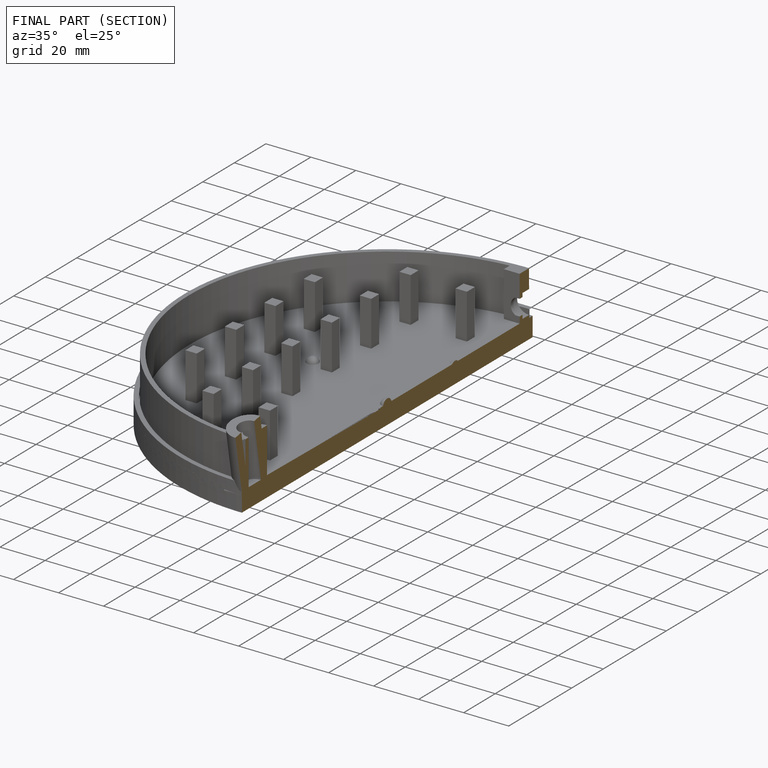
[diagram: finished part — half-section view (interior)]
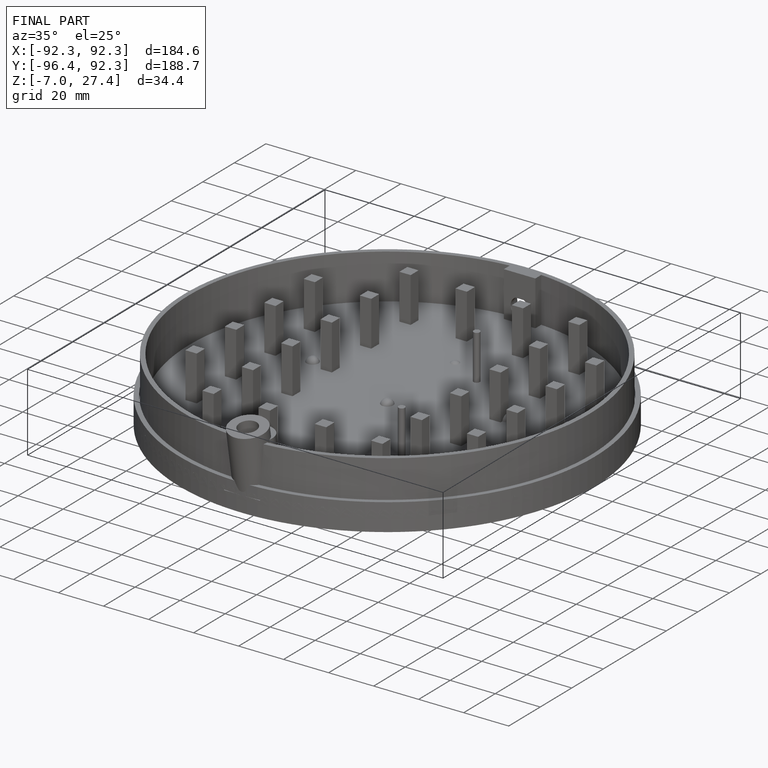
[diagram: finished part — iso view with bounding-box wireframe]
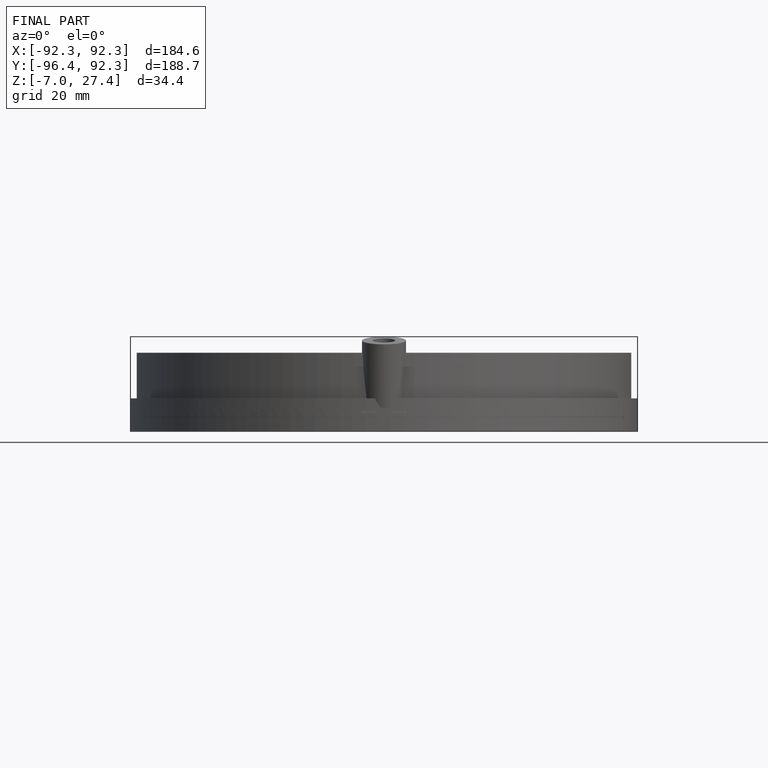
[diagram: finished part — front view with bounding-box wireframe]
